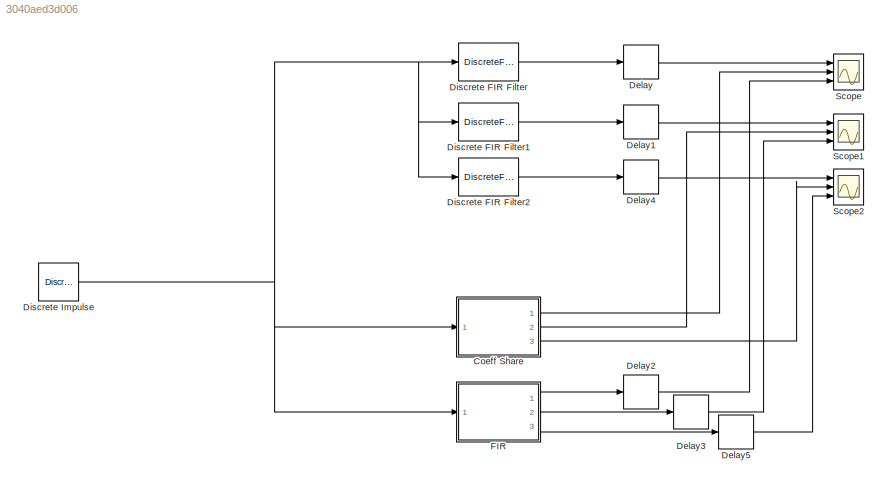
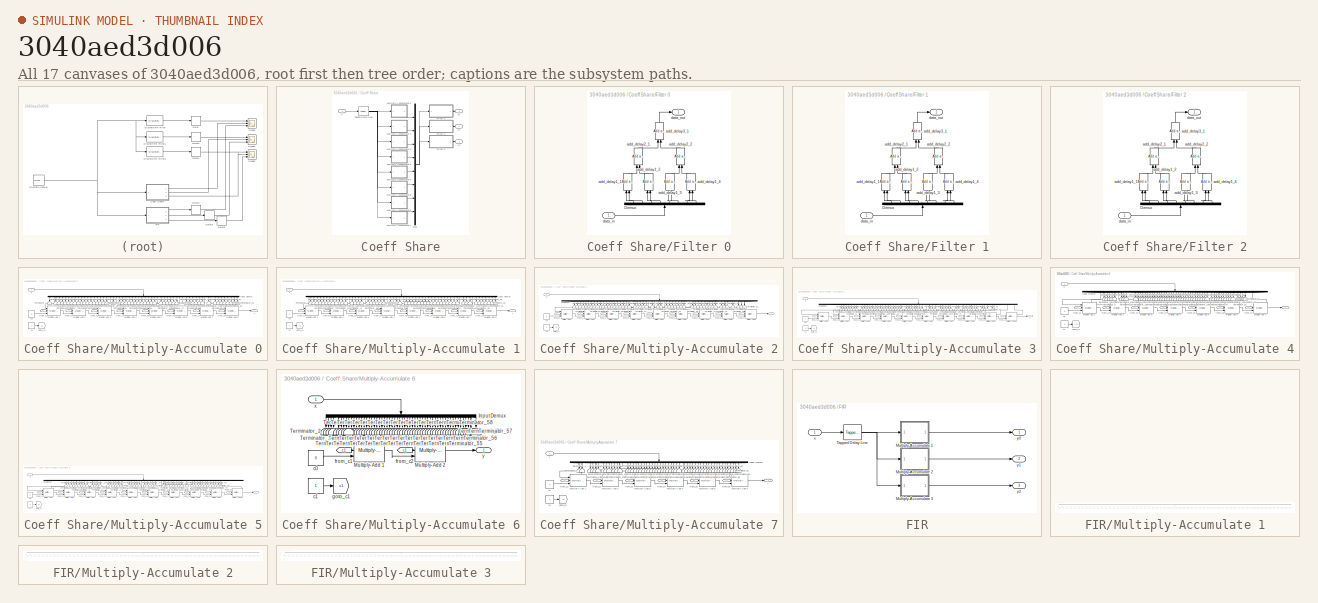
[diagram: thumbnail index - all 17 canvases of the model, root first then tree order]
MODEL slx_3040aed3d006
KIND model
CONFIG AbsTol = auto
CONFIG EnableMultiTasking = off
CONFIG FixedStep = auto
CONFIG MaxStep = auto
CONFIG MinStep = auto
CONFIG RelTol = 1e-3
CONFIG SampleTimeConstraint = Unconstrained
CONFIG Solver = FixedStepDiscrete
CONFIG SolverName = FixedStepDiscrete
CONFIG StartTime = 0.0
CONFIG StopTime = 100
BLOCK [SubSystem] Coeff Share
  Ports = [1, 3]
  RequestExecContextInheritance = off
BLOCK [SubSystem] Coeff Share/Filter 0
  Ports = [1, 1]
  RequestExecContextInheritance = off
BLOCK [Demux] Coeff Share/Filter 0/Demux
  DisplayOption = bar
  Outputs = 8
  Ports = [1, 8]
BLOCK [Reference] Coeff Share/Filter 0/add_delay1_1  REF=filter_library/Add and Delay  (lib defined in slx_7e4a8794f713)
  Ports = [2, 1]
  SourceBlock = filter_library/Add and Delay
  SourceProductName = Filter Library
BLOCK [Reference] Coeff Share/Filter 0/add_delay1_2  REF=filter_library/Add and Delay  (lib defined in slx_7e4a8794f713)
  Ports = [2, 1]
  SourceBlock = filter_library/Add and Delay
  SourceProductName = Filter Library
BLOCK [Reference] Coeff Share/Filter 0/add_delay1_3  REF=filter_library/Add and Delay  (lib defined in slx_7e4a8794f713)
  Ports = [2, 1]
  SourceBlock = filter_library/Add and Delay
  SourceProductName = Filter Library
BLOCK [Reference] Coeff Share/Filter 0/add_delay1_4  REF=filter_library/Add and Delay  (lib defined in slx_7e4a8794f713)
  Ports = [2, 1]
  SourceBlock = filter_library/Add and Delay
  SourceProductName = Filter Library
BLOCK [Reference] Coeff Share/Filter 0/add_delay2_1  REF=filter_library/Add and Delay  (lib defined in slx_7e4a8794f713)
  Ports = [2, 1]
  SourceBlock = filter_library/Add and Delay
  SourceProductName = Filter Library
BLOCK [Reference] Coeff Share/Filter 0/add_delay2_2  REF=filter_library/Add and Delay  (lib defined in slx_7e4a8794f713)
  Ports = [2, 1]
  SourceBlock = filter_library/Add and Delay
  SourceProductName = Filter Library
BLOCK [Reference] Coeff Share/Filter 0/add_delay3_1  REF=filter_library/Add and Delay  (lib defined in slx_7e4a8794f713)
  Ports = [2, 1]
  SourceBlock = filter_library/Add and Delay
  SourceProductName = Filter Library
BLOCK [Inport] Coeff Share/Filter 0/data_in
  IconDisplay = Port number
BLOCK [Outport] Coeff Share/Filter 0/data_out
  IconDisplay = Port number
BLOCK [SubSystem] Coeff Share/Filter 1
  Ports = [1, 1]
  RequestExecContextInheritance = off
BLOCK [Demux] Coeff Share/Filter 1/Demux
  DisplayOption = bar
  Outputs = 8
  Ports = [1, 8]
BLOCK [Reference] Coeff Share/Filter 1/add_delay1_1  REF=filter_library/Add and Delay  (lib defined in slx_7e4a8794f713)
  Ports = [2, 1]
  SourceBlock = filter_library/Add and Delay
  SourceProductName = Filter Library
BLOCK [Reference] Coeff Share/Filter 1/add_delay1_2  REF=filter_library/Add and Delay  (lib defined in slx_7e4a8794f713)
  Ports = [2, 1]
  SourceBlock = filter_library/Add and Delay
  SourceProductName = Filter Library
BLOCK [Reference] Coeff Share/Filter 1/add_delay1_3  REF=filter_library/Add and Delay  (lib defined in slx_7e4a8794f713)
  Ports = [2, 1]
  SourceBlock = filter_library/Add and Delay
  SourceProductName = Filter Library
BLOCK [Reference] Coeff Share/Filter 1/add_delay1_4  REF=filter_library/Add and Delay  (lib defined in slx_7e4a8794f713)
  Ports = [2, 1]
  SourceBlock = filter_library/Add and Delay
  SourceProductName = Filter Library
BLOCK [Reference] Coeff Share/Filter 1/add_delay2_1  REF=filter_library/Add and Delay  (lib defined in slx_7e4a8794f713)
  Ports = [2, 1]
  SourceBlock = filter_library/Add and Delay
  SourceProductName = Filter Library
BLOCK [Reference] Coeff Share/Filter 1/add_delay2_2  REF=filter_library/Add and Delay  (lib defined in slx_7e4a8794f713)
  Ports = [2, 1]
  SourceBlock = filter_library/Add and Delay
  SourceProductName = Filter Library
BLOCK [Reference] Coeff Share/Filter 1/add_delay3_1  REF=filter_library/Add and Delay  (lib defined in slx_7e4a8794f713)
  Ports = [2, 1]
  SourceBlock = filter_library/Add and Delay
  SourceProductName = Filter Library
BLOCK [Inport] Coeff Share/Filter 1/data_in
  IconDisplay = Port number
BLOCK [Outport] Coeff Share/Filter 1/data_out
  IconDisplay = Port number
BLOCK [SubSystem] Coeff Share/Filter 2
  Ports = [1, 1]
  RequestExecContextInheritance = off
BLOCK [Demux] Coeff Share/Filter 2/Demux
  DisplayOption = bar
  Outputs = 8
  Ports = [1, 8]
BLOCK [Reference] Coeff Share/Filter 2/add_delay1_1  REF=filter_library/Add and Delay  (lib defined in slx_7e4a8794f713)
  Ports = [2, 1]
  SourceBlock = filter_library/Add and Delay
  SourceProductName = Filter Library
BLOCK [Reference] Coeff Share/Filter 2/add_delay1_2  REF=filter_library/Add and Delay  (lib defined in slx_7e4a8794f713)
  Ports = [2, 1]
  SourceBlock = filter_library/Add and Delay
  SourceProductName = Filter Library
BLOCK [Reference] Coeff Share/Filter 2/add_delay1_3  REF=filter_library/Add and Delay  (lib defined in slx_7e4a8794f713)
  Ports = [2, 1]
  SourceBlock = filter_library/Add and Delay
  SourceProductName = Filter Library
BLOCK [Reference] Coeff Share/Filter 2/add_delay1_4  REF=filter_library/Add and Delay  (lib defined in slx_7e4a8794f713)
  Ports = [2, 1]
  SourceBlock = filter_library/Add and Delay
  SourceProductName = Filter Library
BLOCK [Reference] Coeff Share/Filter 2/add_delay2_1  REF=filter_library/Add and Delay  (lib defined in slx_7e4a8794f713)
  Ports = [2, 1]
  SourceBlock = filter_library/Add and Delay
  SourceProductName = Filter Library
BLOCK [Reference] Coeff Share/Filter 2/add_delay2_2  REF=filter_library/Add and Delay  (lib defined in slx_7e4a8794f713)
  Ports = [2, 1]
  SourceBlock = filter_library/Add and Delay
  SourceProductName = Filter Library
BLOCK [Reference] Coeff Share/Filter 2/add_delay3_1  REF=filter_library/Add and Delay  (lib defined in slx_7e4a8794f713)
  Ports = [2, 1]
  SourceBlock = filter_library/Add and Delay
  SourceProductName = Filter Library
BLOCK [Inport] Coeff Share/Filter 2/data_in
  IconDisplay = Port number
BLOCK [Outport] Coeff Share/Filter 2/data_out
  IconDisplay = Port number
BLOCK [SubSystem] Coeff Share/Multiply-Accumulate 0
  Ports = [1, 1]
  RequestExecContextInheritance = off
BLOCK [Demux] Coeff Share/Multiply-Accumulate 0/Input Demux
  DisplayOption = bar
  Outputs = 60
  Ports = [1, 60]
BLOCK [Reference] Coeff Share/Multiply-Accumulate 0/Multiply-Add 1  REF=filter_library/Multiply-Add  (lib defined in slx_7e4a8794f713)
  Ports = [3, 1]
  SourceBlock = filter_library/Multiply-Add
  SourceProductName = Filter Library
BLOCK [Reference] Coeff Share/Multiply-Accumulate 0/Multiply-Add 2  REF=filter_library/Multiply-Add  (lib defined in slx_7e4a8794f713)
  Ports = [3, 1]
  SourceBlock = filter_library/Multiply-Add
  SourceProductName = Filter Library
BLOCK [Reference] Coeff Share/Multiply-Accumulate 0/Multiply-Add 3  REF=filter_library/Multiply-Add  (lib defined in slx_7e4a8794f713)
  Ports = [3, 1]
  SourceBlock = filter_library/Multiply-Add
  SourceProductName = Filter Library
BLOCK [Reference] Coeff Share/Multiply-Accumulate 0/Multiply-Add 4  REF=filter_library/Multiply-Add  (lib defined in slx_7e4a8794f713)
  Ports = [3, 1]
  SourceBlock = filter_library/Multiply-Add
  SourceProductName = Filter Library
BLOCK [Reference] Coeff Share/Multiply-Accumulate 0/Multiply-Add 5  REF=filter_library/Multiply-Add  (lib defined in slx_7e4a8794f713)
  Ports = [3, 1]
  SourceBlock = filter_library/Multiply-Add
  SourceProductName = Filter Library
BLOCK [Reference] Coeff Share/Multiply-Accumulate 0/Multiply-Add 6  REF=filter_library/Multiply-Add  (lib defined in slx_7e4a8794f713)
  Ports = [3, 1]
  SourceBlock = filter_library/Multiply-Add
  SourceProductName = Filter Library
BLOCK [Reference] Coeff Share/Multiply-Accumulate 0/Multiply-Add 7  REF=filter_library/Multiply-Add  (lib defined in slx_7e4a8794f713)
  Ports = [3, 1]
  SourceBlock = filter_library/Multiply-Add
  SourceProductName = Filter Library
BLOCK [Reference] Coeff Share/Multiply-Accumulate 0/Multiply-Add 8  REF=filter_library/Multiply-Add  (lib defined in slx_7e4a8794f713)
  Ports = [3, 1]
  SourceBlock = filter_library/Multiply-Add
  SourceProductName = Filter Library
BLOCK [Terminator] Coeff Share/Multiply-Accumulate 0/Terminator_1
BLOCK [Terminator] Coeff Share/Multiply-Accumulate 0/Terminator_10
BLOCK [Terminator] Coeff Share/Multiply-Accumulate 0/Terminator_11
BLOCK [Terminator] Coeff Share/Multiply-Accumulate 0/Terminator_12
BLOCK [Terminator] Coeff Share/Multiply-Accumulate 0/Terminator_13
BLOCK [Terminator] Coeff Share/Multiply-Accumulate 0/Terminator_14
BLOCK [Terminator] Coeff Share/Multiply-Accumulate 0/Terminator_15
BLOCK [Terminator] Coeff Share/Multiply-Accumulate 0/Terminator_16
BLOCK [Terminator] Coeff Share/Multiply-Accumulate 0/Terminator_17
BLOCK [Terminator] Coeff Share/Multiply-Accumulate 0/Terminator_18
BLOCK [Terminator] Coeff Share/Multiply-Accumulate 0/Terminator_19
BLOCK [Terminator] Coeff Share/Multiply-Accumulate 0/Terminator_2
BLOCK [Terminator] Coeff Share/Multiply-Accumulate 0/Terminator_20
BLOCK [Terminator] Coeff Share/Multiply-Accumulate 0/Terminator_21
BLOCK [Terminator] Coeff Share/Multiply-Accumulate 0/Terminator_22
BLOCK [Terminator] Coeff Share/Multiply-Accumulate 0/Terminator_23
BLOCK [Terminator] Coeff Share/Multiply-Accumulate 0/Terminator_24
BLOCK [Terminator] Coeff Share/Multiply-Accumulate 0/Terminator_25
BLOCK [Terminator] Coeff Share/Multiply-Accumulate 0/Terminator_26
BLOCK [Terminator] Coeff Share/Multiply-Accumulate 0/Terminator_27
BLOCK [Terminator] Coeff Share/Multiply-Accumulate 0/Terminator_28
BLOCK [Terminator] Coeff Share/Multiply-Accumulate 0/Terminator_29
BLOCK [Terminator] Coeff Share/Multiply-Accumulate 0/Terminator_3
BLOCK [Terminator] Coeff Share/Multiply-Accumulate 0/Terminator_30
BLOCK [Terminator] Coeff Share/Multiply-Accumulate 0/Terminator_31
BLOCK [Terminator] Coeff Share/Multiply-Accumulate 0/Terminator_32
BLOCK [Terminator] Coeff Share/Multiply-Accumulate 0/Terminator_33
BLOCK [Terminator] Coeff Share/Multiply-Accumulate 0/Terminator_34
BLOCK [Terminator] Coeff Share/Multiply-Accumulate 0/Terminator_35
BLOCK [Terminator] Coeff Share/Multiply-Accumulate 0/Terminator_36
BLOCK [Terminator] Coeff Share/Multiply-Accumulate 0/Terminator_37
BLOCK [Terminator] Coeff Share/Multiply-Accumulate 0/Terminator_38
BLOCK [Terminator] Coeff Share/Multiply-Accumulate 0/Terminator_39
BLOCK [Terminator] Coeff Share/Multiply-Accumulate 0/Terminator_4
BLOCK [Terminator] Coeff Share/Multiply-Accumulate 0/Terminator_40
BLOCK [Terminator] Coeff Share/Multiply-Accumulate 0/Terminator_41
BLOCK [Terminator] Coeff Share/Multiply-Accumulate 0/Terminator_42
BLOCK [Terminator] Coeff Share/Multiply-Accumulate 0/Terminator_43
BLOCK [Terminator] Coeff Share/Multiply-Accumulate 0/Terminator_44
BLOCK [Terminator] Coeff Share/Multiply-Accumulate 0/Terminator_45
BLOCK [Terminator] Coeff Share/Multiply-Accumulate 0/Terminator_46
BLOCK [Terminator] Coeff Share/Multiply-Accumulate 0/Terminator_47
BLOCK [Terminator] Coeff Share/Multiply-Accumulate 0/Terminator_48
BLOCK [Terminator] Coeff Share/Multiply-Accumulate 0/Terminator_49
BLOCK [Terminator] Coeff Share/Multiply-Accumulate 0/Terminator_5
BLOCK [Terminator] Coeff Share/Multiply-Accumulate 0/Terminator_50
BLOCK [Terminator] Coeff Share/Multiply-Accumulate 0/Terminator_51
BLOCK [Terminator] Coeff Share/Multiply-Accumulate 0/Terminator_52
BLOCK [Terminator] Coeff Share/Multiply-Accumulate 0/Terminator_6
BLOCK [Terminator] Coeff Share/Multiply-Accumulate 0/Terminator_7
BLOCK [Terminator] Coeff Share/Multiply-Accumulate 0/Terminator_8
BLOCK [Terminator] Coeff Share/Multiply-Accumulate 0/Terminator_9
BLOCK [Constant] Coeff Share/Multiply-Accumulate 0/c0
  OutDataTypeStr = fixdt(1, 12, 7)
  SampleTime = 1
  Value = 0
BLOCK [Constant] Coeff Share/Multiply-Accumulate 0/c1
  OutDataTypeStr = fixdt(1, 12, 7)
  SampleTime = 1
  Value = -1
BLOCK [From] Coeff Share/Multiply-Accumulate 0/from_c1
  GotoTag = c1
BLOCK [From] Coeff Share/Multiply-Accumulate 0/from_c2
  GotoTag = c1
BLOCK [From] Coeff Share/Multiply-Accumulate 0/from_c3
  GotoTag = c1
BLOCK [From] Coeff Share/Multiply-Accumulate 0/from_c4
  GotoTag = c1
BLOCK [From] Coeff Share/Multiply-Accumulate 0/from_c5
  GotoTag = c1
BLOCK [From] Coeff Share/Multiply-Accumulate 0/from_c6
  GotoTag = c1
BLOCK [From] Coeff Share/Multiply-Accumulate 0/from_c7
  GotoTag = c1
BLOCK [From] Coeff Share/Multiply-Accumulate 0/from_c8
  GotoTag = c1
BLOCK [Goto] Coeff Share/Multiply-Accumulate 0/goto_c1
  GotoTag = c1
BLOCK [Inport] Coeff Share/Multiply-Accumulate 0/x
  IconDisplay = Port number
BLOCK [Outport] Coeff Share/Multiply-Accumulate 0/y
  IconDisplay = Port number
BLOCK [SubSystem] Coeff Share/Multiply-Accumulate 1
  Ports = [1, 1]
  RequestExecContextInheritance = off
BLOCK [Demux] Coeff Share/Multiply-Accumulate 1/Input Demux
  DisplayOption = bar
  Outputs = 60
  Ports = [1, 60]
BLOCK [Reference] Coeff Share/Multiply-Accumulate 1/Multiply-Add 1  REF=filter_library/Multiply-Add  (lib defined in slx_7e4a8794f713)
  Ports = [3, 1]
  SourceBlock = filter_library/Multiply-Add
  SourceProductName = Filter Library
BLOCK [Reference] Coeff Share/Multiply-Accumulate 1/Multiply-Add 2  REF=filter_library/Multiply-Add  (lib defined in slx_7e4a8794f713)
  Ports = [3, 1]
  SourceBlock = filter_library/Multiply-Add
  SourceProductName = Filter Library
BLOCK [Reference] Coeff Share/Multiply-Accumulate 1/Multiply-Add 3  REF=filter_library/Multiply-Add  (lib defined in slx_7e4a8794f713)
  Ports = [3, 1]
  SourceBlock = filter_library/Multiply-Add
  SourceProductName = Filter Library
BLOCK [Reference] Coeff Share/Multiply-Accumulate 1/Multiply-Add 4  REF=filter_library/Multiply-Add  (lib defined in slx_7e4a8794f713)
  Ports = [3, 1]
  SourceBlock = filter_library/Multiply-Add
  SourceProductName = Filter Library
BLOCK [Reference] Coeff Share/Multiply-Accumulate 1/Multiply-Add 5  REF=filter_library/Multiply-Add  (lib defined in slx_7e4a8794f713)
  Ports = [3, 1]
  SourceBlock = filter_library/Multiply-Add
  SourceProductName = Filter Library
BLOCK [Reference] Coeff Share/Multiply-Accumulate 1/Multiply-Add 6  REF=filter_library/Multiply-Add  (lib defined in slx_7e4a8794f713)
  Ports = [3, 1]
  SourceBlock = filter_library/Multiply-Add
  SourceProductName = Filter Library
BLOCK [Reference] Coeff Share/Multiply-Accumulate 1/Multiply-Add 7  REF=filter_library/Multiply-Add  (lib defined in slx_7e4a8794f713)
  Ports = [3, 1]
  SourceBlock = filter_library/Multiply-Add
  SourceProductName = Filter Library
BLOCK [Reference] Coeff Share/Multiply-Accumulate 1/Multiply-Add 8  REF=filter_library/Multiply-Add  (lib defined in slx_7e4a8794f713)
  Ports = [3, 1]
  SourceBlock = filter_library/Multiply-Add
  SourceProductName = Filter Library
BLOCK [Terminator] Coeff Share/Multiply-Accumulate 1/Terminator_1
BLOCK [Terminator] Coeff Share/Multiply-Accumulate 1/Terminator_10
BLOCK [Terminator] Coeff Share/Multiply-Accumulate 1/Terminator_11
BLOCK [Terminator] Coeff Share/Multiply-Accumulate 1/Terminator_12
BLOCK [Terminator] Coeff Share/Multiply-Accumulate 1/Terminator_13
BLOCK [Terminator] Coeff Share/Multiply-Accumulate 1/Terminator_14
BLOCK [Terminator] Coeff Share/Multiply-Accumulate 1/Terminator_15
BLOCK [Terminator] Coeff Share/Multiply-Accumulate 1/Terminator_16
BLOCK [Terminator] Coeff Share/Multiply-Accumulate 1/Terminator_17
BLOCK [Terminator] Coeff Share/Multiply-Accumulate 1/Terminator_18
BLOCK [Terminator] Coeff Share/Multiply-Accumulate 1/Terminator_19
BLOCK [Terminator] Coeff Share/Multiply-Accumulate 1/Terminator_2
BLOCK [Terminator] Coeff Share/Multiply-Accumulate 1/Terminator_20
BLOCK [Terminator] Coeff Share/Multiply-Accumulate 1/Terminator_21
BLOCK [Terminator] Coeff Share/Multiply-Accumulate 1/Terminator_22
BLOCK [Terminator] Coeff Share/Multiply-Accumulate 1/Terminator_23
BLOCK [Terminator] Coeff Share/Multiply-Accumulate 1/Terminator_24
BLOCK [Terminator] Coeff Share/Multiply-Accumulate 1/Terminator_25
BLOCK [Terminator] Coeff Share/Multiply-Accumulate 1/Terminator_26
BLOCK [Terminator] Coeff Share/Multiply-Accumulate 1/Terminator_27
BLOCK [Terminator] Coeff Share/Multiply-Accumulate 1/Terminator_28
BLOCK [Terminator] Coeff Share/Multiply-Accumulate 1/Terminator_29
BLOCK [Terminator] Coeff Share/Multiply-Accumulate 1/Terminator_3
BLOCK [Terminator] Coeff Share/Multiply-Accumulate 1/Terminator_30
BLOCK [Terminator] Coeff Share/Multiply-Accumulate 1/Terminator_31
BLOCK [Terminator] Coeff Share/Multiply-Accumulate 1/Terminator_32
BLOCK [Terminator] Coeff Share/Multiply-Accumulate 1/Terminator_33
BLOCK [Terminator] Coeff Share/Multiply-Accumulate 1/Terminator_34
BLOCK [Terminator] Coeff Share/Multiply-Accumulate 1/Terminator_35
BLOCK [Terminator] Coeff Share/Multiply-Accumulate 1/Terminator_36
BLOCK [Terminator] Coeff Share/Multiply-Accumulate 1/Terminator_37
BLOCK [Terminator] Coeff Share/Multiply-Accumulate 1/Terminator_38
BLOCK [Terminator] Coeff Share/Multiply-Accumulate 1/Terminator_39
BLOCK [Terminator] Coeff Share/Multiply-Accumulate 1/Terminator_4
BLOCK [Terminator] Coeff Share/Multiply-Accumulate 1/Terminator_40
BLOCK [Terminator] Coeff Share/Multiply-Accumulate 1/Terminator_41
BLOCK [Terminator] Coeff Share/Multiply-Accumulate 1/Terminator_42
BLOCK [Terminator] Coeff Share/Multiply-Accumulate 1/Terminator_43
BLOCK [Terminator] Coeff Share/Multiply-Accumulate 1/Terminator_44
BLOCK [Terminator] Coeff Share/Multiply-Accumulate 1/Terminator_45
BLOCK [Terminator] Coeff Share/Multiply-Accumulate 1/Terminator_46
BLOCK [Terminator] Coeff Share/Multiply-Accumulate 1/Terminator_47
BLOCK [Terminator] Coeff Share/Multiply-Accumulate 1/Terminator_48
BLOCK [Terminator] Coeff Share/Multiply-Accumulate 1/Terminator_49
BLOCK [Terminator] Coeff Share/Multiply-Accumulate 1/Terminator_5
BLOCK [Terminator] Coeff Share/Multiply-Accumulate 1/Terminator_50
BLOCK [Terminator] Coeff Share/Multiply-Accumulate 1/Terminator_51
BLOCK [Terminator] Coeff Share/Multiply-Accumulate 1/Terminator_52
BLOCK [Terminator] Coeff Share/Multiply-Accumulate 1/Terminator_6
BLOCK [Terminator] Coeff Share/Multiply-Accumulate 1/Terminator_7
BLOCK [Terminator] Coeff Share/Multiply-Accumulate 1/Terminator_8
BLOCK [Terminator] Coeff Share/Multiply-Accumulate 1/Terminator_9
BLOCK [Constant] Coeff Share/Multiply-Accumulate 1/c0
  OutDataTypeStr = fixdt(1, 12, 7)
  SampleTime = 1
  Value = 0
BLOCK [Constant] Coeff Share/Multiply-Accumulate 1/c1
  OutDataTypeStr = fixdt(1, 12, 7)
  SampleTime = 1
  Value = -1
BLOCK [From] Coeff Share/Multiply-Accumulate 1/from_c1
  GotoTag = c1
BLOCK [From] Coeff Share/Multiply-Accumulate 1/from_c2
  GotoTag = c1
BLOCK [From] Coeff Share/Multiply-Accumulate 1/from_c3
  GotoTag = c1
BLOCK [From] Coeff Share/Multiply-Accumulate 1/from_c4
  GotoTag = c1
BLOCK [From] Coeff Share/Multiply-Accumulate 1/from_c5
  GotoTag = c1
BLOCK [From] Coeff Share/Multiply-Accumulate 1/from_c6
  GotoTag = c1
BLOCK [From] Coeff Share/Multiply-Accumulate 1/from_c7
  GotoTag = c1
BLOCK [From] Coeff Share/Multiply-Accumulate 1/from_c8
  GotoTag = c1
BLOCK [Goto] Coeff Share/Multiply-Accumulate 1/goto_c1
  GotoTag = c1
BLOCK [Inport] Coeff Share/Multiply-Accumulate 1/x
  IconDisplay = Port number
BLOCK [Outport] Coeff Share/Multiply-Accumulate 1/y
  IconDisplay = Port number
BLOCK [SubSystem] Coeff Share/Multiply-Accumulate 2
  Ports = [1, 1]
  RequestExecContextInheritance = off
BLOCK [Demux] Coeff Share/Multiply-Accumulate 2/Input Demux
  DisplayOption = bar
  Outputs = 60
  Ports = [1, 60]
BLOCK [Reference] Coeff Share/Multiply-Accumulate 2/Multiply-Add 1  REF=filter_library/Multiply-Add  (lib defined in slx_7e4a8794f713)
  Ports = [3, 1]
  SourceBlock = filter_library/Multiply-Add
  SourceProductName = Filter Library
BLOCK [Reference] Coeff Share/Multiply-Accumulate 2/Multiply-Add 2  REF=filter_library/Multiply-Add  (lib defined in slx_7e4a8794f713)
  Ports = [3, 1]
  SourceBlock = filter_library/Multiply-Add
  SourceProductName = Filter Library
BLOCK [Reference] Coeff Share/Multiply-Accumulate 2/Multiply-Add 3  REF=filter_library/Multiply-Add  (lib defined in slx_7e4a8794f713)
  Ports = [3, 1]
  SourceBlock = filter_library/Multiply-Add
  SourceProductName = Filter Library
BLOCK [Reference] Coeff Share/Multiply-Accumulate 2/Multiply-Add 4  REF=filter_library/Multiply-Add  (lib defined in slx_7e4a8794f713)
  Ports = [3, 1]
  SourceBlock = filter_library/Multiply-Add
  SourceProductName = Filter Library
BLOCK [Reference] Coeff Share/Multiply-Accumulate 2/Multiply-Add 5  REF=filter_library/Multiply-Add  (lib defined in slx_7e4a8794f713)
  Ports = [3, 1]
  SourceBlock = filter_library/Multiply-Add
  SourceProductName = Filter Library
BLOCK [Reference] Coeff Share/Multiply-Accumulate 2/Multiply-Add 6  REF=filter_library/Multiply-Add  (lib defined in slx_7e4a8794f713)
  Ports = [3, 1]
  SourceBlock = filter_library/Multiply-Add
  SourceProductName = Filter Library
BLOCK [Reference] Coeff Share/Multiply-Accumulate 2/Multiply-Add 7  REF=filter_library/Multiply-Add  (lib defined in slx_7e4a8794f713)
  Ports = [3, 1]
  SourceBlock = filter_library/Multiply-Add
  SourceProductName = Filter Library
BLOCK [Reference] Coeff Share/Multiply-Accumulate 2/Multiply-Add 8  REF=filter_library/Multiply-Add  (lib defined in slx_7e4a8794f713)
  Ports = [3, 1]
  SourceBlock = filter_library/Multiply-Add
  SourceProductName = Filter Library
BLOCK [Reference] Coeff Share/Multiply-Accumulate 2/Multiply-Add 9  REF=filter_library/Multiply-Add  (lib defined in slx_7e4a8794f713)
  Ports = [3, 1]
  SourceBlock = filter_library/Multiply-Add
  SourceProductName = Filter Library
BLOCK [Terminator] Coeff Share/Multiply-Accumulate 2/Terminator_1
BLOCK [Terminator] Coeff Share/Multiply-Accumulate 2/Terminator_10
BLOCK [Terminator] Coeff Share/Multiply-Accumulate 2/Terminator_11
BLOCK [Terminator] Coeff Share/Multiply-Accumulate 2/Terminator_12
BLOCK [Terminator] Coeff Share/Multiply-Accumulate 2/Terminator_13
BLOCK [Terminator] Coeff Share/Multiply-Accumulate 2/Terminator_14
BLOCK [Terminator] Coeff Share/Multiply-Accumulate 2/Terminator_15
BLOCK [Terminator] Coeff Share/Multiply-Accumulate 2/Terminator_16
BLOCK [Terminator] Coeff Share/Multiply-Accumulate 2/Terminator_17
BLOCK [Terminator] Coeff Share/Multiply-Accumulate 2/Terminator_18
BLOCK [Terminator] Coeff Share/Multiply-Accumulate 2/Terminator_19
BLOCK [Terminator] Coeff Share/Multiply-Accumulate 2/Terminator_2
BLOCK [Terminator] Coeff Share/Multiply-Accumulate 2/Terminator_20
BLOCK [Terminator] Coeff Share/Multiply-Accumulate 2/Terminator_21
BLOCK [Terminator] Coeff Share/Multiply-Accumulate 2/Terminator_22
BLOCK [Terminator] Coeff Share/Multiply-Accumulate 2/Terminator_23
BLOCK [Terminator] Coeff Share/Multiply-Accumulate 2/Terminator_24
BLOCK [Terminator] Coeff Share/Multiply-Accumulate 2/Terminator_25
BLOCK [Terminator] Coeff Share/Multiply-Accumulate 2/Terminator_26
BLOCK [Terminator] Coeff Share/Multiply-Accumulate 2/Terminator_27
BLOCK [Terminator] Coeff Share/Multiply-Accumulate 2/Terminator_28
BLOCK [Terminator] Coeff Share/Multiply-Accumulate 2/Terminator_29
BLOCK [Terminator] Coeff Share/Multiply-Accumulate 2/Terminator_3
BLOCK [Terminator] Coeff Share/Multiply-Accumulate 2/Terminator_30
BLOCK [Terminator] Coeff Share/Multiply-Accumulate 2/Terminator_31
BLOCK [Terminator] Coeff Share/Multiply-Accumulate 2/Terminator_32
BLOCK [Terminator] Coeff Share/Multiply-Accumulate 2/Terminator_33
BLOCK [Terminator] Coeff Share/Multiply-Accumulate 2/Terminator_34
BLOCK [Terminator] Coeff Share/Multiply-Accumulate 2/Terminator_35
BLOCK [Terminator] Coeff Share/Multiply-Accumulate 2/Terminator_36
BLOCK [Terminator] Coeff Share/Multiply-Accumulate 2/Terminator_37
BLOCK [Terminator] Coeff Share/Multiply-Accumulate 2/Terminator_38
BLOCK [Terminator] Coeff Share/Multiply-Accumulate 2/Terminator_39
BLOCK [Terminator] Coeff Share/Multiply-Accumulate 2/Terminator_4
BLOCK [Terminator] Coeff Share/Multiply-Accumulate 2/Terminator_40
BLOCK [Terminator] Coeff Share/Multiply-Accumulate 2/Terminator_41
BLOCK [Terminator] Coeff Share/Multiply-Accumulate 2/Terminator_42
BLOCK [Terminator] Coeff Share/Multiply-Accumulate 2/Terminator_43
BLOCK [Terminator] Coeff Share/Multiply-Accumulate 2/Terminator_44
BLOCK [Terminator] Coeff Share/Multiply-Accumulate 2/Terminator_45
BLOCK [Terminator] Coeff Share/Multiply-Accumulate 2/Terminator_46
BLOCK [Terminator] Coeff Share/Multiply-Accumulate 2/Terminator_47
BLOCK [Terminator] Coeff Share/Multiply-Accumulate 2/Terminator_48
BLOCK [Terminator] Coeff Share/Multiply-Accumulate 2/Terminator_49
BLOCK [Terminator] Coeff Share/Multiply-Accumulate 2/Terminator_5
BLOCK [Terminator] Coeff Share/Multiply-Accumulate 2/Terminator_50
BLOCK [Terminator] Coeff Share/Multiply-Accumulate 2/Terminator_51
BLOCK [Terminator] Coeff Share/Multiply-Accumulate 2/Terminator_6
BLOCK [Terminator] Coeff Share/Multiply-Accumulate 2/Terminator_7
BLOCK [Terminator] Coeff Share/Multiply-Accumulate 2/Terminator_8
BLOCK [Terminator] Coeff Share/Multiply-Accumulate 2/Terminator_9
BLOCK [Constant] Coeff Share/Multiply-Accumulate 2/c0
  OutDataTypeStr = fixdt(1, 12, 7)
  SampleTime = 1
  Value = 0
BLOCK [Constant] Coeff Share/Multiply-Accumulate 2/c1
  OutDataTypeStr = fixdt(1, 12, 7)
  SampleTime = 1
  Value = -1
BLOCK [From] Coeff Share/Multiply-Accumulate 2/from_c1
  GotoTag = c1
BLOCK [From] Coeff Share/Multiply-Accumulate 2/from_c2
  GotoTag = c1
BLOCK [From] Coeff Share/Multiply-Accumulate 2/from_c3
  GotoTag = c1
BLOCK [From] Coeff Share/Multiply-Accumulate 2/from_c4
  GotoTag = c1
BLOCK [From] Coeff Share/Multiply-Accumulate 2/from_c5
  GotoTag = c1
BLOCK [From] Coeff Share/Multiply-Accumulate 2/from_c6
  GotoTag = c1
BLOCK [From] Coeff Share/Multiply-Accumulate 2/from_c7
  GotoTag = c1
BLOCK [From] Coeff Share/Multiply-Accumulate 2/from_c8
  GotoTag = c1
BLOCK [From] Coeff Share/Multiply-Accumulate 2/from_c9
  GotoTag = c1
BLOCK [Goto] Coeff Share/Multiply-Accumulate 2/goto_c1
  GotoTag = c1
BLOCK [Inport] Coeff Share/Multiply-Accumulate 2/x
  IconDisplay = Port number
BLOCK [Outport] Coeff Share/Multiply-Accumulate 2/y
  IconDisplay = Port number
BLOCK [SubSystem] Coeff Share/Multiply-Accumulate 3
  Ports = [1, 1]
  RequestExecContextInheritance = off
BLOCK [Demux] Coeff Share/Multiply-Accumulate 3/Input Demux
  DisplayOption = bar
  Outputs = 60
  Ports = [1, 60]
BLOCK [Reference] Coeff Share/Multiply-Accumulate 3/Multiply-Add 1  REF=filter_library/Multiply-Add  (lib defined in slx_7e4a8794f713)
  Ports = [3, 1]
  SourceBlock = filter_library/Multiply-Add
  SourceProductName = Filter Library
BLOCK [Reference] Coeff Share/Multiply-Accumulate 3/Multiply-Add 10  REF=filter_library/Multiply-Add  (lib defined in slx_7e4a8794f713)
  Ports = [3, 1]
  SourceBlock = filter_library/Multiply-Add
  SourceProductName = Filter Library
BLOCK [Reference] Coeff Share/Multiply-Accumulate 3/Multiply-Add 2  REF=filter_library/Multiply-Add  (lib defined in slx_7e4a8794f713)
  Ports = [3, 1]
  SourceBlock = filter_library/Multiply-Add
  SourceProductName = Filter Library
BLOCK [Reference] Coeff Share/Multiply-Accumulate 3/Multiply-Add 3  REF=filter_library/Multiply-Add  (lib defined in slx_7e4a8794f713)
  Ports = [3, 1]
  SourceBlock = filter_library/Multiply-Add
  SourceProductName = Filter Library
BLOCK [Reference] Coeff Share/Multiply-Accumulate 3/Multiply-Add 4  REF=filter_library/Multiply-Add  (lib defined in slx_7e4a8794f713)
  Ports = [3, 1]
  SourceBlock = filter_library/Multiply-Add
  SourceProductName = Filter Library
BLOCK [Reference] Coeff Share/Multiply-Accumulate 3/Multiply-Add 5  REF=filter_library/Multiply-Add  (lib defined in slx_7e4a8794f713)
  Ports = [3, 1]
  SourceBlock = filter_library/Multiply-Add
  SourceProductName = Filter Library
BLOCK [Reference] Coeff Share/Multiply-Accumulate 3/Multiply-Add 6  REF=filter_library/Multiply-Add  (lib defined in slx_7e4a8794f713)
  Ports = [3, 1]
  SourceBlock = filter_library/Multiply-Add
  SourceProductName = Filter Library
BLOCK [Reference] Coeff Share/Multiply-Accumulate 3/Multiply-Add 7  REF=filter_library/Multiply-Add  (lib defined in slx_7e4a8794f713)
  Ports = [3, 1]
  SourceBlock = filter_library/Multiply-Add
  SourceProductName = Filter Library
BLOCK [Reference] Coeff Share/Multiply-Accumulate 3/Multiply-Add 8  REF=filter_library/Multiply-Add  (lib defined in slx_7e4a8794f713)
  Ports = [3, 1]
  SourceBlock = filter_library/Multiply-Add
  SourceProductName = Filter Library
BLOCK [Reference] Coeff Share/Multiply-Accumulate 3/Multiply-Add 9  REF=filter_library/Multiply-Add  (lib defined in slx_7e4a8794f713)
  Ports = [3, 1]
  SourceBlock = filter_library/Multiply-Add
  SourceProductName = Filter Library
BLOCK [Terminator] Coeff Share/Multiply-Accumulate 3/Terminator_1
BLOCK [Terminator] Coeff Share/Multiply-Accumulate 3/Terminator_10
BLOCK [Terminator] Coeff Share/Multiply-Accumulate 3/Terminator_11
BLOCK [Terminator] Coeff Share/Multiply-Accumulate 3/Terminator_12
BLOCK [Terminator] Coeff Share/Multiply-Accumulate 3/Terminator_13
BLOCK [Terminator] Coeff Share/Multiply-Accumulate 3/Terminator_14
BLOCK [Terminator] Coeff Share/Multiply-Accumulate 3/Terminator_15
BLOCK [Terminator] Coeff Share/Multiply-Accumulate 3/Terminator_16
BLOCK [Terminator] Coeff Share/Multiply-Accumulate 3/Terminator_17
BLOCK [Terminator] Coeff Share/Multiply-Accumulate 3/Terminator_18
BLOCK [Terminator] Coeff Share/Multiply-Accumulate 3/Terminator_19
BLOCK [Terminator] Coeff Share/Multiply-Accumulate 3/Terminator_2
BLOCK [Terminator] Coeff Share/Multiply-Accumulate 3/Terminator_20
BLOCK [Terminator] Coeff Share/Multiply-Accumulate 3/Terminator_21
BLOCK [Terminator] Coeff Share/Multiply-Accumulate 3/Terminator_22
BLOCK [Terminator] Coeff Share/Multiply-Accumulate 3/Terminator_23
BLOCK [Terminator] Coeff Share/Multiply-Accumulate 3/Terminator_24
BLOCK [Terminator] Coeff Share/Multiply-Accumulate 3/Terminator_25
BLOCK [Terminator] Coeff Share/Multiply-Accumulate 3/Terminator_26
BLOCK [Terminator] Coeff Share/Multiply-Accumulate 3/Terminator_27
BLOCK [Terminator] Coeff Share/Multiply-Accumulate 3/Terminator_28
BLOCK [Terminator] Coeff Share/Multiply-Accumulate 3/Terminator_29
BLOCK [Terminator] Coeff Share/Multiply-Accumulate 3/Terminator_3
BLOCK [Terminator] Coeff Share/Multiply-Accumulate 3/Terminator_30
BLOCK [Terminator] Coeff Share/Multiply-Accumulate 3/Terminator_31
BLOCK [Terminator] Coeff Share/Multiply-Accumulate 3/Terminator_32
BLOCK [Terminator] Coeff Share/Multiply-Accumulate 3/Terminator_33
BLOCK [Terminator] Coeff Share/Multiply-Accumulate 3/Terminator_34
BLOCK [Terminator] Coeff Share/Multiply-Accumulate 3/Terminator_35
BLOCK [Terminator] Coeff Share/Multiply-Accumulate 3/Terminator_36
BLOCK [Terminator] Coeff Share/Multiply-Accumulate 3/Terminator_37
BLOCK [Terminator] Coeff Share/Multiply-Accumulate 3/Terminator_38
BLOCK [Terminator] Coeff Share/Multiply-Accumulate 3/Terminator_39
BLOCK [Terminator] Coeff Share/Multiply-Accumulate 3/Terminator_4
BLOCK [Terminator] Coeff Share/Multiply-Accumulate 3/Terminator_40
BLOCK [Terminator] Coeff Share/Multiply-Accumulate 3/Terminator_41
BLOCK [Terminator] Coeff Share/Multiply-Accumulate 3/Terminator_42
BLOCK [Terminator] Coeff Share/Multiply-Accumulate 3/Terminator_43
BLOCK [Terminator] Coeff Share/Multiply-Accumulate 3/Terminator_44
BLOCK [Terminator] Coeff Share/Multiply-Accumulate 3/Terminator_45
BLOCK [Terminator] Coeff Share/Multiply-Accumulate 3/Terminator_46
BLOCK [Terminator] Coeff Share/Multiply-Accumulate 3/Terminator_47
BLOCK [Terminator] Coeff Share/Multiply-Accumulate 3/Terminator_48
BLOCK [Terminator] Coeff Share/Multiply-Accumulate 3/Terminator_49
BLOCK [Terminator] Coeff Share/Multiply-Accumulate 3/Terminator_5
BLOCK [Terminator] Coeff Share/Multiply-Accumulate 3/Terminator_50
BLOCK [Terminator] Coeff Share/Multiply-Accumulate 3/Terminator_6
BLOCK [Terminator] Coeff Share/Multiply-Accumulate 3/Terminator_7
BLOCK [Terminator] Coeff Share/Multiply-Accumulate 3/Terminator_8
BLOCK [Terminator] Coeff Share/Multiply-Accumulate 3/Terminator_9
BLOCK [Constant] Coeff Share/Multiply-Accumulate 3/c0
  OutDataTypeStr = fixdt(1, 12, 7)
  SampleTime = 1
  Value = 0
BLOCK [Constant] Coeff Share/Multiply-Accumulate 3/c1
  OutDataTypeStr = fixdt(1, 12, 7)
  SampleTime = 1
  Value = -1
BLOCK [From] Coeff Share/Multiply-Accumulate 3/from_c1
  GotoTag = c1
BLOCK [From] Coeff Share/Multiply-Accumulate 3/from_c10
  GotoTag = c1
BLOCK [From] Coeff Share/Multiply-Accumulate 3/from_c2
  GotoTag = c1
BLOCK [From] Coeff Share/Multiply-Accumulate 3/from_c3
  GotoTag = c1
BLOCK [From] Coeff Share/Multiply-Accumulate 3/from_c4
  GotoTag = c1
BLOCK [From] Coeff Share/Multiply-Accumulate 3/from_c5
  GotoTag = c1
BLOCK [From] Coeff Share/Multiply-Accumulate 3/from_c6
  GotoTag = c1
BLOCK [From] Coeff Share/Multiply-Accumulate 3/from_c7
  GotoTag = c1
BLOCK [From] Coeff Share/Multiply-Accumulate 3/from_c8
  GotoTag = c1
BLOCK [From] Coeff Share/Multiply-Accumulate 3/from_c9
  GotoTag = c1
BLOCK [Goto] Coeff Share/Multiply-Accumulate 3/goto_c1
  GotoTag = c1
BLOCK [Inport] Coeff Share/Multiply-Accumulate 3/x
  IconDisplay = Port number
BLOCK [Outport] Coeff Share/Multiply-Accumulate 3/y
  IconDisplay = Port number
BLOCK [SubSystem] Coeff Share/Multiply-Accumulate 4
  Ports = [1, 1]
  RequestExecContextInheritance = off
BLOCK [Demux] Coeff Share/Multiply-Accumulate 4/Input Demux
  DisplayOption = bar
  Outputs = 60
  Ports = [1, 60]
BLOCK [Reference] Coeff Share/Multiply-Accumulate 4/Multiply-Add 1  REF=filter_library/Multiply-Add  (lib defined in slx_7e4a8794f713)
  Ports = [3, 1]
  SourceBlock = filter_library/Multiply-Add
  SourceProductName = Filter Library
BLOCK [Reference] Coeff Share/Multiply-Accumulate 4/Multiply-Add 2  REF=filter_library/Multiply-Add  (lib defined in slx_7e4a8794f713)
  Ports = [3, 1]
  SourceBlock = filter_library/Multiply-Add
  SourceProductName = Filter Library
BLOCK [Reference] Coeff Share/Multiply-Accumulate 4/Multiply-Add 3  REF=filter_library/Multiply-Add  (lib defined in slx_7e4a8794f713)
  Ports = [3, 1]
  SourceBlock = filter_library/Multiply-Add
  SourceProductName = Filter Library
BLOCK [Reference] Coeff Share/Multiply-Accumulate 4/Multiply-Add 4  REF=filter_library/Multiply-Add  (lib defined in slx_7e4a8794f713)
  Ports = [3, 1]
  SourceBlock = filter_library/Multiply-Add
  SourceProductName = Filter Library
BLOCK [Reference] Coeff Share/Multiply-Accumulate 4/Multiply-Add 5  REF=filter_library/Multiply-Add  (lib defined in slx_7e4a8794f713)
  Ports = [3, 1]
  SourceBlock = filter_library/Multiply-Add
  SourceProductName = Filter Library
BLOCK [Reference] Coeff Share/Multiply-Accumulate 4/Multiply-Add 6  REF=filter_library/Multiply-Add  (lib defined in slx_7e4a8794f713)
  Ports = [3, 1]
  SourceBlock = filter_library/Multiply-Add
  SourceProductName = Filter Library
BLOCK [Reference] Coeff Share/Multiply-Accumulate 4/Multiply-Add 7  REF=filter_library/Multiply-Add  (lib defined in slx_7e4a8794f713)
  Ports = [3, 1]
  SourceBlock = filter_library/Multiply-Add
  SourceProductName = Filter Library
BLOCK [Terminator] Coeff Share/Multiply-Accumulate 4/Terminator_1
BLOCK [Terminator] Coeff Share/Multiply-Accumulate 4/Terminator_10
BLOCK [Terminator] Coeff Share/Multiply-Accumulate 4/Terminator_11
BLOCK [Terminator] Coeff Share/Multiply-Accumulate 4/Terminator_12
BLOCK [Terminator] Coeff Share/Multiply-Accumulate 4/Terminator_13
BLOCK [Terminator] Coeff Share/Multiply-Accumulate 4/Terminator_14
BLOCK [Terminator] Coeff Share/Multiply-Accumulate 4/Terminator_15
BLOCK [Terminator] Coeff Share/Multiply-Accumulate 4/Terminator_16
BLOCK [Terminator] Coeff Share/Multiply-Accumulate 4/Terminator_17
BLOCK [Terminator] Coeff Share/Multiply-Accumulate 4/Terminator_18
BLOCK [Terminator] Coeff Share/Multiply-Accumulate 4/Terminator_19
BLOCK [Terminator] Coeff Share/Multiply-Accumulate 4/Terminator_2
BLOCK [Terminator] Coeff Share/Multiply-Accumulate 4/Terminator_20
BLOCK [Terminator] Coeff Share/Multiply-Accumulate 4/Terminator_21
BLOCK [Terminator] Coeff Share/Multiply-Accumulate 4/Terminator_22
BLOCK [Terminator] Coeff Share/Multiply-Accumulate 4/Terminator_23
BLOCK [Terminator] Coeff Share/Multiply-Accumulate 4/Terminator_24
BLOCK [Terminator] Coeff Share/Multiply-Accumulate 4/Terminator_25
BLOCK [Terminator] Coeff Share/Multiply-Accumulate 4/Terminator_26
BLOCK [Terminator] Coeff Share/Multiply-Accumulate 4/Terminator_27
BLOCK [Terminator] Coeff Share/Multiply-Accumulate 4/Terminator_28
BLOCK [Terminator] Coeff Share/Multiply-Accumulate 4/Terminator_29
BLOCK [Terminator] Coeff Share/Multiply-Accumulate 4/Terminator_3
BLOCK [Terminator] Coeff Share/Multiply-Accumulate 4/Terminator_30
BLOCK [Terminator] Coeff Share/Multiply-Accumulate 4/Terminator_31
BLOCK [Terminator] Coeff Share/Multiply-Accumulate 4/Terminator_32
BLOCK [Terminator] Coeff Share/Multiply-Accumulate 4/Terminator_33
BLOCK [Terminator] Coeff Share/Multiply-Accumulate 4/Terminator_34
BLOCK [Terminator] Coeff Share/Multiply-Accumulate 4/Terminator_35
BLOCK [Terminator] Coeff Share/Multiply-Accumulate 4/Terminator_36
BLOCK [Terminator] Coeff Share/Multiply-Accumulate 4/Terminator_37
BLOCK [Terminator] Coeff Share/Multiply-Accumulate 4/Terminator_38
BLOCK [Terminator] Coeff Share/Multiply-Accumulate 4/Terminator_39
BLOCK [Terminator] Coeff Share/Multiply-Accumulate 4/Terminator_4
BLOCK [Terminator] Coeff Share/Multiply-Accumulate 4/Terminator_40
BLOCK [Terminator] Coeff Share/Multiply-Accumulate 4/Terminator_41
BLOCK [Terminator] Coeff Share/Multiply-Accumulate 4/Terminator_42
BLOCK [Terminator] Coeff Share/Multiply-Accumulate 4/Terminator_43
BLOCK [Terminator] Coeff Share/Multiply-Accumulate 4/Terminator_44
BLOCK [Terminator] Coeff Share/Multiply-Accumulate 4/Terminator_45
BLOCK [Terminator] Coeff Share/Multiply-Accumulate 4/Terminator_46
BLOCK [Terminator] Coeff Share/Multiply-Accumulate 4/Terminator_47
BLOCK [Terminator] Coeff Share/Multiply-Accumulate 4/Terminator_48
BLOCK [Terminator] Coeff Share/Multiply-Accumulate 4/Terminator_49
BLOCK [Terminator] Coeff Share/Multiply-Accumulate 4/Terminator_5
BLOCK [Terminator] Coeff Share/Multiply-Accumulate 4/Terminator_50
BLOCK [Terminator] Coeff Share/Multiply-Accumulate 4/Terminator_51
BLOCK [Terminator] Coeff Share/Multiply-Accumulate 4/Terminator_52
BLOCK [Terminator] Coeff Share/Multiply-Accumulate 4/Terminator_53
BLOCK [Terminator] Coeff Share/Multiply-Accumulate 4/Terminator_6
BLOCK [Terminator] Coeff Share/Multiply-Accumulate 4/Terminator_7
BLOCK [Terminator] Coeff Share/Multiply-Accumulate 4/Terminator_8
BLOCK [Terminator] Coeff Share/Multiply-Accumulate 4/Terminator_9
BLOCK [Constant] Coeff Share/Multiply-Accumulate 4/c0
  OutDataTypeStr = fixdt(1, 12, 7)
  SampleTime = 1
  Value = 0
BLOCK [Constant] Coeff Share/Multiply-Accumulate 4/c1
  OutDataTypeStr = fixdt(1, 12, 7)
  SampleTime = 1
BLOCK [From] Coeff Share/Multiply-Accumulate 4/from_c1
  GotoTag = c1
BLOCK [From] Coeff Share/Multiply-Accumulate 4/from_c2
  GotoTag = c1
BLOCK [From] Coeff Share/Multiply-Accumulate 4/from_c3
  GotoTag = c1
BLOCK [From] Coeff Share/Multiply-Accumulate 4/from_c4
  GotoTag = c1
BLOCK [From] Coeff Share/Multiply-Accumulate 4/from_c5
  GotoTag = c1
BLOCK [From] Coeff Share/Multiply-Accumulate 4/from_c6
  GotoTag = c1
BLOCK [From] Coeff Share/Multiply-Accumulate 4/from_c7
  GotoTag = c1
BLOCK [Goto] Coeff Share/Multiply-Accumulate 4/goto_c1
  GotoTag = c1
BLOCK [Inport] Coeff Share/Multiply-Accumulate 4/x
  IconDisplay = Port number
BLOCK [Outport] Coeff Share/Multiply-Accumulate 4/y
  IconDisplay = Port number
BLOCK [SubSystem] Coeff Share/Multiply-Accumulate 5
  Ports = [1, 1]
  RequestExecContextInheritance = off
BLOCK [Demux] Coeff Share/Multiply-Accumulate 5/Input Demux
  DisplayOption = bar
  Outputs = 60
  Ports = [1, 60]
BLOCK [Reference] Coeff Share/Multiply-Accumulate 5/Multiply-Add 1  REF=filter_library/Multiply-Add  (lib defined in slx_7e4a8794f713)
  Ports = [3, 1]
  SourceBlock = filter_library/Multiply-Add
  SourceProductName = Filter Library
BLOCK [Reference] Coeff Share/Multiply-Accumulate 5/Multiply-Add 10  REF=filter_library/Multiply-Add  (lib defined in slx_7e4a8794f713)
  Ports = [3, 1]
  SourceBlock = filter_library/Multiply-Add
  SourceProductName = Filter Library
BLOCK [Reference] Coeff Share/Multiply-Accumulate 5/Multiply-Add 2  REF=filter_library/Multiply-Add  (lib defined in slx_7e4a8794f713)
  Ports = [3, 1]
  SourceBlock = filter_library/Multiply-Add
  SourceProductName = Filter Library
BLOCK [Reference] Coeff Share/Multiply-Accumulate 5/Multiply-Add 3  REF=filter_library/Multiply-Add  (lib defined in slx_7e4a8794f713)
  Ports = [3, 1]
  SourceBlock = filter_library/Multiply-Add
  SourceProductName = Filter Library
BLOCK [Reference] Coeff Share/Multiply-Accumulate 5/Multiply-Add 4  REF=filter_library/Multiply-Add  (lib defined in slx_7e4a8794f713)
  Ports = [3, 1]
  SourceBlock = filter_library/Multiply-Add
  SourceProductName = Filter Library
BLOCK [Reference] Coeff Share/Multiply-Accumulate 5/Multiply-Add 5  REF=filter_library/Multiply-Add  (lib defined in slx_7e4a8794f713)
  Ports = [3, 1]
  SourceBlock = filter_library/Multiply-Add
  SourceProductName = Filter Library
BLOCK [Reference] Coeff Share/Multiply-Accumulate 5/Multiply-Add 6  REF=filter_library/Multiply-Add  (lib defined in slx_7e4a8794f713)
  Ports = [3, 1]
  SourceBlock = filter_library/Multiply-Add
  SourceProductName = Filter Library
BLOCK [Reference] Coeff Share/Multiply-Accumulate 5/Multiply-Add 7  REF=filter_library/Multiply-Add  (lib defined in slx_7e4a8794f713)
  Ports = [3, 1]
  SourceBlock = filter_library/Multiply-Add
  SourceProductName = Filter Library
BLOCK [Reference] Coeff Share/Multiply-Accumulate 5/Multiply-Add 8  REF=filter_library/Multiply-Add  (lib defined in slx_7e4a8794f713)
  Ports = [3, 1]
  SourceBlock = filter_library/Multiply-Add
  SourceProductName = Filter Library
BLOCK [Reference] Coeff Share/Multiply-Accumulate 5/Multiply-Add 9  REF=filter_library/Multiply-Add  (lib defined in slx_7e4a8794f713)
  Ports = [3, 1]
  SourceBlock = filter_library/Multiply-Add
  SourceProductName = Filter Library
BLOCK [Terminator] Coeff Share/Multiply-Accumulate 5/Terminator_1
BLOCK [Terminator] Coeff Share/Multiply-Accumulate 5/Terminator_10
BLOCK [Terminator] Coeff Share/Multiply-Accumulate 5/Terminator_11
BLOCK [Terminator] Coeff Share/Multiply-Accumulate 5/Terminator_12
BLOCK [Terminator] Coeff Share/Multiply-Accumulate 5/Terminator_13
BLOCK [Terminator] Coeff Share/Multiply-Accumulate 5/Terminator_14
BLOCK [Terminator] Coeff Share/Multiply-Accumulate 5/Terminator_15
BLOCK [Terminator] Coeff Share/Multiply-Accumulate 5/Terminator_16
BLOCK [Terminator] Coeff Share/Multiply-Accumulate 5/Terminator_17
BLOCK [Terminator] Coeff Share/Multiply-Accumulate 5/Terminator_18
BLOCK [Terminator] Coeff Share/Multiply-Accumulate 5/Terminator_19
BLOCK [Terminator] Coeff Share/Multiply-Accumulate 5/Terminator_2
BLOCK [Terminator] Coeff Share/Multiply-Accumulate 5/Terminator_20
BLOCK [Terminator] Coeff Share/Multiply-Accumulate 5/Terminator_21
BLOCK [Terminator] Coeff Share/Multiply-Accumulate 5/Terminator_22
BLOCK [Terminator] Coeff Share/Multiply-Accumulate 5/Terminator_23
BLOCK [Terminator] Coeff Share/Multiply-Accumulate 5/Terminator_24
BLOCK [Terminator] Coeff Share/Multiply-Accumulate 5/Terminator_25
BLOCK [Terminator] Coeff Share/Multiply-Accumulate 5/Terminator_26
BLOCK [Terminator] Coeff Share/Multiply-Accumulate 5/Terminator_27
BLOCK [Terminator] Coeff Share/Multiply-Accumulate 5/Terminator_28
BLOCK [Terminator] Coeff Share/Multiply-Accumulate 5/Terminator_29
BLOCK [Terminator] Coeff Share/Multiply-Accumulate 5/Terminator_3
BLOCK [Terminator] Coeff Share/Multiply-Accumulate 5/Terminator_30
BLOCK [Terminator] Coeff Share/Multiply-Accumulate 5/Terminator_31
BLOCK [Terminator] Coeff Share/Multiply-Accumulate 5/Terminator_32
BLOCK [Terminator] Coeff Share/Multiply-Accumulate 5/Terminator_33
BLOCK [Terminator] Coeff Share/Multiply-Accumulate 5/Terminator_34
BLOCK [Terminator] Coeff Share/Multiply-Accumulate 5/Terminator_35
BLOCK [Terminator] Coeff Share/Multiply-Accumulate 5/Terminator_36
BLOCK [Terminator] Coeff Share/Multiply-Accumulate 5/Terminator_37
BLOCK [Terminator] Coeff Share/Multiply-Accumulate 5/Terminator_38
BLOCK [Terminator] Coeff Share/Multiply-Accumulate 5/Terminator_39
BLOCK [Terminator] Coeff Share/Multiply-Accumulate 5/Terminator_4
BLOCK [Terminator] Coeff Share/Multiply-Accumulate 5/Terminator_40
BLOCK [Terminator] Coeff Share/Multiply-Accumulate 5/Terminator_41
BLOCK [Terminator] Coeff Share/Multiply-Accumulate 5/Terminator_42
BLOCK [Terminator] Coeff Share/Multiply-Accumulate 5/Terminator_43
BLOCK [Terminator] Coeff Share/Multiply-Accumulate 5/Terminator_44
BLOCK [Terminator] Coeff Share/Multiply-Accumulate 5/Terminator_45
BLOCK [Terminator] Coeff Share/Multiply-Accumulate 5/Terminator_46
BLOCK [Terminator] Coeff Share/Multiply-Accumulate 5/Terminator_47
BLOCK [Terminator] Coeff Share/Multiply-Accumulate 5/Terminator_48
BLOCK [Terminator] Coeff Share/Multiply-Accumulate 5/Terminator_49
BLOCK [Terminator] Coeff Share/Multiply-Accumulate 5/Terminator_5
BLOCK [Terminator] Coeff Share/Multiply-Accumulate 5/Terminator_50
BLOCK [Terminator] Coeff Share/Multiply-Accumulate 5/Terminator_6
BLOCK [Terminator] Coeff Share/Multiply-Accumulate 5/Terminator_7
BLOCK [Terminator] Coeff Share/Multiply-Accumulate 5/Terminator_8
BLOCK [Terminator] Coeff Share/Multiply-Accumulate 5/Terminator_9
BLOCK [Constant] Coeff Share/Multiply-Accumulate 5/c0
  OutDataTypeStr = fixdt(1, 12, 7)
  SampleTime = 1
  Value = 0
BLOCK [Constant] Coeff Share/Multiply-Accumulate 5/c1
  OutDataTypeStr = fixdt(1, 12, 7)
  SampleTime = 1
BLOCK [From] Coeff Share/Multiply-Accumulate 5/from_c1
  GotoTag = c1
BLOCK [From] Coeff Share/Multiply-Accumulate 5/from_c10
  GotoTag = c1
BLOCK [From] Coeff Share/Multiply-Accumulate 5/from_c2
  GotoTag = c1
BLOCK [From] Coeff Share/Multiply-Accumulate 5/from_c3
  GotoTag = c1
BLOCK [From] Coeff Share/Multiply-Accumulate 5/from_c4
  GotoTag = c1
BLOCK [From] Coeff Share/Multiply-Accumulate 5/from_c5
  GotoTag = c1
BLOCK [From] Coeff Share/Multiply-Accumulate 5/from_c6
  GotoTag = c1
BLOCK [From] Coeff Share/Multiply-Accumulate 5/from_c7
  GotoTag = c1
BLOCK [From] Coeff Share/Multiply-Accumulate 5/from_c8
  GotoTag = c1
BLOCK [From] Coeff Share/Multiply-Accumulate 5/from_c9
  GotoTag = c1
BLOCK [Goto] Coeff Share/Multiply-Accumulate 5/goto_c1
  GotoTag = c1
BLOCK [Inport] Coeff Share/Multiply-Accumulate 5/x
  IconDisplay = Port number
BLOCK [Outport] Coeff Share/Multiply-Accumulate 5/y
  IconDisplay = Port number
BLOCK [SubSystem] Coeff Share/Multiply-Accumulate 6
  Ports = [1, 1]
  RequestExecContextInheritance = off
BLOCK [Demux] Coeff Share/Multiply-Accumulate 6/Input Demux
  DisplayOption = bar
  Outputs = 60
  Ports = [1, 60]
BLOCK [Reference] Coeff Share/Multiply-Accumulate 6/Multiply-Add 1  REF=filter_library/Multiply-Add  (lib defined in slx_7e4a8794f713)
  Ports = [3, 1]
  SourceBlock = filter_library/Multiply-Add
  SourceProductName = Filter Library
BLOCK [Reference] Coeff Share/Multiply-Accumulate 6/Multiply-Add 2  REF=filter_library/Multiply-Add  (lib defined in slx_7e4a8794f713)
  Ports = [3, 1]
  SourceBlock = filter_library/Multiply-Add
  SourceProductName = Filter Library
BLOCK [Terminator] Coeff Share/Multiply-Accumulate 6/Terminator_1
BLOCK [Terminator] Coeff Share/Multiply-Accumulate 6/Terminator_10
BLOCK [Terminator] Coeff Share/Multiply-Accumulate 6/Terminator_11
BLOCK [Terminator] Coeff Share/Multiply-Accumulate 6/Terminator_12
BLOCK [Terminator] Coeff Share/Multiply-Accumulate 6/Terminator_13
BLOCK [Terminator] Coeff Share/Multiply-Accumulate 6/Terminator_14
BLOCK [Terminator] Coeff Share/Multiply-Accumulate 6/Terminator_15
BLOCK [Terminator] Coeff Share/Multiply-Accumulate 6/Terminator_16
BLOCK [Terminator] Coeff Share/Multiply-Accumulate 6/Terminator_17
BLOCK [Terminator] Coeff Share/Multiply-Accumulate 6/Terminator_18
BLOCK [Terminator] Coeff Share/Multiply-Accumulate 6/Terminator_19
BLOCK [Terminator] Coeff Share/Multiply-Accumulate 6/Terminator_2
BLOCK [Terminator] Coeff Share/Multiply-Accumulate 6/Terminator_20
BLOCK [Terminator] Coeff Share/Multiply-Accumulate 6/Terminator_21
BLOCK [Terminator] Coeff Share/Multiply-Accumulate 6/Terminator_22
BLOCK [Terminator] Coeff Share/Multiply-Accumulate 6/Terminator_23
BLOCK [Terminator] Coeff Share/Multiply-Accumulate 6/Terminator_24
BLOCK [Terminator] Coeff Share/Multiply-Accumulate 6/Terminator_25
BLOCK [Terminator] Coeff Share/Multiply-Accumulate 6/Terminator_26
BLOCK [Terminator] Coeff Share/Multiply-Accumulate 6/Terminator_27
BLOCK [Terminator] Coeff Share/Multiply-Accumulate 6/Terminator_28
BLOCK [Terminator] Coeff Share/Multiply-Accumulate 6/Terminator_29
BLOCK [Terminator] Coeff Share/Multiply-Accumulate 6/Terminator_3
BLOCK [Terminator] Coeff Share/Multiply-Accumulate 6/Terminator_30
BLOCK [Terminator] Coeff Share/Multiply-Accumulate 6/Terminator_31
BLOCK [Terminator] Coeff Share/Multiply-Accumulate 6/Terminator_32
BLOCK [Terminator] Coeff Share/Multiply-Accumulate 6/Terminator_33
BLOCK [Terminator] Coeff Share/Multiply-Accumulate 6/Terminator_34
BLOCK [Terminator] Coeff Share/Multiply-Accumulate 6/Terminator_35
BLOCK [Terminator] Coeff Share/Multiply-Accumulate 6/Terminator_36
BLOCK [Terminator] Coeff Share/Multiply-Accumulate 6/Terminator_37
BLOCK [Terminator] Coeff Share/Multiply-Accumulate 6/Terminator_38
BLOCK [Terminator] Coeff Share/Multiply-Accumulate 6/Terminator_39
BLOCK [Terminator] Coeff Share/Multiply-Accumulate 6/Terminator_4
BLOCK [Terminator] Coeff Share/Multiply-Accumulate 6/Terminator_40
BLOCK [Terminator] Coeff Share/Multiply-Accumulate 6/Terminator_41
BLOCK [Terminator] Coeff Share/Multiply-Accumulate 6/Terminator_42
BLOCK [Terminator] Coeff Share/Multiply-Accumulate 6/Terminator_43
BLOCK [Terminator] Coeff Share/Multiply-Accumulate 6/Terminator_44
BLOCK [Terminator] Coeff Share/Multiply-Accumulate 6/Terminator_45
BLOCK [Terminator] Coeff Share/Multiply-Accumulate 6/Terminator_46
BLOCK [Terminator] Coeff Share/Multiply-Accumulate 6/Terminator_47
BLOCK [Terminator] Coeff Share/Multiply-Accumulate 6/Terminator_48
BLOCK [Terminator] Coeff Share/Multiply-Accumulate 6/Terminator_49
BLOCK [Terminator] Coeff Share/Multiply-Accumulate 6/Terminator_5
BLOCK [Terminator] Coeff Share/Multiply-Accumulate 6/Terminator_50
BLOCK [Terminator] Coeff Share/Multiply-Accumulate 6/Terminator_51
BLOCK [Terminator] Coeff Share/Multiply-Accumulate 6/Terminator_52
BLOCK [Terminator] Coeff Share/Multiply-Accumulate 6/Terminator_53
BLOCK [Terminator] Coeff Share/Multiply-Accumulate 6/Terminator_54
BLOCK [Terminator] Coeff Share/Multiply-Accumulate 6/Terminator_55
BLOCK [Terminator] Coeff Share/Multiply-Accumulate 6/Terminator_56
BLOCK [Terminator] Coeff Share/Multiply-Accumulate 6/Terminator_57
BLOCK [Terminator] Coeff Share/Multiply-Accumulate 6/Terminator_58
BLOCK [Terminator] Coeff Share/Multiply-Accumulate 6/Terminator_6
BLOCK [Terminator] Coeff Share/Multiply-Accumulate 6/Terminator_7
BLOCK [Terminator] Coeff Share/Multiply-Accumulate 6/Terminator_8
BLOCK [Terminator] Coeff Share/Multiply-Accumulate 6/Terminator_9
BLOCK [Constant] Coeff Share/Multiply-Accumulate 6/c0
  OutDataTypeStr = fixdt(1, 12, 7)
  SampleTime = 1
  Value = 0
BLOCK [Constant] Coeff Share/Multiply-Accumulate 6/c1
  OutDataTypeStr = fixdt(1, 12, 7)
  SampleTime = 1
BLOCK [From] Coeff Share/Multiply-Accumulate 6/from_c1
  GotoTag = c1
BLOCK [From] Coeff Share/Multiply-Accumulate 6/from_c2
  GotoTag = c1
BLOCK [Goto] Coeff Share/Multiply-Accumulate 6/goto_c1
  GotoTag = c1
BLOCK [Inport] Coeff Share/Multiply-Accumulate 6/x
  IconDisplay = Port number
BLOCK [Outport] Coeff Share/Multiply-Accumulate 6/y
  IconDisplay = Port number
BLOCK [SubSystem] Coeff Share/Multiply-Accumulate 7
  Ports = [1, 1]
  RequestExecContextInheritance = off
BLOCK [Demux] Coeff Share/Multiply-Accumulate 7/Input Demux
  DisplayOption = bar
  Outputs = 60
  Ports = [1, 60]
BLOCK [Reference] Coeff Share/Multiply-Accumulate 7/Multiply-Add 1  REF=filter_library/Multiply-Add  (lib defined in slx_7e4a8794f713)
  Ports = [3, 1]
  SourceBlock = filter_library/Multiply-Add
  SourceProductName = Filter Library
BLOCK [Reference] Coeff Share/Multiply-Accumulate 7/Multiply-Add 2  REF=filter_library/Multiply-Add  (lib defined in slx_7e4a8794f713)
  Ports = [3, 1]
  SourceBlock = filter_library/Multiply-Add
  SourceProductName = Filter Library
BLOCK [Reference] Coeff Share/Multiply-Accumulate 7/Multiply-Add 3  REF=filter_library/Multiply-Add  (lib defined in slx_7e4a8794f713)
  Ports = [3, 1]
  SourceBlock = filter_library/Multiply-Add
  SourceProductName = Filter Library
BLOCK [Reference] Coeff Share/Multiply-Accumulate 7/Multiply-Add 4  REF=filter_library/Multiply-Add  (lib defined in slx_7e4a8794f713)
  Ports = [3, 1]
  SourceBlock = filter_library/Multiply-Add
  SourceProductName = Filter Library
BLOCK [Reference] Coeff Share/Multiply-Accumulate 7/Multiply-Add 5  REF=filter_library/Multiply-Add  (lib defined in slx_7e4a8794f713)
  Ports = [3, 1]
  SourceBlock = filter_library/Multiply-Add
  SourceProductName = Filter Library
BLOCK [Reference] Coeff Share/Multiply-Accumulate 7/Multiply-Add 6  REF=filter_library/Multiply-Add  (lib defined in slx_7e4a8794f713)
  Ports = [3, 1]
  SourceBlock = filter_library/Multiply-Add
  SourceProductName = Filter Library
BLOCK [Terminator] Coeff Share/Multiply-Accumulate 7/Terminator_1
BLOCK [Terminator] Coeff Share/Multiply-Accumulate 7/Terminator_10
BLOCK [Terminator] Coeff Share/Multiply-Accumulate 7/Terminator_11
BLOCK [Terminator] Coeff Share/Multiply-Accumulate 7/Terminator_12
BLOCK [Terminator] Coeff Share/Multiply-Accumulate 7/Terminator_13
BLOCK [Terminator] Coeff Share/Multiply-Accumulate 7/Terminator_14
BLOCK [Terminator] Coeff Share/Multiply-Accumulate 7/Terminator_15
BLOCK [Terminator] Coeff Share/Multiply-Accumulate 7/Terminator_16
BLOCK [Terminator] Coeff Share/Multiply-Accumulate 7/Terminator_17
BLOCK [Terminator] Coeff Share/Multiply-Accumulate 7/Terminator_18
BLOCK [Terminator] Coeff Share/Multiply-Accumulate 7/Terminator_19
BLOCK [Terminator] Coeff Share/Multiply-Accumulate 7/Terminator_2
BLOCK [Terminator] Coeff Share/Multiply-Accumulate 7/Terminator_20
BLOCK [Terminator] Coeff Share/Multiply-Accumulate 7/Terminator_21
BLOCK [Terminator] Coeff Share/Multiply-Accumulate 7/Terminator_22
BLOCK [Terminator] Coeff Share/Multiply-Accumulate 7/Terminator_23
BLOCK [Terminator] Coeff Share/Multiply-Accumulate 7/Terminator_24
BLOCK [Terminator] Coeff Share/Multiply-Accumulate 7/Terminator_25
BLOCK [Terminator] Coeff Share/Multiply-Accumulate 7/Terminator_26
BLOCK [Terminator] Coeff Share/Multiply-Accumulate 7/Terminator_27
BLOCK [Terminator] Coeff Share/Multiply-Accumulate 7/Terminator_28
BLOCK [Terminator] Coeff Share/Multiply-Accumulate 7/Terminator_29
BLOCK [Terminator] Coeff Share/Multiply-Accumulate 7/Terminator_3
BLOCK [Terminator] Coeff Share/Multiply-Accumulate 7/Terminator_30
BLOCK [Terminator] Coeff Share/Multiply-Accumulate 7/Terminator_31
BLOCK [Terminator] Coeff Share/Multiply-Accumulate 7/Terminator_32
BLOCK [Terminator] Coeff Share/Multiply-Accumulate 7/Terminator_33
BLOCK [Terminator] Coeff Share/Multiply-Accumulate 7/Terminator_34
BLOCK [Terminator] Coeff Share/Multiply-Accumulate 7/Terminator_35
BLOCK [Terminator] Coeff Share/Multiply-Accumulate 7/Terminator_36
BLOCK [Terminator] Coeff Share/Multiply-Accumulate 7/Terminator_37
BLOCK [Terminator] Coeff Share/Multiply-Accumulate 7/Terminator_38
BLOCK [Terminator] Coeff Share/Multiply-Accumulate 7/Terminator_39
BLOCK [Terminator] Coeff Share/Multiply-Accumulate 7/Terminator_4
BLOCK [Terminator] Coeff Share/Multiply-Accumulate 7/Terminator_40
BLOCK [Terminator] Coeff Share/Multiply-Accumulate 7/Terminator_41
BLOCK [Terminator] Coeff Share/Multiply-Accumulate 7/Terminator_42
BLOCK [Terminator] Coeff Share/Multiply-Accumulate 7/Terminator_43
BLOCK [Terminator] Coeff Share/Multiply-Accumulate 7/Terminator_44
BLOCK [Terminator] Coeff Share/Multiply-Accumulate 7/Terminator_45
BLOCK [Terminator] Coeff Share/Multiply-Accumulate 7/Terminator_46
BLOCK [Terminator] Coeff Share/Multiply-Accumulate 7/Terminator_47
BLOCK [Terminator] Coeff Share/Multiply-Accumulate 7/Terminator_48
BLOCK [Terminator] Coeff Share/Multiply-Accumulate 7/Terminator_49
BLOCK [Terminator] Coeff Share/Multiply-Accumulate 7/Terminator_5
BLOCK [Terminator] Coeff Share/Multiply-Accumulate 7/Terminator_50
BLOCK [Terminator] Coeff Share/Multiply-Accumulate 7/Terminator_51
BLOCK [Terminator] Coeff Share/Multiply-Accumulate 7/Terminator_52
BLOCK [Terminator] Coeff Share/Multiply-Accumulate 7/Terminator_53
BLOCK [Terminator] Coeff Share/Multiply-Accumulate 7/Terminator_54
BLOCK [Terminator] Coeff Share/Multiply-Accumulate 7/Terminator_6
BLOCK [Terminator] Coeff Share/Multiply-Accumulate 7/Terminator_7
BLOCK [Terminator] Coeff Share/Multiply-Accumulate 7/Terminator_8
BLOCK [Terminator] Coeff Share/Multiply-Accumulate 7/Terminator_9
BLOCK [Constant] Coeff Share/Multiply-Accumulate 7/c0
  OutDataTypeStr = fixdt(1, 12, 7)
  SampleTime = 1
  Value = 0
BLOCK [Constant] Coeff Share/Multiply-Accumulate 7/c1
  OutDataTypeStr = fixdt(1, 12, 7)
  SampleTime = 1
BLOCK [From] Coeff Share/Multiply-Accumulate 7/from_c1
  GotoTag = c1
BLOCK [From] Coeff Share/Multiply-Accumulate 7/from_c2
  GotoTag = c1
BLOCK [From] Coeff Share/Multiply-Accumulate 7/from_c3
  GotoTag = c1
BLOCK [From] Coeff Share/Multiply-Accumulate 7/from_c4
  GotoTag = c1
BLOCK [From] Coeff Share/Multiply-Accumulate 7/from_c5
  GotoTag = c1
BLOCK [From] Coeff Share/Multiply-Accumulate 7/from_c6
  GotoTag = c1
BLOCK [Goto] Coeff Share/Multiply-Accumulate 7/goto_c1
  GotoTag = c1
BLOCK [Inport] Coeff Share/Multiply-Accumulate 7/x
  IconDisplay = Port number
BLOCK [Outport] Coeff Share/Multiply-Accumulate 7/y
  IconDisplay = Port number
BLOCK [Mux] Coeff Share/Mux
  DisplayOption = bar
  Inputs = 8
  Ports = [8, 1]
BLOCK [Reference] Coeff Share/Tapped Delay Line  REF=simulink/Discrete/Tapped Delay
  Ports = [1, 1]
  SourceBlock = simulink/Discrete/Tapped Delay
  SourceProductBaseCode = SL
  SourceProductName = Simulink
  SourceType = Tapped Delay Line
BLOCK [Inport] Coeff Share/x
  IconDisplay = Port number
BLOCK [Outport] Coeff Share/y0
  IconDisplay = Port number
BLOCK [Outport] Coeff Share/y1
  IconDisplay = Port number
  Port = 2
BLOCK [Outport] Coeff Share/y2
  IconDisplay = Port number
  Port = 3
BLOCK [Delay] Delay
  DelayLength = 4
  InitialCondition = 0
  InputPortMap = u0
  Ports = [1, 1]
BLOCK [Delay] Delay1
  DelayLength = 4
  InitialCondition = 0
  InputPortMap = u0
  Ports = [1, 1]
BLOCK [Delay] Delay2
  DelayLength = 3
  InitialCondition = 0
  InputPortMap = u0
  Ports = [1, 1]
BLOCK [Delay] Delay3
  DelayLength = 3
  InitialCondition = 0
  InputPortMap = u0
  Ports = [1, 1]
BLOCK [Delay] Delay4
  DelayLength = 4
  InitialCondition = 0
  InputPortMap = u0
  Ports = [1, 1]
BLOCK [Delay] Delay5
  DelayLength = 3
  InitialCondition = 0
  InputPortMap = u0
  Ports = [1, 1]
BLOCK [DiscreteFir] Discrete FIR Filter
  Coefficients = coeff(1, :)
  InputPortMap = u0
  OutputPortMap = o0
  Ports = [1, 1]
BLOCK [DiscreteFir] Discrete FIR Filter1
  Coefficients = coeff(2, :)
  InputPortMap = u0
  OutputPortMap = o0
  Ports = [1, 1]
BLOCK [DiscreteFir] Discrete FIR Filter2
  Coefficients = coeff(3, :)
  InputPortMap = u0
  OutputPortMap = o0
  Ports = [1, 1]
BLOCK [Reference] Discrete Impulse  REF=dspsrcs4/Discrete 
Impulse
  Ports = [0, 1]
  SourceBlock = dspsrcs4/Discrete \nImpulse
  SourceProductBaseCode = DS
  SourceProductName = DSP System Toolbox
  SourceType = Discrete Impulse
BLOCK [SubSystem] FIR
  Ports = [1, 3]
  RequestExecContextInheritance = off
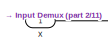
[diagram: FIR/Multiply-Accumulate 1 - part 1/11, top left region]
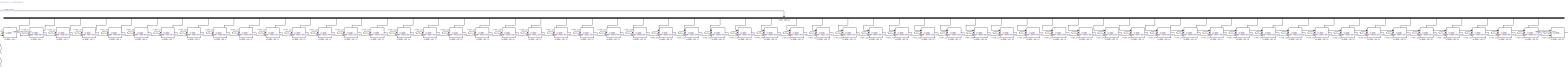
[diagram: FIR/Multiply-Accumulate 1 - part 2/11, most of the canvas]
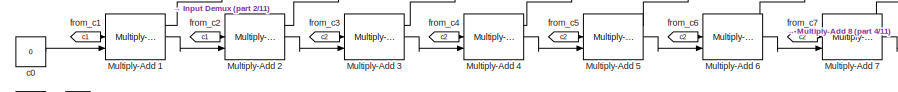
[diagram: FIR/Multiply-Accumulate 1 - part 3/11, middle left region]
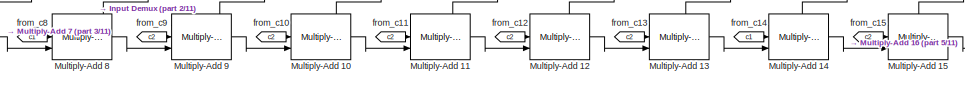
[diagram: FIR/Multiply-Accumulate 1 - part 4/11, middle left region]
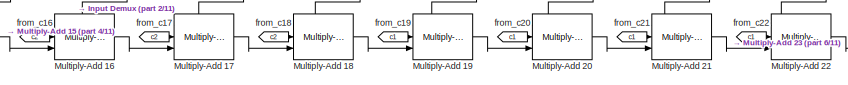
[diagram: FIR/Multiply-Accumulate 1 - part 5/11, middle left region]
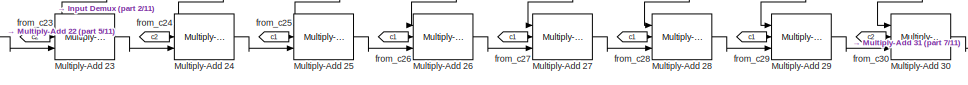
[diagram: FIR/Multiply-Accumulate 1 - part 6/11, central region]
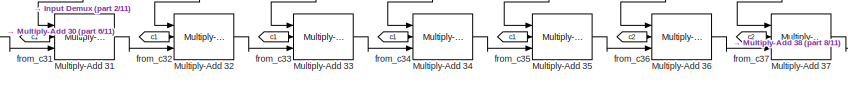
[diagram: FIR/Multiply-Accumulate 1 - part 7/11, central region]
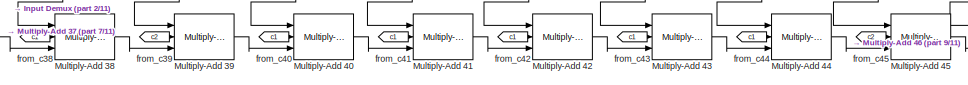
[diagram: FIR/Multiply-Accumulate 1 - part 8/11, middle right region]
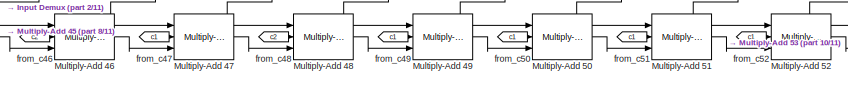
[diagram: FIR/Multiply-Accumulate 1 - part 9/11, middle right region]
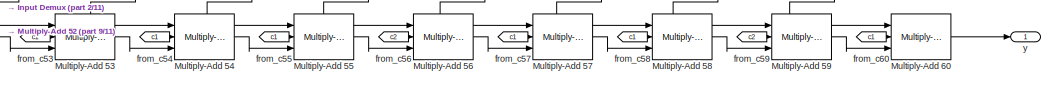
[diagram: FIR/Multiply-Accumulate 1 - part 10/11, middle right region]
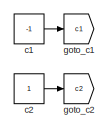
[diagram: FIR/Multiply-Accumulate 1 - part 11/11, bottom left region]
BLOCK [SubSystem] FIR/Multiply-Accumulate 1
  Ports = [1, 1]
  RequestExecContextInheritance = off
BLOCK [Demux] FIR/Multiply-Accumulate 1/Input Demux
  DisplayOption = bar
  Outputs = 60
  Ports = [1, 60]
BLOCK [Reference] FIR/Multiply-Accumulate 1/Multiply-Add 1  REF=filter_library/Multiply-Add  (lib defined in slx_7e4a8794f713)
  Ports = [3, 1]
  SourceBlock = filter_library/Multiply-Add
  SourceProductName = Filter Library
BLOCK [Reference] FIR/Multiply-Accumulate 1/Multiply-Add 10  REF=filter_library/Multiply-Add  (lib defined in slx_7e4a8794f713)
  Ports = [3, 1]
  SourceBlock = filter_library/Multiply-Add
  SourceProductName = Filter Library
BLOCK [Reference] FIR/Multiply-Accumulate 1/Multiply-Add 11  REF=filter_library/Multiply-Add  (lib defined in slx_7e4a8794f713)
  Ports = [3, 1]
  SourceBlock = filter_library/Multiply-Add
  SourceProductName = Filter Library
BLOCK [Reference] FIR/Multiply-Accumulate 1/Multiply-Add 12  REF=filter_library/Multiply-Add  (lib defined in slx_7e4a8794f713)
  Ports = [3, 1]
  SourceBlock = filter_library/Multiply-Add
  SourceProductName = Filter Library
BLOCK [Reference] FIR/Multiply-Accumulate 1/Multiply-Add 13  REF=filter_library/Multiply-Add  (lib defined in slx_7e4a8794f713)
  Ports = [3, 1]
  SourceBlock = filter_library/Multiply-Add
  SourceProductName = Filter Library
BLOCK [Reference] FIR/Multiply-Accumulate 1/Multiply-Add 14  REF=filter_library/Multiply-Add  (lib defined in slx_7e4a8794f713)
  Ports = [3, 1]
  SourceBlock = filter_library/Multiply-Add
  SourceProductName = Filter Library
BLOCK [Reference] FIR/Multiply-Accumulate 1/Multiply-Add 15  REF=filter_library/Multiply-Add  (lib defined in slx_7e4a8794f713)
  Ports = [3, 1]
  SourceBlock = filter_library/Multiply-Add
  SourceProductName = Filter Library
BLOCK [Reference] FIR/Multiply-Accumulate 1/Multiply-Add 16  REF=filter_library/Multiply-Add  (lib defined in slx_7e4a8794f713)
  Ports = [3, 1]
  SourceBlock = filter_library/Multiply-Add
  SourceProductName = Filter Library
BLOCK [Reference] FIR/Multiply-Accumulate 1/Multiply-Add 17  REF=filter_library/Multiply-Add  (lib defined in slx_7e4a8794f713)
  Ports = [3, 1]
  SourceBlock = filter_library/Multiply-Add
  SourceProductName = Filter Library
BLOCK [Reference] FIR/Multiply-Accumulate 1/Multiply-Add 18  REF=filter_library/Multiply-Add  (lib defined in slx_7e4a8794f713)
  Ports = [3, 1]
  SourceBlock = filter_library/Multiply-Add
  SourceProductName = Filter Library
BLOCK [Reference] FIR/Multiply-Accumulate 1/Multiply-Add 19  REF=filter_library/Multiply-Add  (lib defined in slx_7e4a8794f713)
  Ports = [3, 1]
  SourceBlock = filter_library/Multiply-Add
  SourceProductName = Filter Library
BLOCK [Reference] FIR/Multiply-Accumulate 1/Multiply-Add 2  REF=filter_library/Multiply-Add  (lib defined in slx_7e4a8794f713)
  Ports = [3, 1]
  SourceBlock = filter_library/Multiply-Add
  SourceProductName = Filter Library
BLOCK [Reference] FIR/Multiply-Accumulate 1/Multiply-Add 20  REF=filter_library/Multiply-Add  (lib defined in slx_7e4a8794f713)
  Ports = [3, 1]
  SourceBlock = filter_library/Multiply-Add
  SourceProductName = Filter Library
BLOCK [Reference] FIR/Multiply-Accumulate 1/Multiply-Add 21  REF=filter_library/Multiply-Add  (lib defined in slx_7e4a8794f713)
  Ports = [3, 1]
  SourceBlock = filter_library/Multiply-Add
  SourceProductName = Filter Library
BLOCK [Reference] FIR/Multiply-Accumulate 1/Multiply-Add 22  REF=filter_library/Multiply-Add  (lib defined in slx_7e4a8794f713)
  Ports = [3, 1]
  SourceBlock = filter_library/Multiply-Add
  SourceProductName = Filter Library
BLOCK [Reference] FIR/Multiply-Accumulate 1/Multiply-Add 23  REF=filter_library/Multiply-Add  (lib defined in slx_7e4a8794f713)
  Ports = [3, 1]
  SourceBlock = filter_library/Multiply-Add
  SourceProductName = Filter Library
BLOCK [Reference] FIR/Multiply-Accumulate 1/Multiply-Add 24  REF=filter_library/Multiply-Add  (lib defined in slx_7e4a8794f713)
  Ports = [3, 1]
  SourceBlock = filter_library/Multiply-Add
  SourceProductName = Filter Library
BLOCK [Reference] FIR/Multiply-Accumulate 1/Multiply-Add 25  REF=filter_library/Multiply-Add  (lib defined in slx_7e4a8794f713)
  Ports = [3, 1]
  SourceBlock = filter_library/Multiply-Add
  SourceProductName = Filter Library
BLOCK [Reference] FIR/Multiply-Accumulate 1/Multiply-Add 26  REF=filter_library/Multiply-Add  (lib defined in slx_7e4a8794f713)
  Ports = [3, 1]
  SourceBlock = filter_library/Multiply-Add
  SourceProductName = Filter Library
BLOCK [Reference] FIR/Multiply-Accumulate 1/Multiply-Add 27  REF=filter_library/Multiply-Add  (lib defined in slx_7e4a8794f713)
  Ports = [3, 1]
  SourceBlock = filter_library/Multiply-Add
  SourceProductName = Filter Library
BLOCK [Reference] FIR/Multiply-Accumulate 1/Multiply-Add 28  REF=filter_library/Multiply-Add  (lib defined in slx_7e4a8794f713)
  Ports = [3, 1]
  SourceBlock = filter_library/Multiply-Add
  SourceProductName = Filter Library
BLOCK [Reference] FIR/Multiply-Accumulate 1/Multiply-Add 29  REF=filter_library/Multiply-Add  (lib defined in slx_7e4a8794f713)
  Ports = [3, 1]
  SourceBlock = filter_library/Multiply-Add
  SourceProductName = Filter Library
BLOCK [Reference] FIR/Multiply-Accumulate 1/Multiply-Add 3  REF=filter_library/Multiply-Add  (lib defined in slx_7e4a8794f713)
  Ports = [3, 1]
  SourceBlock = filter_library/Multiply-Add
  SourceProductName = Filter Library
BLOCK [Reference] FIR/Multiply-Accumulate 1/Multiply-Add 30  REF=filter_library/Multiply-Add  (lib defined in slx_7e4a8794f713)
  Ports = [3, 1]
  SourceBlock = filter_library/Multiply-Add
  SourceProductName = Filter Library
BLOCK [Reference] FIR/Multiply-Accumulate 1/Multiply-Add 31  REF=filter_library/Multiply-Add  (lib defined in slx_7e4a8794f713)
  Ports = [3, 1]
  SourceBlock = filter_library/Multiply-Add
  SourceProductName = Filter Library
BLOCK [Reference] FIR/Multiply-Accumulate 1/Multiply-Add 32  REF=filter_library/Multiply-Add  (lib defined in slx_7e4a8794f713)
  Ports = [3, 1]
  SourceBlock = filter_library/Multiply-Add
  SourceProductName = Filter Library
BLOCK [Reference] FIR/Multiply-Accumulate 1/Multiply-Add 33  REF=filter_library/Multiply-Add  (lib defined in slx_7e4a8794f713)
  Ports = [3, 1]
  SourceBlock = filter_library/Multiply-Add
  SourceProductName = Filter Library
BLOCK [Reference] FIR/Multiply-Accumulate 1/Multiply-Add 34  REF=filter_library/Multiply-Add  (lib defined in slx_7e4a8794f713)
  Ports = [3, 1]
  SourceBlock = filter_library/Multiply-Add
  SourceProductName = Filter Library
BLOCK [Reference] FIR/Multiply-Accumulate 1/Multiply-Add 35  REF=filter_library/Multiply-Add  (lib defined in slx_7e4a8794f713)
  Ports = [3, 1]
  SourceBlock = filter_library/Multiply-Add
  SourceProductName = Filter Library
BLOCK [Reference] FIR/Multiply-Accumulate 1/Multiply-Add 36  REF=filter_library/Multiply-Add  (lib defined in slx_7e4a8794f713)
  Ports = [3, 1]
  SourceBlock = filter_library/Multiply-Add
  SourceProductName = Filter Library
BLOCK [Reference] FIR/Multiply-Accumulate 1/Multiply-Add 37  REF=filter_library/Multiply-Add  (lib defined in slx_7e4a8794f713)
  Ports = [3, 1]
  SourceBlock = filter_library/Multiply-Add
  SourceProductName = Filter Library
BLOCK [Reference] FIR/Multiply-Accumulate 1/Multiply-Add 38  REF=filter_library/Multiply-Add  (lib defined in slx_7e4a8794f713)
  Ports = [3, 1]
  SourceBlock = filter_library/Multiply-Add
  SourceProductName = Filter Library
BLOCK [Reference] FIR/Multiply-Accumulate 1/Multiply-Add 39  REF=filter_library/Multiply-Add  (lib defined in slx_7e4a8794f713)
  Ports = [3, 1]
  SourceBlock = filter_library/Multiply-Add
  SourceProductName = Filter Library
BLOCK [Reference] FIR/Multiply-Accumulate 1/Multiply-Add 4  REF=filter_library/Multiply-Add  (lib defined in slx_7e4a8794f713)
  Ports = [3, 1]
  SourceBlock = filter_library/Multiply-Add
  SourceProductName = Filter Library
BLOCK [Reference] FIR/Multiply-Accumulate 1/Multiply-Add 40  REF=filter_library/Multiply-Add  (lib defined in slx_7e4a8794f713)
  Ports = [3, 1]
  SourceBlock = filter_library/Multiply-Add
  SourceProductName = Filter Library
BLOCK [Reference] FIR/Multiply-Accumulate 1/Multiply-Add 41  REF=filter_library/Multiply-Add  (lib defined in slx_7e4a8794f713)
  Ports = [3, 1]
  SourceBlock = filter_library/Multiply-Add
  SourceProductName = Filter Library
BLOCK [Reference] FIR/Multiply-Accumulate 1/Multiply-Add 42  REF=filter_library/Multiply-Add  (lib defined in slx_7e4a8794f713)
  Ports = [3, 1]
  SourceBlock = filter_library/Multiply-Add
  SourceProductName = Filter Library
BLOCK [Reference] FIR/Multiply-Accumulate 1/Multiply-Add 43  REF=filter_library/Multiply-Add  (lib defined in slx_7e4a8794f713)
  Ports = [3, 1]
  SourceBlock = filter_library/Multiply-Add
  SourceProductName = Filter Library
BLOCK [Reference] FIR/Multiply-Accumulate 1/Multiply-Add 44  REF=filter_library/Multiply-Add  (lib defined in slx_7e4a8794f713)
  Ports = [3, 1]
  SourceBlock = filter_library/Multiply-Add
  SourceProductName = Filter Library
BLOCK [Reference] FIR/Multiply-Accumulate 1/Multiply-Add 45  REF=filter_library/Multiply-Add  (lib defined in slx_7e4a8794f713)
  Ports = [3, 1]
  SourceBlock = filter_library/Multiply-Add
  SourceProductName = Filter Library
BLOCK [Reference] FIR/Multiply-Accumulate 1/Multiply-Add 46  REF=filter_library/Multiply-Add  (lib defined in slx_7e4a8794f713)
  Ports = [3, 1]
  SourceBlock = filter_library/Multiply-Add
  SourceProductName = Filter Library
BLOCK [Reference] FIR/Multiply-Accumulate 1/Multiply-Add 47  REF=filter_library/Multiply-Add  (lib defined in slx_7e4a8794f713)
  Ports = [3, 1]
  SourceBlock = filter_library/Multiply-Add
  SourceProductName = Filter Library
BLOCK [Reference] FIR/Multiply-Accumulate 1/Multiply-Add 48  REF=filter_library/Multiply-Add  (lib defined in slx_7e4a8794f713)
  Ports = [3, 1]
  SourceBlock = filter_library/Multiply-Add
  SourceProductName = Filter Library
BLOCK [Reference] FIR/Multiply-Accumulate 1/Multiply-Add 49  REF=filter_library/Multiply-Add  (lib defined in slx_7e4a8794f713)
  Ports = [3, 1]
  SourceBlock = filter_library/Multiply-Add
  SourceProductName = Filter Library
BLOCK [Reference] FIR/Multiply-Accumulate 1/Multiply-Add 5  REF=filter_library/Multiply-Add  (lib defined in slx_7e4a8794f713)
  Ports = [3, 1]
  SourceBlock = filter_library/Multiply-Add
  SourceProductName = Filter Library
BLOCK [Reference] FIR/Multiply-Accumulate 1/Multiply-Add 50  REF=filter_library/Multiply-Add  (lib defined in slx_7e4a8794f713)
  Ports = [3, 1]
  SourceBlock = filter_library/Multiply-Add
  SourceProductName = Filter Library
BLOCK [Reference] FIR/Multiply-Accumulate 1/Multiply-Add 51  REF=filter_library/Multiply-Add  (lib defined in slx_7e4a8794f713)
  Ports = [3, 1]
  SourceBlock = filter_library/Multiply-Add
  SourceProductName = Filter Library
BLOCK [Reference] FIR/Multiply-Accumulate 1/Multiply-Add 52  REF=filter_library/Multiply-Add  (lib defined in slx_7e4a8794f713)
  Ports = [3, 1]
  SourceBlock = filter_library/Multiply-Add
  SourceProductName = Filter Library
BLOCK [Reference] FIR/Multiply-Accumulate 1/Multiply-Add 53  REF=filter_library/Multiply-Add  (lib defined in slx_7e4a8794f713)
  Ports = [3, 1]
  SourceBlock = filter_library/Multiply-Add
  SourceProductName = Filter Library
BLOCK [Reference] FIR/Multiply-Accumulate 1/Multiply-Add 54  REF=filter_library/Multiply-Add  (lib defined in slx_7e4a8794f713)
  Ports = [3, 1]
  SourceBlock = filter_library/Multiply-Add
  SourceProductName = Filter Library
BLOCK [Reference] FIR/Multiply-Accumulate 1/Multiply-Add 55  REF=filter_library/Multiply-Add  (lib defined in slx_7e4a8794f713)
  Ports = [3, 1]
  SourceBlock = filter_library/Multiply-Add
  SourceProductName = Filter Library
BLOCK [Reference] FIR/Multiply-Accumulate 1/Multiply-Add 56  REF=filter_library/Multiply-Add  (lib defined in slx_7e4a8794f713)
  Ports = [3, 1]
  SourceBlock = filter_library/Multiply-Add
  SourceProductName = Filter Library
BLOCK [Reference] FIR/Multiply-Accumulate 1/Multiply-Add 57  REF=filter_library/Multiply-Add  (lib defined in slx_7e4a8794f713)
  Ports = [3, 1]
  SourceBlock = filter_library/Multiply-Add
  SourceProductName = Filter Library
BLOCK [Reference] FIR/Multiply-Accumulate 1/Multiply-Add 58  REF=filter_library/Multiply-Add  (lib defined in slx_7e4a8794f713)
  Ports = [3, 1]
  SourceBlock = filter_library/Multiply-Add
  SourceProductName = Filter Library
BLOCK [Reference] FIR/Multiply-Accumulate 1/Multiply-Add 59  REF=filter_library/Multiply-Add  (lib defined in slx_7e4a8794f713)
  Ports = [3, 1]
  SourceBlock = filter_library/Multiply-Add
  SourceProductName = Filter Library
BLOCK [Reference] FIR/Multiply-Accumulate 1/Multiply-Add 6  REF=filter_library/Multiply-Add  (lib defined in slx_7e4a8794f713)
  Ports = [3, 1]
  SourceBlock = filter_library/Multiply-Add
  SourceProductName = Filter Library
BLOCK [Reference] FIR/Multiply-Accumulate 1/Multiply-Add 60  REF=filter_library/Multiply-Add  (lib defined in slx_7e4a8794f713)
  Ports = [3, 1]
  SourceBlock = filter_library/Multiply-Add
  SourceProductName = Filter Library
BLOCK [Reference] FIR/Multiply-Accumulate 1/Multiply-Add 7  REF=filter_library/Multiply-Add  (lib defined in slx_7e4a8794f713)
  Ports = [3, 1]
  SourceBlock = filter_library/Multiply-Add
  SourceProductName = Filter Library
BLOCK [Reference] FIR/Multiply-Accumulate 1/Multiply-Add 8  REF=filter_library/Multiply-Add  (lib defined in slx_7e4a8794f713)
  Ports = [3, 1]
  SourceBlock = filter_library/Multiply-Add
  SourceProductName = Filter Library
BLOCK [Reference] FIR/Multiply-Accumulate 1/Multiply-Add 9  REF=filter_library/Multiply-Add  (lib defined in slx_7e4a8794f713)
  Ports = [3, 1]
  SourceBlock = filter_library/Multiply-Add
  SourceProductName = Filter Library
BLOCK [Constant] FIR/Multiply-Accumulate 1/c0
  OutDataTypeStr = fixdt(1, 12, 7)
  SampleTime = 1
  Value = 0
BLOCK [Constant] FIR/Multiply-Accumulate 1/c1
  OutDataTypeStr = fixdt(1, 12, 7)
  SampleTime = 1
  Value = -1
BLOCK [Constant] FIR/Multiply-Accumulate 1/c2
  OutDataTypeStr = fixdt(1, 12, 7)
  SampleTime = 1
BLOCK [From] FIR/Multiply-Accumulate 1/from_c1
  GotoTag = c1
BLOCK [From] FIR/Multiply-Accumulate 1/from_c10
  GotoTag = c2
BLOCK [From] FIR/Multiply-Accumulate 1/from_c11
  GotoTag = c2
BLOCK [From] FIR/Multiply-Accumulate 1/from_c12
  GotoTag = c2
BLOCK [From] FIR/Multiply-Accumulate 1/from_c13
  GotoTag = c2
BLOCK [From] FIR/Multiply-Accumulate 1/from_c14
  GotoTag = c1
BLOCK [From] FIR/Multiply-Accumulate 1/from_c15
  GotoTag = c2
BLOCK [From] FIR/Multiply-Accumulate 1/from_c16
  GotoTag = c2
BLOCK [From] FIR/Multiply-Accumulate 1/from_c17
  GotoTag = c2
BLOCK [From] FIR/Multiply-Accumulate 1/from_c18
  GotoTag = c2
BLOCK [From] FIR/Multiply-Accumulate 1/from_c19
  GotoTag = c1
BLOCK [From] FIR/Multiply-Accumulate 1/from_c2
  GotoTag = c1
BLOCK [From] FIR/Multiply-Accumulate 1/from_c20
  GotoTag = c1
BLOCK [From] FIR/Multiply-Accumulate 1/from_c21
  GotoTag = c1
BLOCK [From] FIR/Multiply-Accumulate 1/from_c22
  GotoTag = c1
BLOCK [From] FIR/Multiply-Accumulate 1/from_c23
  GotoTag = c2
BLOCK [From] FIR/Multiply-Accumulate 1/from_c24
  GotoTag = c2
BLOCK [From] FIR/Multiply-Accumulate 1/from_c25
  GotoTag = c1
BLOCK [From] FIR/Multiply-Accumulate 1/from_c26
  GotoTag = c1
BLOCK [From] FIR/Multiply-Accumulate 1/from_c27
  GotoTag = c1
BLOCK [From] FIR/Multiply-Accumulate 1/from_c28
  GotoTag = c1
BLOCK [From] FIR/Multiply-Accumulate 1/from_c29
  GotoTag = c1
BLOCK [From] FIR/Multiply-Accumulate 1/from_c3
  GotoTag = c2
BLOCK [From] FIR/Multiply-Accumulate 1/from_c30
  GotoTag = c2
BLOCK [From] FIR/Multiply-Accumulate 1/from_c31
  GotoTag = c1
BLOCK [From] FIR/Multiply-Accumulate 1/from_c32
  GotoTag = c1
BLOCK [From] FIR/Multiply-Accumulate 1/from_c33
  GotoTag = c1
BLOCK [From] FIR/Multiply-Accumulate 1/from_c34
  GotoTag = c1
BLOCK [From] FIR/Multiply-Accumulate 1/from_c35
  GotoTag = c1
BLOCK [From] FIR/Multiply-Accumulate 1/from_c36
  GotoTag = c2
BLOCK [From] FIR/Multiply-Accumulate 1/from_c37
  GotoTag = c2
BLOCK [From] FIR/Multiply-Accumulate 1/from_c38
  GotoTag = c1
BLOCK [From] FIR/Multiply-Accumulate 1/from_c39
  GotoTag = c2
BLOCK [From] FIR/Multiply-Accumulate 1/from_c4
  GotoTag = c2
BLOCK [From] FIR/Multiply-Accumulate 1/from_c40
  GotoTag = c1
BLOCK [From] FIR/Multiply-Accumulate 1/from_c41
  GotoTag = c1
BLOCK [From] FIR/Multiply-Accumulate 1/from_c42
  GotoTag = c1
BLOCK [From] FIR/Multiply-Accumulate 1/from_c43
  GotoTag = c1
BLOCK [From] FIR/Multiply-Accumulate 1/from_c44
  GotoTag = c1
BLOCK [From] FIR/Multiply-Accumulate 1/from_c45
  GotoTag = c2
BLOCK [From] FIR/Multiply-Accumulate 1/from_c46
  GotoTag = c2
BLOCK [From] FIR/Multiply-Accumulate 1/from_c47
  GotoTag = c1
BLOCK [From] FIR/Multiply-Accumulate 1/from_c48
  GotoTag = c2
BLOCK [From] FIR/Multiply-Accumulate 1/from_c49
  GotoTag = c1
BLOCK [From] FIR/Multiply-Accumulate 1/from_c5
  GotoTag = c2
BLOCK [From] FIR/Multiply-Accumulate 1/from_c50
  GotoTag = c1
BLOCK [From] FIR/Multiply-Accumulate 1/from_c51
  GotoTag = c1
BLOCK [From] FIR/Multiply-Accumulate 1/from_c52
  GotoTag = c1
BLOCK [From] FIR/Multiply-Accumulate 1/from_c53
  GotoTag = c1
BLOCK [From] FIR/Multiply-Accumulate 1/from_c54
  GotoTag = c1
BLOCK [From] FIR/Multiply-Accumulate 1/from_c55
  GotoTag = c1
BLOCK [From] FIR/Multiply-Accumulate 1/from_c56
  GotoTag = c2
BLOCK [From] FIR/Multiply-Accumulate 1/from_c57
  GotoTag = c1
BLOCK [From] FIR/Multiply-Accumulate 1/from_c58
  GotoTag = c1
BLOCK [From] FIR/Multiply-Accumulate 1/from_c59
  GotoTag = c2
BLOCK [From] FIR/Multiply-Accumulate 1/from_c6
  GotoTag = c2
BLOCK [From] FIR/Multiply-Accumulate 1/from_c60
  GotoTag = c1
BLOCK [From] FIR/Multiply-Accumulate 1/from_c7
  GotoTag = c2
BLOCK [From] FIR/Multiply-Accumulate 1/from_c8
  GotoTag = c1
BLOCK [From] FIR/Multiply-Accumulate 1/from_c9
  GotoTag = c2
BLOCK [Goto] FIR/Multiply-Accumulate 1/goto_c1
  GotoTag = c1
BLOCK [Goto] FIR/Multiply-Accumulate 1/goto_c2
  GotoTag = c2
BLOCK [Inport] FIR/Multiply-Accumulate 1/x
  IconDisplay = Port number
BLOCK [Outport] FIR/Multiply-Accumulate 1/y
  IconDisplay = Port number
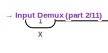
[diagram: FIR/Multiply-Accumulate 2 - part 1/11, top left region]
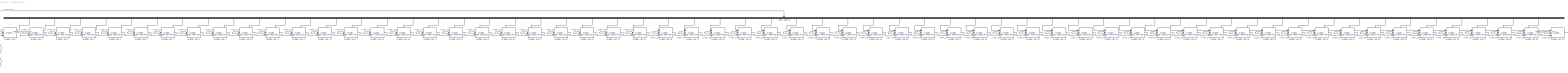
[diagram: FIR/Multiply-Accumulate 2 - part 2/11, most of the canvas]
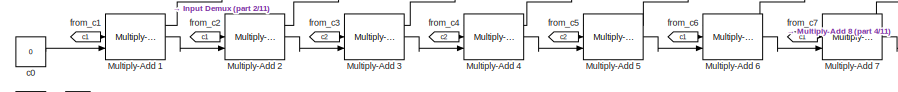
[diagram: FIR/Multiply-Accumulate 2 - part 3/11, middle left region]
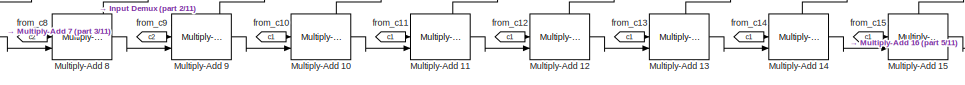
[diagram: FIR/Multiply-Accumulate 2 - part 4/11, middle left region]
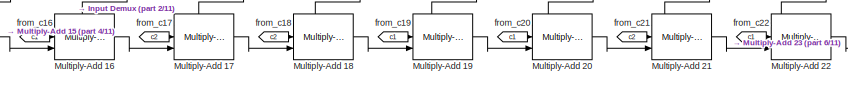
[diagram: FIR/Multiply-Accumulate 2 - part 5/11, middle left region]
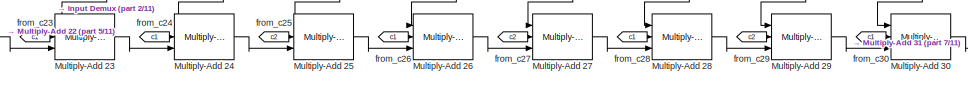
[diagram: FIR/Multiply-Accumulate 2 - part 6/11, central region]
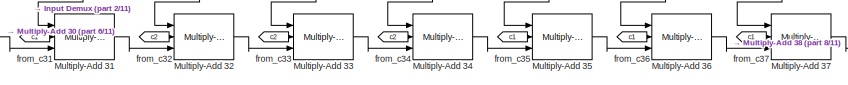
[diagram: FIR/Multiply-Accumulate 2 - part 7/11, central region]
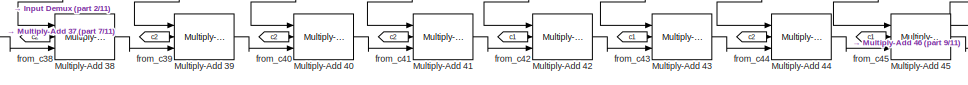
[diagram: FIR/Multiply-Accumulate 2 - part 8/11, middle right region]
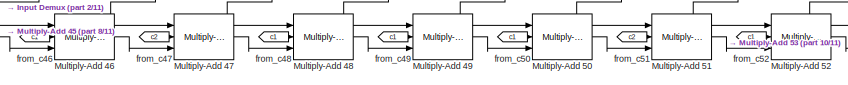
[diagram: FIR/Multiply-Accumulate 2 - part 9/11, middle right region]
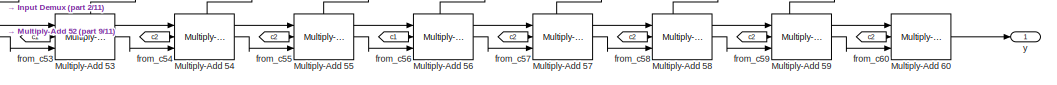
[diagram: FIR/Multiply-Accumulate 2 - part 10/11, middle right region]
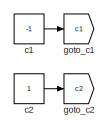
[diagram: FIR/Multiply-Accumulate 2 - part 11/11, bottom left region]
BLOCK [SubSystem] FIR/Multiply-Accumulate 2
  Ports = [1, 1]
  RequestExecContextInheritance = off
BLOCK [Demux] FIR/Multiply-Accumulate 2/Input Demux
  DisplayOption = bar
  Outputs = 60
  Ports = [1, 60]
BLOCK [Reference] FIR/Multiply-Accumulate 2/Multiply-Add 1  REF=filter_library/Multiply-Add  (lib defined in slx_7e4a8794f713)
  Ports = [3, 1]
  SourceBlock = filter_library/Multiply-Add
  SourceProductName = Filter Library
BLOCK [Reference] FIR/Multiply-Accumulate 2/Multiply-Add 10  REF=filter_library/Multiply-Add  (lib defined in slx_7e4a8794f713)
  Ports = [3, 1]
  SourceBlock = filter_library/Multiply-Add
  SourceProductName = Filter Library
BLOCK [Reference] FIR/Multiply-Accumulate 2/Multiply-Add 11  REF=filter_library/Multiply-Add  (lib defined in slx_7e4a8794f713)
  Ports = [3, 1]
  SourceBlock = filter_library/Multiply-Add
  SourceProductName = Filter Library
BLOCK [Reference] FIR/Multiply-Accumulate 2/Multiply-Add 12  REF=filter_library/Multiply-Add  (lib defined in slx_7e4a8794f713)
  Ports = [3, 1]
  SourceBlock = filter_library/Multiply-Add
  SourceProductName = Filter Library
BLOCK [Reference] FIR/Multiply-Accumulate 2/Multiply-Add 13  REF=filter_library/Multiply-Add  (lib defined in slx_7e4a8794f713)
  Ports = [3, 1]
  SourceBlock = filter_library/Multiply-Add
  SourceProductName = Filter Library
BLOCK [Reference] FIR/Multiply-Accumulate 2/Multiply-Add 14  REF=filter_library/Multiply-Add  (lib defined in slx_7e4a8794f713)
  Ports = [3, 1]
  SourceBlock = filter_library/Multiply-Add
  SourceProductName = Filter Library
BLOCK [Reference] FIR/Multiply-Accumulate 2/Multiply-Add 15  REF=filter_library/Multiply-Add  (lib defined in slx_7e4a8794f713)
  Ports = [3, 1]
  SourceBlock = filter_library/Multiply-Add
  SourceProductName = Filter Library
BLOCK [Reference] FIR/Multiply-Accumulate 2/Multiply-Add 16  REF=filter_library/Multiply-Add  (lib defined in slx_7e4a8794f713)
  Ports = [3, 1]
  SourceBlock = filter_library/Multiply-Add
  SourceProductName = Filter Library
BLOCK [Reference] FIR/Multiply-Accumulate 2/Multiply-Add 17  REF=filter_library/Multiply-Add  (lib defined in slx_7e4a8794f713)
  Ports = [3, 1]
  SourceBlock = filter_library/Multiply-Add
  SourceProductName = Filter Library
BLOCK [Reference] FIR/Multiply-Accumulate 2/Multiply-Add 18  REF=filter_library/Multiply-Add  (lib defined in slx_7e4a8794f713)
  Ports = [3, 1]
  SourceBlock = filter_library/Multiply-Add
  SourceProductName = Filter Library
BLOCK [Reference] FIR/Multiply-Accumulate 2/Multiply-Add 19  REF=filter_library/Multiply-Add  (lib defined in slx_7e4a8794f713)
  Ports = [3, 1]
  SourceBlock = filter_library/Multiply-Add
  SourceProductName = Filter Library
BLOCK [Reference] FIR/Multiply-Accumulate 2/Multiply-Add 2  REF=filter_library/Multiply-Add  (lib defined in slx_7e4a8794f713)
  Ports = [3, 1]
  SourceBlock = filter_library/Multiply-Add
  SourceProductName = Filter Library
BLOCK [Reference] FIR/Multiply-Accumulate 2/Multiply-Add 20  REF=filter_library/Multiply-Add  (lib defined in slx_7e4a8794f713)
  Ports = [3, 1]
  SourceBlock = filter_library/Multiply-Add
  SourceProductName = Filter Library
BLOCK [Reference] FIR/Multiply-Accumulate 2/Multiply-Add 21  REF=filter_library/Multiply-Add  (lib defined in slx_7e4a8794f713)
  Ports = [3, 1]
  SourceBlock = filter_library/Multiply-Add
  SourceProductName = Filter Library
BLOCK [Reference] FIR/Multiply-Accumulate 2/Multiply-Add 22  REF=filter_library/Multiply-Add  (lib defined in slx_7e4a8794f713)
  Ports = [3, 1]
  SourceBlock = filter_library/Multiply-Add
  SourceProductName = Filter Library
BLOCK [Reference] FIR/Multiply-Accumulate 2/Multiply-Add 23  REF=filter_library/Multiply-Add  (lib defined in slx_7e4a8794f713)
  Ports = [3, 1]
  SourceBlock = filter_library/Multiply-Add
  SourceProductName = Filter Library
BLOCK [Reference] FIR/Multiply-Accumulate 2/Multiply-Add 24  REF=filter_library/Multiply-Add  (lib defined in slx_7e4a8794f713)
  Ports = [3, 1]
  SourceBlock = filter_library/Multiply-Add
  SourceProductName = Filter Library
BLOCK [Reference] FIR/Multiply-Accumulate 2/Multiply-Add 25  REF=filter_library/Multiply-Add  (lib defined in slx_7e4a8794f713)
  Ports = [3, 1]
  SourceBlock = filter_library/Multiply-Add
  SourceProductName = Filter Library
BLOCK [Reference] FIR/Multiply-Accumulate 2/Multiply-Add 26  REF=filter_library/Multiply-Add  (lib defined in slx_7e4a8794f713)
  Ports = [3, 1]
  SourceBlock = filter_library/Multiply-Add
  SourceProductName = Filter Library
BLOCK [Reference] FIR/Multiply-Accumulate 2/Multiply-Add 27  REF=filter_library/Multiply-Add  (lib defined in slx_7e4a8794f713)
  Ports = [3, 1]
  SourceBlock = filter_library/Multiply-Add
  SourceProductName = Filter Library
BLOCK [Reference] FIR/Multiply-Accumulate 2/Multiply-Add 28  REF=filter_library/Multiply-Add  (lib defined in slx_7e4a8794f713)
  Ports = [3, 1]
  SourceBlock = filter_library/Multiply-Add
  SourceProductName = Filter Library
BLOCK [Reference] FIR/Multiply-Accumulate 2/Multiply-Add 29  REF=filter_library/Multiply-Add  (lib defined in slx_7e4a8794f713)
  Ports = [3, 1]
  SourceBlock = filter_library/Multiply-Add
  SourceProductName = Filter Library
BLOCK [Reference] FIR/Multiply-Accumulate 2/Multiply-Add 3  REF=filter_library/Multiply-Add  (lib defined in slx_7e4a8794f713)
  Ports = [3, 1]
  SourceBlock = filter_library/Multiply-Add
  SourceProductName = Filter Library
BLOCK [Reference] FIR/Multiply-Accumulate 2/Multiply-Add 30  REF=filter_library/Multiply-Add  (lib defined in slx_7e4a8794f713)
  Ports = [3, 1]
  SourceBlock = filter_library/Multiply-Add
  SourceProductName = Filter Library
BLOCK [Reference] FIR/Multiply-Accumulate 2/Multiply-Add 31  REF=filter_library/Multiply-Add  (lib defined in slx_7e4a8794f713)
  Ports = [3, 1]
  SourceBlock = filter_library/Multiply-Add
  SourceProductName = Filter Library
BLOCK [Reference] FIR/Multiply-Accumulate 2/Multiply-Add 32  REF=filter_library/Multiply-Add  (lib defined in slx_7e4a8794f713)
  Ports = [3, 1]
  SourceBlock = filter_library/Multiply-Add
  SourceProductName = Filter Library
BLOCK [Reference] FIR/Multiply-Accumulate 2/Multiply-Add 33  REF=filter_library/Multiply-Add  (lib defined in slx_7e4a8794f713)
  Ports = [3, 1]
  SourceBlock = filter_library/Multiply-Add
  SourceProductName = Filter Library
BLOCK [Reference] FIR/Multiply-Accumulate 2/Multiply-Add 34  REF=filter_library/Multiply-Add  (lib defined in slx_7e4a8794f713)
  Ports = [3, 1]
  SourceBlock = filter_library/Multiply-Add
  SourceProductName = Filter Library
BLOCK [Reference] FIR/Multiply-Accumulate 2/Multiply-Add 35  REF=filter_library/Multiply-Add  (lib defined in slx_7e4a8794f713)
  Ports = [3, 1]
  SourceBlock = filter_library/Multiply-Add
  SourceProductName = Filter Library
BLOCK [Reference] FIR/Multiply-Accumulate 2/Multiply-Add 36  REF=filter_library/Multiply-Add  (lib defined in slx_7e4a8794f713)
  Ports = [3, 1]
  SourceBlock = filter_library/Multiply-Add
  SourceProductName = Filter Library
BLOCK [Reference] FIR/Multiply-Accumulate 2/Multiply-Add 37  REF=filter_library/Multiply-Add  (lib defined in slx_7e4a8794f713)
  Ports = [3, 1]
  SourceBlock = filter_library/Multiply-Add
  SourceProductName = Filter Library
BLOCK [Reference] FIR/Multiply-Accumulate 2/Multiply-Add 38  REF=filter_library/Multiply-Add  (lib defined in slx_7e4a8794f713)
  Ports = [3, 1]
  SourceBlock = filter_library/Multiply-Add
  SourceProductName = Filter Library
BLOCK [Reference] FIR/Multiply-Accumulate 2/Multiply-Add 39  REF=filter_library/Multiply-Add  (lib defined in slx_7e4a8794f713)
  Ports = [3, 1]
  SourceBlock = filter_library/Multiply-Add
  SourceProductName = Filter Library
BLOCK [Reference] FIR/Multiply-Accumulate 2/Multiply-Add 4  REF=filter_library/Multiply-Add  (lib defined in slx_7e4a8794f713)
  Ports = [3, 1]
  SourceBlock = filter_library/Multiply-Add
  SourceProductName = Filter Library
BLOCK [Reference] FIR/Multiply-Accumulate 2/Multiply-Add 40  REF=filter_library/Multiply-Add  (lib defined in slx_7e4a8794f713)
  Ports = [3, 1]
  SourceBlock = filter_library/Multiply-Add
  SourceProductName = Filter Library
BLOCK [Reference] FIR/Multiply-Accumulate 2/Multiply-Add 41  REF=filter_library/Multiply-Add  (lib defined in slx_7e4a8794f713)
  Ports = [3, 1]
  SourceBlock = filter_library/Multiply-Add
  SourceProductName = Filter Library
BLOCK [Reference] FIR/Multiply-Accumulate 2/Multiply-Add 42  REF=filter_library/Multiply-Add  (lib defined in slx_7e4a8794f713)
  Ports = [3, 1]
  SourceBlock = filter_library/Multiply-Add
  SourceProductName = Filter Library
BLOCK [Reference] FIR/Multiply-Accumulate 2/Multiply-Add 43  REF=filter_library/Multiply-Add  (lib defined in slx_7e4a8794f713)
  Ports = [3, 1]
  SourceBlock = filter_library/Multiply-Add
  SourceProductName = Filter Library
BLOCK [Reference] FIR/Multiply-Accumulate 2/Multiply-Add 44  REF=filter_library/Multiply-Add  (lib defined in slx_7e4a8794f713)
  Ports = [3, 1]
  SourceBlock = filter_library/Multiply-Add
  SourceProductName = Filter Library
BLOCK [Reference] FIR/Multiply-Accumulate 2/Multiply-Add 45  REF=filter_library/Multiply-Add  (lib defined in slx_7e4a8794f713)
  Ports = [3, 1]
  SourceBlock = filter_library/Multiply-Add
  SourceProductName = Filter Library
BLOCK [Reference] FIR/Multiply-Accumulate 2/Multiply-Add 46  REF=filter_library/Multiply-Add  (lib defined in slx_7e4a8794f713)
  Ports = [3, 1]
  SourceBlock = filter_library/Multiply-Add
  SourceProductName = Filter Library
BLOCK [Reference] FIR/Multiply-Accumulate 2/Multiply-Add 47  REF=filter_library/Multiply-Add  (lib defined in slx_7e4a8794f713)
  Ports = [3, 1]
  SourceBlock = filter_library/Multiply-Add
  SourceProductName = Filter Library
BLOCK [Reference] FIR/Multiply-Accumulate 2/Multiply-Add 48  REF=filter_library/Multiply-Add  (lib defined in slx_7e4a8794f713)
  Ports = [3, 1]
  SourceBlock = filter_library/Multiply-Add
  SourceProductName = Filter Library
BLOCK [Reference] FIR/Multiply-Accumulate 2/Multiply-Add 49  REF=filter_library/Multiply-Add  (lib defined in slx_7e4a8794f713)
  Ports = [3, 1]
  SourceBlock = filter_library/Multiply-Add
  SourceProductName = Filter Library
BLOCK [Reference] FIR/Multiply-Accumulate 2/Multiply-Add 5  REF=filter_library/Multiply-Add  (lib defined in slx_7e4a8794f713)
  Ports = [3, 1]
  SourceBlock = filter_library/Multiply-Add
  SourceProductName = Filter Library
BLOCK [Reference] FIR/Multiply-Accumulate 2/Multiply-Add 50  REF=filter_library/Multiply-Add  (lib defined in slx_7e4a8794f713)
  Ports = [3, 1]
  SourceBlock = filter_library/Multiply-Add
  SourceProductName = Filter Library
BLOCK [Reference] FIR/Multiply-Accumulate 2/Multiply-Add 51  REF=filter_library/Multiply-Add  (lib defined in slx_7e4a8794f713)
  Ports = [3, 1]
  SourceBlock = filter_library/Multiply-Add
  SourceProductName = Filter Library
BLOCK [Reference] FIR/Multiply-Accumulate 2/Multiply-Add 52  REF=filter_library/Multiply-Add  (lib defined in slx_7e4a8794f713)
  Ports = [3, 1]
  SourceBlock = filter_library/Multiply-Add
  SourceProductName = Filter Library
BLOCK [Reference] FIR/Multiply-Accumulate 2/Multiply-Add 53  REF=filter_library/Multiply-Add  (lib defined in slx_7e4a8794f713)
  Ports = [3, 1]
  SourceBlock = filter_library/Multiply-Add
  SourceProductName = Filter Library
BLOCK [Reference] FIR/Multiply-Accumulate 2/Multiply-Add 54  REF=filter_library/Multiply-Add  (lib defined in slx_7e4a8794f713)
  Ports = [3, 1]
  SourceBlock = filter_library/Multiply-Add
  SourceProductName = Filter Library
BLOCK [Reference] FIR/Multiply-Accumulate 2/Multiply-Add 55  REF=filter_library/Multiply-Add  (lib defined in slx_7e4a8794f713)
  Ports = [3, 1]
  SourceBlock = filter_library/Multiply-Add
  SourceProductName = Filter Library
BLOCK [Reference] FIR/Multiply-Accumulate 2/Multiply-Add 56  REF=filter_library/Multiply-Add  (lib defined in slx_7e4a8794f713)
  Ports = [3, 1]
  SourceBlock = filter_library/Multiply-Add
  SourceProductName = Filter Library
BLOCK [Reference] FIR/Multiply-Accumulate 2/Multiply-Add 57  REF=filter_library/Multiply-Add  (lib defined in slx_7e4a8794f713)
  Ports = [3, 1]
  SourceBlock = filter_library/Multiply-Add
  SourceProductName = Filter Library
BLOCK [Reference] FIR/Multiply-Accumulate 2/Multiply-Add 58  REF=filter_library/Multiply-Add  (lib defined in slx_7e4a8794f713)
  Ports = [3, 1]
  SourceBlock = filter_library/Multiply-Add
  SourceProductName = Filter Library
BLOCK [Reference] FIR/Multiply-Accumulate 2/Multiply-Add 59  REF=filter_library/Multiply-Add  (lib defined in slx_7e4a8794f713)
  Ports = [3, 1]
  SourceBlock = filter_library/Multiply-Add
  SourceProductName = Filter Library
BLOCK [Reference] FIR/Multiply-Accumulate 2/Multiply-Add 6  REF=filter_library/Multiply-Add  (lib defined in slx_7e4a8794f713)
  Ports = [3, 1]
  SourceBlock = filter_library/Multiply-Add
  SourceProductName = Filter Library
BLOCK [Reference] FIR/Multiply-Accumulate 2/Multiply-Add 60  REF=filter_library/Multiply-Add  (lib defined in slx_7e4a8794f713)
  Ports = [3, 1]
  SourceBlock = filter_library/Multiply-Add
  SourceProductName = Filter Library
BLOCK [Reference] FIR/Multiply-Accumulate 2/Multiply-Add 7  REF=filter_library/Multiply-Add  (lib defined in slx_7e4a8794f713)
  Ports = [3, 1]
  SourceBlock = filter_library/Multiply-Add
  SourceProductName = Filter Library
BLOCK [Reference] FIR/Multiply-Accumulate 2/Multiply-Add 8  REF=filter_library/Multiply-Add  (lib defined in slx_7e4a8794f713)
  Ports = [3, 1]
  SourceBlock = filter_library/Multiply-Add
  SourceProductName = Filter Library
BLOCK [Reference] FIR/Multiply-Accumulate 2/Multiply-Add 9  REF=filter_library/Multiply-Add  (lib defined in slx_7e4a8794f713)
  Ports = [3, 1]
  SourceBlock = filter_library/Multiply-Add
  SourceProductName = Filter Library
BLOCK [Constant] FIR/Multiply-Accumulate 2/c0
  OutDataTypeStr = fixdt(1, 12, 7)
  SampleTime = 1
  Value = 0
BLOCK [Constant] FIR/Multiply-Accumulate 2/c1
  OutDataTypeStr = fixdt(1, 12, 7)
  SampleTime = 1
  Value = -1
BLOCK [Constant] FIR/Multiply-Accumulate 2/c2
  OutDataTypeStr = fixdt(1, 12, 7)
  SampleTime = 1
BLOCK [From] FIR/Multiply-Accumulate 2/from_c1
  GotoTag = c1
BLOCK [From] FIR/Multiply-Accumulate 2/from_c10
  GotoTag = c1
BLOCK [From] FIR/Multiply-Accumulate 2/from_c11
  GotoTag = c1
BLOCK [From] FIR/Multiply-Accumulate 2/from_c12
  GotoTag = c1
BLOCK [From] FIR/Multiply-Accumulate 2/from_c13
  GotoTag = c1
BLOCK [From] FIR/Multiply-Accumulate 2/from_c14
  GotoTag = c1
BLOCK [From] FIR/Multiply-Accumulate 2/from_c15
  GotoTag = c1
BLOCK [From] FIR/Multiply-Accumulate 2/from_c16
  GotoTag = c1
BLOCK [From] FIR/Multiply-Accumulate 2/from_c17
  GotoTag = c2
BLOCK [From] FIR/Multiply-Accumulate 2/from_c18
  GotoTag = c2
BLOCK [From] FIR/Multiply-Accumulate 2/from_c19
  GotoTag = c1
BLOCK [From] FIR/Multiply-Accumulate 2/from_c2
  GotoTag = c1
BLOCK [From] FIR/Multiply-Accumulate 2/from_c20
  GotoTag = c1
BLOCK [From] FIR/Multiply-Accumulate 2/from_c21
  GotoTag = c2
BLOCK [From] FIR/Multiply-Accumulate 2/from_c22
  GotoTag = c1
BLOCK [From] FIR/Multiply-Accumulate 2/from_c23
  GotoTag = c1
BLOCK [From] FIR/Multiply-Accumulate 2/from_c24
  GotoTag = c1
BLOCK [From] FIR/Multiply-Accumulate 2/from_c25
  GotoTag = c2
BLOCK [From] FIR/Multiply-Accumulate 2/from_c26
  GotoTag = c1
BLOCK [From] FIR/Multiply-Accumulate 2/from_c27
  GotoTag = c2
BLOCK [From] FIR/Multiply-Accumulate 2/from_c28
  GotoTag = c1
BLOCK [From] FIR/Multiply-Accumulate 2/from_c29
  GotoTag = c2
BLOCK [From] FIR/Multiply-Accumulate 2/from_c3
  GotoTag = c2
BLOCK [From] FIR/Multiply-Accumulate 2/from_c30
  GotoTag = c1
BLOCK [From] FIR/Multiply-Accumulate 2/from_c31
  GotoTag = c1
BLOCK [From] FIR/Multiply-Accumulate 2/from_c32
  GotoTag = c2
BLOCK [From] FIR/Multiply-Accumulate 2/from_c33
  GotoTag = c2
BLOCK [From] FIR/Multiply-Accumulate 2/from_c34
  GotoTag = c2
BLOCK [From] FIR/Multiply-Accumulate 2/from_c35
  GotoTag = c1
BLOCK [From] FIR/Multiply-Accumulate 2/from_c36
  GotoTag = c1
BLOCK [From] FIR/Multiply-Accumulate 2/from_c37
  GotoTag = c1
BLOCK [From] FIR/Multiply-Accumulate 2/from_c38
  GotoTag = c2
BLOCK [From] FIR/Multiply-Accumulate 2/from_c39
  GotoTag = c2
BLOCK [From] FIR/Multiply-Accumulate 2/from_c4
  GotoTag = c2
BLOCK [From] FIR/Multiply-Accumulate 2/from_c40
  GotoTag = c2
BLOCK [From] FIR/Multiply-Accumulate 2/from_c41
  GotoTag = c2
BLOCK [From] FIR/Multiply-Accumulate 2/from_c42
  GotoTag = c1
BLOCK [From] FIR/Multiply-Accumulate 2/from_c43
  GotoTag = c1
BLOCK [From] FIR/Multiply-Accumulate 2/from_c44
  GotoTag = c2
BLOCK [From] FIR/Multiply-Accumulate 2/from_c45
  GotoTag = c1
BLOCK [From] FIR/Multiply-Accumulate 2/from_c46
  GotoTag = c1
BLOCK [From] FIR/Multiply-Accumulate 2/from_c47
  GotoTag = c2
BLOCK [From] FIR/Multiply-Accumulate 2/from_c48
  GotoTag = c1
BLOCK [From] FIR/Multiply-Accumulate 2/from_c49
  GotoTag = c1
BLOCK [From] FIR/Multiply-Accumulate 2/from_c5
  GotoTag = c2
BLOCK [From] FIR/Multiply-Accumulate 2/from_c50
  GotoTag = c1
BLOCK [From] FIR/Multiply-Accumulate 2/from_c51
  GotoTag = c2
BLOCK [From] FIR/Multiply-Accumulate 2/from_c52
  GotoTag = c1
BLOCK [From] FIR/Multiply-Accumulate 2/from_c53
  GotoTag = c1
BLOCK [From] FIR/Multiply-Accumulate 2/from_c54
  GotoTag = c2
BLOCK [From] FIR/Multiply-Accumulate 2/from_c55
  GotoTag = c2
BLOCK [From] FIR/Multiply-Accumulate 2/from_c56
  GotoTag = c1
BLOCK [From] FIR/Multiply-Accumulate 2/from_c57
  GotoTag = c2
BLOCK [From] FIR/Multiply-Accumulate 2/from_c58
  GotoTag = c2
BLOCK [From] FIR/Multiply-Accumulate 2/from_c59
  GotoTag = c2
BLOCK [From] FIR/Multiply-Accumulate 2/from_c6
  GotoTag = c1
BLOCK [From] FIR/Multiply-Accumulate 2/from_c60
  GotoTag = c2
BLOCK [From] FIR/Multiply-Accumulate 2/from_c7
  GotoTag = c1
BLOCK [From] FIR/Multiply-Accumulate 2/from_c8
  GotoTag = c2
BLOCK [From] FIR/Multiply-Accumulate 2/from_c9
  GotoTag = c2
BLOCK [Goto] FIR/Multiply-Accumulate 2/goto_c1
  GotoTag = c1
BLOCK [Goto] FIR/Multiply-Accumulate 2/goto_c2
  GotoTag = c2
BLOCK [Inport] FIR/Multiply-Accumulate 2/x
  IconDisplay = Port number
BLOCK [Outport] FIR/Multiply-Accumulate 2/y
  IconDisplay = Port number
BLOCK [SubSystem] FIR/Multiply-Accumulate 3
  Ports = [1, 1]
  RequestExecContextInheritance = off
BLOCK [Demux] FIR/Multiply-Accumulate 3/Input Demux
  DisplayOption = bar
  Outputs = 60
  Ports = [1, 60]
BLOCK [Reference] FIR/Multiply-Accumulate 3/Multiply-Add 1  REF=filter_library/Multiply-Add  (lib defined in slx_7e4a8794f713)
  Ports = [3, 1]
  SourceBlock = filter_library/Multiply-Add
  SourceProductName = Filter Library
BLOCK [Reference] FIR/Multiply-Accumulate 3/Multiply-Add 10  REF=filter_library/Multiply-Add  (lib defined in slx_7e4a8794f713)
  Ports = [3, 1]
  SourceBlock = filter_library/Multiply-Add
  SourceProductName = Filter Library
BLOCK [Reference] FIR/Multiply-Accumulate 3/Multiply-Add 11  REF=filter_library/Multiply-Add  (lib defined in slx_7e4a8794f713)
  Ports = [3, 1]
  SourceBlock = filter_library/Multiply-Add
  SourceProductName = Filter Library
BLOCK [Reference] FIR/Multiply-Accumulate 3/Multiply-Add 12  REF=filter_library/Multiply-Add  (lib defined in slx_7e4a8794f713)
  Ports = [3, 1]
  SourceBlock = filter_library/Multiply-Add
  SourceProductName = Filter Library
BLOCK [Reference] FIR/Multiply-Accumulate 3/Multiply-Add 13  REF=filter_library/Multiply-Add  (lib defined in slx_7e4a8794f713)
  Ports = [3, 1]
  SourceBlock = filter_library/Multiply-Add
  SourceProductName = Filter Library
BLOCK [Reference] FIR/Multiply-Accumulate 3/Multiply-Add 14  REF=filter_library/Multiply-Add  (lib defined in slx_7e4a8794f713)
  Ports = [3, 1]
  SourceBlock = filter_library/Multiply-Add
  SourceProductName = Filter Library
BLOCK [Reference] FIR/Multiply-Accumulate 3/Multiply-Add 15  REF=filter_library/Multiply-Add  (lib defined in slx_7e4a8794f713)
  Ports = [3, 1]
  SourceBlock = filter_library/Multiply-Add
  SourceProductName = Filter Library
BLOCK [Reference] FIR/Multiply-Accumulate 3/Multiply-Add 16  REF=filter_library/Multiply-Add  (lib defined in slx_7e4a8794f713)
  Ports = [3, 1]
  SourceBlock = filter_library/Multiply-Add
  SourceProductName = Filter Library
BLOCK [Reference] FIR/Multiply-Accumulate 3/Multiply-Add 17  REF=filter_library/Multiply-Add  (lib defined in slx_7e4a8794f713)
  Ports = [3, 1]
  SourceBlock = filter_library/Multiply-Add
  SourceProductName = Filter Library
BLOCK [Reference] FIR/Multiply-Accumulate 3/Multiply-Add 18  REF=filter_library/Multiply-Add  (lib defined in slx_7e4a8794f713)
  Ports = [3, 1]
  SourceBlock = filter_library/Multiply-Add
  SourceProductName = Filter Library
BLOCK [Reference] FIR/Multiply-Accumulate 3/Multiply-Add 19  REF=filter_library/Multiply-Add  (lib defined in slx_7e4a8794f713)
  Ports = [3, 1]
  SourceBlock = filter_library/Multiply-Add
  SourceProductName = Filter Library
BLOCK [Reference] FIR/Multiply-Accumulate 3/Multiply-Add 2  REF=filter_library/Multiply-Add  (lib defined in slx_7e4a8794f713)
  Ports = [3, 1]
  SourceBlock = filter_library/Multiply-Add
  SourceProductName = Filter Library
BLOCK [Reference] FIR/Multiply-Accumulate 3/Multiply-Add 20  REF=filter_library/Multiply-Add  (lib defined in slx_7e4a8794f713)
  Ports = [3, 1]
  SourceBlock = filter_library/Multiply-Add
  SourceProductName = Filter Library
BLOCK [Reference] FIR/Multiply-Accumulate 3/Multiply-Add 21  REF=filter_library/Multiply-Add  (lib defined in slx_7e4a8794f713)
  Ports = [3, 1]
  SourceBlock = filter_library/Multiply-Add
  SourceProductName = Filter Library
BLOCK [Reference] FIR/Multiply-Accumulate 3/Multiply-Add 22  REF=filter_library/Multiply-Add  (lib defined in slx_7e4a8794f713)
  Ports = [3, 1]
  SourceBlock = filter_library/Multiply-Add
  SourceProductName = Filter Library
BLOCK [Reference] FIR/Multiply-Accumulate 3/Multiply-Add 23  REF=filter_library/Multiply-Add  (lib defined in slx_7e4a8794f713)
  Ports = [3, 1]
  SourceBlock = filter_library/Multiply-Add
  SourceProductName = Filter Library
BLOCK [Reference] FIR/Multiply-Accumulate 3/Multiply-Add 24  REF=filter_library/Multiply-Add  (lib defined in slx_7e4a8794f713)
  Ports = [3, 1]
  SourceBlock = filter_library/Multiply-Add
  SourceProductName = Filter Library
BLOCK [Reference] FIR/Multiply-Accumulate 3/Multiply-Add 25  REF=filter_library/Multiply-Add  (lib defined in slx_7e4a8794f713)
  Ports = [3, 1]
  SourceBlock = filter_library/Multiply-Add
  SourceProductName = Filter Library
BLOCK [Reference] FIR/Multiply-Accumulate 3/Multiply-Add 26  REF=filter_library/Multiply-Add  (lib defined in slx_7e4a8794f713)
  Ports = [3, 1]
  SourceBlock = filter_library/Multiply-Add
  SourceProductName = Filter Library
BLOCK [Reference] FIR/Multiply-Accumulate 3/Multiply-Add 27  REF=filter_library/Multiply-Add  (lib defined in slx_7e4a8794f713)
  Ports = [3, 1]
  SourceBlock = filter_library/Multiply-Add
  SourceProductName = Filter Library
BLOCK [Reference] FIR/Multiply-Accumulate 3/Multiply-Add 28  REF=filter_library/Multiply-Add  (lib defined in slx_7e4a8794f713)
  Ports = [3, 1]
  SourceBlock = filter_library/Multiply-Add
  SourceProductName = Filter Library
BLOCK [Reference] FIR/Multiply-Accumulate 3/Multiply-Add 29  REF=filter_library/Multiply-Add  (lib defined in slx_7e4a8794f713)
  Ports = [3, 1]
  SourceBlock = filter_library/Multiply-Add
  SourceProductName = Filter Library
BLOCK [Reference] FIR/Multiply-Accumulate 3/Multiply-Add 3  REF=filter_library/Multiply-Add  (lib defined in slx_7e4a8794f713)
  Ports = [3, 1]
  SourceBlock = filter_library/Multiply-Add
  SourceProductName = Filter Library
BLOCK [Reference] FIR/Multiply-Accumulate 3/Multiply-Add 30  REF=filter_library/Multiply-Add  (lib defined in slx_7e4a8794f713)
  Ports = [3, 1]
  SourceBlock = filter_library/Multiply-Add
  SourceProductName = Filter Library
BLOCK [Reference] FIR/Multiply-Accumulate 3/Multiply-Add 31  REF=filter_library/Multiply-Add  (lib defined in slx_7e4a8794f713)
  Ports = [3, 1]
  SourceBlock = filter_library/Multiply-Add
  SourceProductName = Filter Library
BLOCK [Reference] FIR/Multiply-Accumulate 3/Multiply-Add 32  REF=filter_library/Multiply-Add  (lib defined in slx_7e4a8794f713)
  Ports = [3, 1]
  SourceBlock = filter_library/Multiply-Add
  SourceProductName = Filter Library
BLOCK [Reference] FIR/Multiply-Accumulate 3/Multiply-Add 33  REF=filter_library/Multiply-Add  (lib defined in slx_7e4a8794f713)
  Ports = [3, 1]
  SourceBlock = filter_library/Multiply-Add
  SourceProductName = Filter Library
BLOCK [Reference] FIR/Multiply-Accumulate 3/Multiply-Add 34  REF=filter_library/Multiply-Add  (lib defined in slx_7e4a8794f713)
  Ports = [3, 1]
  SourceBlock = filter_library/Multiply-Add
  SourceProductName = Filter Library
BLOCK [Reference] FIR/Multiply-Accumulate 3/Multiply-Add 35  REF=filter_library/Multiply-Add  (lib defined in slx_7e4a8794f713)
  Ports = [3, 1]
  SourceBlock = filter_library/Multiply-Add
  SourceProductName = Filter Library
BLOCK [Reference] FIR/Multiply-Accumulate 3/Multiply-Add 36  REF=filter_library/Multiply-Add  (lib defined in slx_7e4a8794f713)
  Ports = [3, 1]
  SourceBlock = filter_library/Multiply-Add
  SourceProductName = Filter Library
BLOCK [Reference] FIR/Multiply-Accumulate 3/Multiply-Add 37  REF=filter_library/Multiply-Add  (lib defined in slx_7e4a8794f713)
  Ports = [3, 1]
  SourceBlock = filter_library/Multiply-Add
  SourceProductName = Filter Library
BLOCK [Reference] FIR/Multiply-Accumulate 3/Multiply-Add 38  REF=filter_library/Multiply-Add  (lib defined in slx_7e4a8794f713)
  Ports = [3, 1]
  SourceBlock = filter_library/Multiply-Add
  SourceProductName = Filter Library
BLOCK [Reference] FIR/Multiply-Accumulate 3/Multiply-Add 39  REF=filter_library/Multiply-Add  (lib defined in slx_7e4a8794f713)
  Ports = [3, 1]
  SourceBlock = filter_library/Multiply-Add
  SourceProductName = Filter Library
BLOCK [Reference] FIR/Multiply-Accumulate 3/Multiply-Add 4  REF=filter_library/Multiply-Add  (lib defined in slx_7e4a8794f713)
  Ports = [3, 1]
  SourceBlock = filter_library/Multiply-Add
  SourceProductName = Filter Library
BLOCK [Reference] FIR/Multiply-Accumulate 3/Multiply-Add 40  REF=filter_library/Multiply-Add  (lib defined in slx_7e4a8794f713)
  Ports = [3, 1]
  SourceBlock = filter_library/Multiply-Add
  SourceProductName = Filter Library
BLOCK [Reference] FIR/Multiply-Accumulate 3/Multiply-Add 41  REF=filter_library/Multiply-Add  (lib defined in slx_7e4a8794f713)
  Ports = [3, 1]
  SourceBlock = filter_library/Multiply-Add
  SourceProductName = Filter Library
BLOCK [Reference] FIR/Multiply-Accumulate 3/Multiply-Add 42  REF=filter_library/Multiply-Add  (lib defined in slx_7e4a8794f713)
  Ports = [3, 1]
  SourceBlock = filter_library/Multiply-Add
  SourceProductName = Filter Library
BLOCK [Reference] FIR/Multiply-Accumulate 3/Multiply-Add 43  REF=filter_library/Multiply-Add  (lib defined in slx_7e4a8794f713)
  Ports = [3, 1]
  SourceBlock = filter_library/Multiply-Add
  SourceProductName = Filter Library
BLOCK [Reference] FIR/Multiply-Accumulate 3/Multiply-Add 44  REF=filter_library/Multiply-Add  (lib defined in slx_7e4a8794f713)
  Ports = [3, 1]
  SourceBlock = filter_library/Multiply-Add
  SourceProductName = Filter Library
BLOCK [Reference] FIR/Multiply-Accumulate 3/Multiply-Add 45  REF=filter_library/Multiply-Add  (lib defined in slx_7e4a8794f713)
  Ports = [3, 1]
  SourceBlock = filter_library/Multiply-Add
  SourceProductName = Filter Library
BLOCK [Reference] FIR/Multiply-Accumulate 3/Multiply-Add 46  REF=filter_library/Multiply-Add  (lib defined in slx_7e4a8794f713)
  Ports = [3, 1]
  SourceBlock = filter_library/Multiply-Add
  SourceProductName = Filter Library
BLOCK [Reference] FIR/Multiply-Accumulate 3/Multiply-Add 47  REF=filter_library/Multiply-Add  (lib defined in slx_7e4a8794f713)
  Ports = [3, 1]
  SourceBlock = filter_library/Multiply-Add
  SourceProductName = Filter Library
BLOCK [Reference] FIR/Multiply-Accumulate 3/Multiply-Add 48  REF=filter_library/Multiply-Add  (lib defined in slx_7e4a8794f713)
  Ports = [3, 1]
  SourceBlock = filter_library/Multiply-Add
  SourceProductName = Filter Library
BLOCK [Reference] FIR/Multiply-Accumulate 3/Multiply-Add 49  REF=filter_library/Multiply-Add  (lib defined in slx_7e4a8794f713)
  Ports = [3, 1]
  SourceBlock = filter_library/Multiply-Add
  SourceProductName = Filter Library
BLOCK [Reference] FIR/Multiply-Accumulate 3/Multiply-Add 5  REF=filter_library/Multiply-Add  (lib defined in slx_7e4a8794f713)
  Ports = [3, 1]
  SourceBlock = filter_library/Multiply-Add
  SourceProductName = Filter Library
BLOCK [Reference] FIR/Multiply-Accumulate 3/Multiply-Add 50  REF=filter_library/Multiply-Add  (lib defined in slx_7e4a8794f713)
  Ports = [3, 1]
  SourceBlock = filter_library/Multiply-Add
  SourceProductName = Filter Library
BLOCK [Reference] FIR/Multiply-Accumulate 3/Multiply-Add 51  REF=filter_library/Multiply-Add  (lib defined in slx_7e4a8794f713)
  Ports = [3, 1]
  SourceBlock = filter_library/Multiply-Add
  SourceProductName = Filter Library
BLOCK [Reference] FIR/Multiply-Accumulate 3/Multiply-Add 52  REF=filter_library/Multiply-Add  (lib defined in slx_7e4a8794f713)
  Ports = [3, 1]
  SourceBlock = filter_library/Multiply-Add
  SourceProductName = Filter Library
BLOCK [Reference] FIR/Multiply-Accumulate 3/Multiply-Add 53  REF=filter_library/Multiply-Add  (lib defined in slx_7e4a8794f713)
  Ports = [3, 1]
  SourceBlock = filter_library/Multiply-Add
  SourceProductName = Filter Library
BLOCK [Reference] FIR/Multiply-Accumulate 3/Multiply-Add 54  REF=filter_library/Multiply-Add  (lib defined in slx_7e4a8794f713)
  Ports = [3, 1]
  SourceBlock = filter_library/Multiply-Add
  SourceProductName = Filter Library
BLOCK [Reference] FIR/Multiply-Accumulate 3/Multiply-Add 55  REF=filter_library/Multiply-Add  (lib defined in slx_7e4a8794f713)
  Ports = [3, 1]
  SourceBlock = filter_library/Multiply-Add
  SourceProductName = Filter Library
BLOCK [Reference] FIR/Multiply-Accumulate 3/Multiply-Add 56  REF=filter_library/Multiply-Add  (lib defined in slx_7e4a8794f713)
  Ports = [3, 1]
  SourceBlock = filter_library/Multiply-Add
  SourceProductName = Filter Library
BLOCK [Reference] FIR/Multiply-Accumulate 3/Multiply-Add 57  REF=filter_library/Multiply-Add  (lib defined in slx_7e4a8794f713)
  Ports = [3, 1]
  SourceBlock = filter_library/Multiply-Add
  SourceProductName = Filter Library
BLOCK [Reference] FIR/Multiply-Accumulate 3/Multiply-Add 58  REF=filter_library/Multiply-Add  (lib defined in slx_7e4a8794f713)
  Ports = [3, 1]
  SourceBlock = filter_library/Multiply-Add
  SourceProductName = Filter Library
BLOCK [Reference] FIR/Multiply-Accumulate 3/Multiply-Add 59  REF=filter_library/Multiply-Add  (lib defined in slx_7e4a8794f713)
  Ports = [3, 1]
  SourceBlock = filter_library/Multiply-Add
  SourceProductName = Filter Library
BLOCK [Reference] FIR/Multiply-Accumulate 3/Multiply-Add 6  REF=filter_library/Multiply-Add  (lib defined in slx_7e4a8794f713)
  Ports = [3, 1]
  SourceBlock = filter_library/Multiply-Add
  SourceProductName = Filter Library
BLOCK [Reference] FIR/Multiply-Accumulate 3/Multiply-Add 60  REF=filter_library/Multiply-Add  (lib defined in slx_7e4a8794f713)
  Ports = [3, 1]
  SourceBlock = filter_library/Multiply-Add
  SourceProductName = Filter Library
BLOCK [Reference] FIR/Multiply-Accumulate 3/Multiply-Add 7  REF=filter_library/Multiply-Add  (lib defined in slx_7e4a8794f713)
  Ports = [3, 1]
  SourceBlock = filter_library/Multiply-Add
  SourceProductName = Filter Library
BLOCK [Reference] FIR/Multiply-Accumulate 3/Multiply-Add 8  REF=filter_library/Multiply-Add  (lib defined in slx_7e4a8794f713)
  Ports = [3, 1]
  SourceBlock = filter_library/Multiply-Add
  SourceProductName = Filter Library
BLOCK [Reference] FIR/Multiply-Accumulate 3/Multiply-Add 9  REF=filter_library/Multiply-Add  (lib defined in slx_7e4a8794f713)
  Ports = [3, 1]
  SourceBlock = filter_library/Multiply-Add
  SourceProductName = Filter Library
BLOCK [Constant] FIR/Multiply-Accumulate 3/c0
  OutDataTypeStr = fixdt(1, 12, 7)
  SampleTime = 1
  Value = 0
BLOCK [Constant] FIR/Multiply-Accumulate 3/c1
  OutDataTypeStr = fixdt(1, 12, 7)
  SampleTime = 1
  Value = -1
BLOCK [Constant] FIR/Multiply-Accumulate 3/c2
  OutDataTypeStr = fixdt(1, 12, 7)
  SampleTime = 1
BLOCK [From] FIR/Multiply-Accumulate 3/from_c1
  GotoTag = c2
BLOCK [From] FIR/Multiply-Accumulate 3/from_c10
  GotoTag = c2
BLOCK [From] FIR/Multiply-Accumulate 3/from_c11
  GotoTag = c1
BLOCK [From] FIR/Multiply-Accumulate 3/from_c12
  GotoTag = c1
BLOCK [From] FIR/Multiply-Accumulate 3/from_c13
  GotoTag = c1
BLOCK [From] FIR/Multiply-Accumulate 3/from_c14
  GotoTag = c2
BLOCK [From] FIR/Multiply-Accumulate 3/from_c15
  GotoTag = c2
BLOCK [From] FIR/Multiply-Accumulate 3/from_c16
  GotoTag = c2
BLOCK [From] FIR/Multiply-Accumulate 3/from_c17
  GotoTag = c2
BLOCK [From] FIR/Multiply-Accumulate 3/from_c18
  GotoTag = c2
BLOCK [From] FIR/Multiply-Accumulate 3/from_c19
  GotoTag = c2
BLOCK [From] FIR/Multiply-Accumulate 3/from_c2
  GotoTag = c1
BLOCK [From] FIR/Multiply-Accumulate 3/from_c20
  GotoTag = c1
BLOCK [From] FIR/Multiply-Accumulate 3/from_c21
  GotoTag = c1
BLOCK [From] FIR/Multiply-Accumulate 3/from_c22
  GotoTag = c1
BLOCK [From] FIR/Multiply-Accumulate 3/from_c23
  GotoTag = c2
BLOCK [From] FIR/Multiply-Accumulate 3/from_c24
  GotoTag = c2
BLOCK [From] FIR/Multiply-Accumulate 3/from_c25
  GotoTag = c2
BLOCK [From] FIR/Multiply-Accumulate 3/from_c26
  GotoTag = c2
BLOCK [From] FIR/Multiply-Accumulate 3/from_c27
  GotoTag = c1
BLOCK [From] FIR/Multiply-Accumulate 3/from_c28
  GotoTag = c2
BLOCK [From] FIR/Multiply-Accumulate 3/from_c29
  GotoTag = c1
BLOCK [From] FIR/Multiply-Accumulate 3/from_c3
  GotoTag = c2
BLOCK [From] FIR/Multiply-Accumulate 3/from_c30
  GotoTag = c2
BLOCK [From] FIR/Multiply-Accumulate 3/from_c31
  GotoTag = c2
BLOCK [From] FIR/Multiply-Accumulate 3/from_c32
  GotoTag = c1
BLOCK [From] FIR/Multiply-Accumulate 3/from_c33
  GotoTag = c2
BLOCK [From] FIR/Multiply-Accumulate 3/from_c34
  GotoTag = c2
BLOCK [From] FIR/Multiply-Accumulate 3/from_c35
  GotoTag = c1
BLOCK [From] FIR/Multiply-Accumulate 3/from_c36
  GotoTag = c2
BLOCK [From] FIR/Multiply-Accumulate 3/from_c37
  GotoTag = c2
BLOCK [From] FIR/Multiply-Accumulate 3/from_c38
  GotoTag = c2
BLOCK [From] FIR/Multiply-Accumulate 3/from_c39
  GotoTag = c2
BLOCK [From] FIR/Multiply-Accumulate 3/from_c4
  GotoTag = c2
BLOCK [From] FIR/Multiply-Accumulate 3/from_c40
  GotoTag = c1
BLOCK [From] FIR/Multiply-Accumulate 3/from_c41
  GotoTag = c1
BLOCK [From] FIR/Multiply-Accumulate 3/from_c42
  GotoTag = c1
BLOCK [From] FIR/Multiply-Accumulate 3/from_c43
  GotoTag = c1
BLOCK [From] FIR/Multiply-Accumulate 3/from_c44
  GotoTag = c2
BLOCK [From] FIR/Multiply-Accumulate 3/from_c45
  GotoTag = c1
BLOCK [From] FIR/Multiply-Accumulate 3/from_c46
  GotoTag = c2
BLOCK [From] FIR/Multiply-Accumulate 3/from_c47
  GotoTag = c2
BLOCK [From] FIR/Multiply-Accumulate 3/from_c48
  GotoTag = c2
BLOCK [From] FIR/Multiply-Accumulate 3/from_c49
  GotoTag = c2
BLOCK [From] FIR/Multiply-Accumulate 3/from_c5
  GotoTag = c1
BLOCK [From] FIR/Multiply-Accumulate 3/from_c50
  GotoTag = c1
BLOCK [From] FIR/Multiply-Accumulate 3/from_c51
  GotoTag = c1
BLOCK [From] FIR/Multiply-Accumulate 3/from_c52
  GotoTag = c1
BLOCK [From] FIR/Multiply-Accumulate 3/from_c53
  GotoTag = c2
BLOCK [From] FIR/Multiply-Accumulate 3/from_c54
  GotoTag = c2
BLOCK [From] FIR/Multiply-Accumulate 3/from_c55
  GotoTag = c1
BLOCK [From] FIR/Multiply-Accumulate 3/from_c56
  GotoTag = c1
BLOCK [From] FIR/Multiply-Accumulate 3/from_c57
  GotoTag = c1
BLOCK [From] FIR/Multiply-Accumulate 3/from_c58
  GotoTag = c2
BLOCK [From] FIR/Multiply-Accumulate 3/from_c59
  GotoTag = c1
BLOCK [From] FIR/Multiply-Accumulate 3/from_c6
  GotoTag = c1
BLOCK [From] FIR/Multiply-Accumulate 3/from_c60
  GotoTag = c2
BLOCK [From] FIR/Multiply-Accumulate 3/from_c7
  GotoTag = c1
BLOCK [From] FIR/Multiply-Accumulate 3/from_c8
  GotoTag = c2
BLOCK [From] FIR/Multiply-Accumulate 3/from_c9
  GotoTag = c2
BLOCK [Goto] FIR/Multiply-Accumulate 3/goto_c1
  GotoTag = c1
BLOCK [Goto] FIR/Multiply-Accumulate 3/goto_c2
  GotoTag = c2
BLOCK [Inport] FIR/Multiply-Accumulate 3/x
  IconDisplay = Port number
BLOCK [Outport] FIR/Multiply-Accumulate 3/y
  IconDisplay = Port number
BLOCK [Reference] FIR/Tapped Delay Line  REF=simulink/Discrete/Tapped Delay
  Ports = [1, 1]
  SourceBlock = simulink/Discrete/Tapped Delay
  SourceProductBaseCode = SL
  SourceProductName = Simulink
  SourceType = Tapped Delay Line
BLOCK [Inport] FIR/x
  IconDisplay = Port number
BLOCK [Outport] FIR/y0
  IconDisplay = Port number
BLOCK [Outport] FIR/y1
  IconDisplay = Port number
  Port = 2
BLOCK [Outport] FIR/y2
  IconDisplay = Port number
  Port = 3
BLOCK [Scope] Scope
  Floating = off
  NumInputPorts = 3
  Ports = [3]
  ScopeSpecificationString = Simulink.scopes.TimeScopeBlockCfg('CurrentConfiguration', extmgr.ConfigurationSet(extmgr.Configuration('Core','General UI',true),extmgr.Configuration('Core','Source UI',true),extmgr.Configuration('Sources','WiredSimulink',true),extmgr.Configuration('Visuals','Time Domain',true,'SerializedDisplays',{struct('MinYLimReal','-1.24939','MaxYLimReal','1.24939','YLabelReal','','MinYLimMag','0.00000','MaxY...<+1461ch>
BLOCK [Scope] Scope1
  Floating = off
  NumInputPorts = 3
  Ports = [3]
  ScopeSpecificationString = Simulink.scopes.TimeScopeBlockCfg('CurrentConfiguration', extmgr.ConfigurationSet(extmgr.Configuration('Core','General UI',true),extmgr.Configuration('Core','Source UI',true),extmgr.Configuration('Sources','WiredSimulink',true,'DataLoggingVariableName','ScopeData1'),extmgr.Configuration('Visuals','Time Domain',true,'SerializedDisplays',{struct('MinYLimReal','-1.24939','MaxYLimReal','1.24939','YLab...<+1513ch>
BLOCK [Scope] Scope2
  Floating = off
  NumInputPorts = 3
  Ports = [3]
  ScopeSpecificationString = Simulink.scopes.TimeScopeBlockCfg('CurrentConfiguration', extmgr.ConfigurationSet(extmgr.Configuration('Core','General UI',true),extmgr.Configuration('Core','Source UI',true),extmgr.Configuration('Sources','WiredSimulink',true,'DataLoggingVariableName','ScopeData1'),extmgr.Configuration('Visuals','Time Domain',true,'SerializedDisplays',{struct('MinYLimReal','-1.24939','MaxYLimReal','1.24939','YLab...<+1513ch>
LINE Coeff Share/Filter 0/Demux:1 -> Coeff Share/Filter 0/add_delay1_1:1
LINE Coeff Share/Filter 0/Demux:2 -> Coeff Share/Filter 0/add_delay1_1:2
LINE Coeff Share/Filter 0/Demux:3 -> Coeff Share/Filter 0/add_delay1_2:1
LINE Coeff Share/Filter 0/Demux:4 -> Coeff Share/Filter 0/add_delay1_2:2
LINE Coeff Share/Filter 0/Demux:5 -> Coeff Share/Filter 0/add_delay1_3:1
LINE Coeff Share/Filter 0/Demux:6 -> Coeff Share/Filter 0/add_delay1_3:2
LINE Coeff Share/Filter 0/Demux:7 -> Coeff Share/Filter 0/add_delay1_4:1
LINE Coeff Share/Filter 0/Demux:8 -> Coeff Share/Filter 0/add_delay1_4:2
LINE Coeff Share/Filter 0/add_delay1_1:1 -> Coeff Share/Filter 0/add_delay2_1:1
LINE Coeff Share/Filter 0/add_delay1_2:1 -> Coeff Share/Filter 0/add_delay2_1:2
LINE Coeff Share/Filter 0/add_delay1_3:1 -> Coeff Share/Filter 0/add_delay2_2:1
LINE Coeff Share/Filter 0/add_delay1_4:1 -> Coeff Share/Filter 0/add_delay2_2:2
LINE Coeff Share/Filter 0/add_delay2_1:1 -> Coeff Share/Filter 0/add_delay3_1:1
LINE Coeff Share/Filter 0/add_delay2_2:1 -> Coeff Share/Filter 0/add_delay3_1:2
LINE Coeff Share/Filter 0/add_delay3_1:1 -> Coeff Share/Filter 0/data_out:1
LINE Coeff Share/Filter 0/data_in:1 -> Coeff Share/Filter 0/Demux:1
LINE Coeff Share/Filter 0:1 -> Coeff Share/y0:1
LINE Coeff Share/Filter 1/Demux:1 -> Coeff Share/Filter 1/add_delay1_1:1
LINE Coeff Share/Filter 1/Demux:2 -> Coeff Share/Filter 1/add_delay1_1:2
LINE Coeff Share/Filter 1/Demux:3 -> Coeff Share/Filter 1/add_delay1_2:1
LINE Coeff Share/Filter 1/Demux:4 -> Coeff Share/Filter 1/add_delay1_2:2
LINE Coeff Share/Filter 1/Demux:5 -> Coeff Share/Filter 1/add_delay1_3:1
LINE Coeff Share/Filter 1/Demux:6 -> Coeff Share/Filter 1/add_delay1_3:2
LINE Coeff Share/Filter 1/Demux:7 -> Coeff Share/Filter 1/add_delay1_4:1
LINE Coeff Share/Filter 1/Demux:8 -> Coeff Share/Filter 1/add_delay1_4:2
LINE Coeff Share/Filter 1/add_delay1_1:1 -> Coeff Share/Filter 1/add_delay2_1:1
LINE Coeff Share/Filter 1/add_delay1_2:1 -> Coeff Share/Filter 1/add_delay2_1:2
LINE Coeff Share/Filter 1/add_delay1_3:1 -> Coeff Share/Filter 1/add_delay2_2:1
LINE Coeff Share/Filter 1/add_delay1_4:1 -> Coeff Share/Filter 1/add_delay2_2:2
LINE Coeff Share/Filter 1/add_delay2_1:1 -> Coeff Share/Filter 1/add_delay3_1:1
LINE Coeff Share/Filter 1/add_delay2_2:1 -> Coeff Share/Filter 1/add_delay3_1:2
LINE Coeff Share/Filter 1/add_delay3_1:1 -> Coeff Share/Filter 1/data_out:1
LINE Coeff Share/Filter 1/data_in:1 -> Coeff Share/Filter 1/Demux:1
LINE Coeff Share/Filter 1:1 -> Coeff Share/y1:1
LINE Coeff Share/Filter 2/Demux:1 -> Coeff Share/Filter 2/add_delay1_1:1
LINE Coeff Share/Filter 2/Demux:2 -> Coeff Share/Filter 2/add_delay1_1:2
LINE Coeff Share/Filter 2/Demux:3 -> Coeff Share/Filter 2/add_delay1_2:1
LINE Coeff Share/Filter 2/Demux:4 -> Coeff Share/Filter 2/add_delay1_2:2
LINE Coeff Share/Filter 2/Demux:5 -> Coeff Share/Filter 2/add_delay1_3:1
LINE Coeff Share/Filter 2/Demux:6 -> Coeff Share/Filter 2/add_delay1_3:2
LINE Coeff Share/Filter 2/Demux:7 -> Coeff Share/Filter 2/add_delay1_4:1
LINE Coeff Share/Filter 2/Demux:8 -> Coeff Share/Filter 2/add_delay1_4:2
LINE Coeff Share/Filter 2/add_delay1_1:1 -> Coeff Share/Filter 2/add_delay2_1:1
LINE Coeff Share/Filter 2/add_delay1_2:1 -> Coeff Share/Filter 2/add_delay2_1:2
LINE Coeff Share/Filter 2/add_delay1_3:1 -> Coeff Share/Filter 2/add_delay2_2:1
LINE Coeff Share/Filter 2/add_delay1_4:1 -> Coeff Share/Filter 2/add_delay2_2:2
LINE Coeff Share/Filter 2/add_delay2_1:1 -> Coeff Share/Filter 2/add_delay3_1:1
LINE Coeff Share/Filter 2/add_delay2_2:1 -> Coeff Share/Filter 2/add_delay3_1:2
LINE Coeff Share/Filter 2/add_delay3_1:1 -> Coeff Share/Filter 2/data_out:1
LINE Coeff Share/Filter 2/data_in:1 -> Coeff Share/Filter 2/Demux:1
LINE Coeff Share/Filter 2:1 -> Coeff Share/y2:1
LINE Coeff Share/Multiply-Accumulate 0/Input Demux:1 -> Coeff Share/Multiply-Accumulate 0/Terminator_1:1
LINE Coeff Share/Multiply-Accumulate 0/Input Demux:10 -> Coeff Share/Multiply-Accumulate 0/Terminator_9:1
LINE Coeff Share/Multiply-Accumulate 0/Input Demux:11 -> Coeff Share/Multiply-Accumulate 0/Terminator_10:1
LINE Coeff Share/Multiply-Accumulate 0/Input Demux:12 -> Coeff Share/Multiply-Accumulate 0/Terminator_11:1
LINE Coeff Share/Multiply-Accumulate 0/Input Demux:13 -> Coeff Share/Multiply-Accumulate 0/Terminator_12:1
LINE Coeff Share/Multiply-Accumulate 0/Input Demux:14 -> Coeff Share/Multiply-Accumulate 0/Terminator_13:1
LINE Coeff Share/Multiply-Accumulate 0/Input Demux:15 -> Coeff Share/Multiply-Accumulate 0/Terminator_14:1
LINE Coeff Share/Multiply-Accumulate 0/Input Demux:16 -> Coeff Share/Multiply-Accumulate 0/Terminator_15:1
LINE Coeff Share/Multiply-Accumulate 0/Input Demux:17 -> Coeff Share/Multiply-Accumulate 0/Terminator_16:1
LINE Coeff Share/Multiply-Accumulate 0/Input Demux:18 -> Coeff Share/Multiply-Accumulate 0/Terminator_17:1
LINE Coeff Share/Multiply-Accumulate 0/Input Demux:19 -> Coeff Share/Multiply-Accumulate 0/Terminator_18:1
LINE Coeff Share/Multiply-Accumulate 0/Input Demux:2 -> Coeff Share/Multiply-Accumulate 0/Multiply-Add 1:1
LINE Coeff Share/Multiply-Accumulate 0/Input Demux:20 -> Coeff Share/Multiply-Accumulate 0/Multiply-Add 2:1
LINE Coeff Share/Multiply-Accumulate 0/Input Demux:21 -> Coeff Share/Multiply-Accumulate 0/Terminator_19:1
LINE Coeff Share/Multiply-Accumulate 0/Input Demux:22 -> Coeff Share/Multiply-Accumulate 0/Multiply-Add 3:1
LINE Coeff Share/Multiply-Accumulate 0/Input Demux:23 -> Coeff Share/Multiply-Accumulate 0/Terminator_20:1
LINE Coeff Share/Multiply-Accumulate 0/Input Demux:24 -> Coeff Share/Multiply-Accumulate 0/Terminator_21:1
LINE Coeff Share/Multiply-Accumulate 0/Input Demux:25 -> Coeff Share/Multiply-Accumulate 0/Terminator_22:1
LINE Coeff Share/Multiply-Accumulate 0/Input Demux:26 -> Coeff Share/Multiply-Accumulate 0/Terminator_23:1
LINE Coeff Share/Multiply-Accumulate 0/Input Demux:27 -> Coeff Share/Multiply-Accumulate 0/Terminator_24:1
LINE Coeff Share/Multiply-Accumulate 0/Input Demux:28 -> Coeff Share/Multiply-Accumulate 0/Terminator_25:1
LINE Coeff Share/Multiply-Accumulate 0/Input Demux:29 -> Coeff Share/Multiply-Accumulate 0/Terminator_26:1
LINE Coeff Share/Multiply-Accumulate 0/Input Demux:3 -> Coeff Share/Multiply-Accumulate 0/Terminator_2:1
LINE Coeff Share/Multiply-Accumulate 0/Input Demux:30 -> Coeff Share/Multiply-Accumulate 0/Terminator_27:1
LINE Coeff Share/Multiply-Accumulate 0/Input Demux:31 -> Coeff Share/Multiply-Accumulate 0/Terminator_28:1
LINE Coeff Share/Multiply-Accumulate 0/Input Demux:32 -> Coeff Share/Multiply-Accumulate 0/Terminator_29:1
LINE Coeff Share/Multiply-Accumulate 0/Input Demux:33 -> Coeff Share/Multiply-Accumulate 0/Terminator_30:1
LINE Coeff Share/Multiply-Accumulate 0/Input Demux:34 -> Coeff Share/Multiply-Accumulate 0/Terminator_31:1
LINE Coeff Share/Multiply-Accumulate 0/Input Demux:35 -> Coeff Share/Multiply-Accumulate 0/Multiply-Add 4:1
LINE Coeff Share/Multiply-Accumulate 0/Input Demux:36 -> Coeff Share/Multiply-Accumulate 0/Terminator_32:1
LINE Coeff Share/Multiply-Accumulate 0/Input Demux:37 -> Coeff Share/Multiply-Accumulate 0/Terminator_33:1
LINE Coeff Share/Multiply-Accumulate 0/Input Demux:38 -> Coeff Share/Multiply-Accumulate 0/Terminator_34:1
LINE Coeff Share/Multiply-Accumulate 0/Input Demux:39 -> Coeff Share/Multiply-Accumulate 0/Terminator_35:1
LINE Coeff Share/Multiply-Accumulate 0/Input Demux:4 -> Coeff Share/Multiply-Accumulate 0/Terminator_3:1
LINE Coeff Share/Multiply-Accumulate 0/Input Demux:40 -> Coeff Share/Multiply-Accumulate 0/Terminator_36:1
LINE Coeff Share/Multiply-Accumulate 0/Input Demux:41 -> Coeff Share/Multiply-Accumulate 0/Terminator_37:1
LINE Coeff Share/Multiply-Accumulate 0/Input Demux:42 -> Coeff Share/Multiply-Accumulate 0/Multiply-Add 5:1
LINE Coeff Share/Multiply-Accumulate 0/Input Demux:43 -> Coeff Share/Multiply-Accumulate 0/Multiply-Add 6:1
LINE Coeff Share/Multiply-Accumulate 0/Input Demux:44 -> Coeff Share/Multiply-Accumulate 0/Terminator_38:1
LINE Coeff Share/Multiply-Accumulate 0/Input Demux:45 -> Coeff Share/Multiply-Accumulate 0/Terminator_39:1
LINE Coeff Share/Multiply-Accumulate 0/Input Demux:46 -> Coeff Share/Multiply-Accumulate 0/Terminator_40:1
LINE Coeff Share/Multiply-Accumulate 0/Input Demux:47 -> Coeff Share/Multiply-Accumulate 0/Terminator_41:1
LINE Coeff Share/Multiply-Accumulate 0/Input Demux:48 -> Coeff Share/Multiply-Accumulate 0/Terminator_42:1
LINE Coeff Share/Multiply-Accumulate 0/Input Demux:49 -> Coeff Share/Multiply-Accumulate 0/Terminator_43:1
LINE Coeff Share/Multiply-Accumulate 0/Input Demux:5 -> Coeff Share/Multiply-Accumulate 0/Terminator_4:1
LINE Coeff Share/Multiply-Accumulate 0/Input Demux:50 -> Coeff Share/Multiply-Accumulate 0/Multiply-Add 7:1
LINE Coeff Share/Multiply-Accumulate 0/Input Demux:51 -> Coeff Share/Multiply-Accumulate 0/Terminator_44:1
LINE Coeff Share/Multiply-Accumulate 0/Input Demux:52 -> Coeff Share/Multiply-Accumulate 0/Multiply-Add 8:1
LINE Coeff Share/Multiply-Accumulate 0/Input Demux:53 -> Coeff Share/Multiply-Accumulate 0/Terminator_45:1
LINE Coeff Share/Multiply-Accumulate 0/Input Demux:54 -> Coeff Share/Multiply-Accumulate 0/Terminator_46:1
LINE Coeff Share/Multiply-Accumulate 0/Input Demux:55 -> Coeff Share/Multiply-Accumulate 0/Terminator_47:1
LINE Coeff Share/Multiply-Accumulate 0/Input Demux:56 -> Coeff Share/Multiply-Accumulate 0/Terminator_48:1
LINE Coeff Share/Multiply-Accumulate 0/Input Demux:57 -> Coeff Share/Multiply-Accumulate 0/Terminator_49:1
LINE Coeff Share/Multiply-Accumulate 0/Input Demux:58 -> Coeff Share/Multiply-Accumulate 0/Terminator_50:1
LINE Coeff Share/Multiply-Accumulate 0/Input Demux:59 -> Coeff Share/Multiply-Accumulate 0/Terminator_51:1
LINE Coeff Share/Multiply-Accumulate 0/Input Demux:6 -> Coeff Share/Multiply-Accumulate 0/Terminator_5:1
LINE Coeff Share/Multiply-Accumulate 0/Input Demux:60 -> Coeff Share/Multiply-Accumulate 0/Terminator_52:1
LINE Coeff Share/Multiply-Accumulate 0/Input Demux:7 -> Coeff Share/Multiply-Accumulate 0/Terminator_6:1
LINE Coeff Share/Multiply-Accumulate 0/Input Demux:8 -> Coeff Share/Multiply-Accumulate 0/Terminator_7:1
LINE Coeff Share/Multiply-Accumulate 0/Input Demux:9 -> Coeff Share/Multiply-Accumulate 0/Terminator_8:1
LINE Coeff Share/Multiply-Accumulate 0/Multiply-Add 1:1 -> Coeff Share/Multiply-Accumulate 0/Multiply-Add 2:3
LINE Coeff Share/Multiply-Accumulate 0/Multiply-Add 2:1 -> Coeff Share/Multiply-Accumulate 0/Multiply-Add 3:3
LINE Coeff Share/Multiply-Accumulate 0/Multiply-Add 3:1 -> Coeff Share/Multiply-Accumulate 0/Multiply-Add 4:3
LINE Coeff Share/Multiply-Accumulate 0/Multiply-Add 4:1 -> Coeff Share/Multiply-Accumulate 0/Multiply-Add 5:3
LINE Coeff Share/Multiply-Accumulate 0/Multiply-Add 5:1 -> Coeff Share/Multiply-Accumulate 0/Multiply-Add 6:3
LINE Coeff Share/Multiply-Accumulate 0/Multiply-Add 6:1 -> Coeff Share/Multiply-Accumulate 0/Multiply-Add 7:3
LINE Coeff Share/Multiply-Accumulate 0/Multiply-Add 7:1 -> Coeff Share/Multiply-Accumulate 0/Multiply-Add 8:3
LINE Coeff Share/Multiply-Accumulate 0/Multiply-Add 8:1 -> Coeff Share/Multiply-Accumulate 0/y:1
LINE Coeff Share/Multiply-Accumulate 0/c0:1 -> Coeff Share/Multiply-Accumulate 0/Multiply-Add 1:3
LINE Coeff Share/Multiply-Accumulate 0/c1:1 -> Coeff Share/Multiply-Accumulate 0/goto_c1:1
LINE Coeff Share/Multiply-Accumulate 0/from_c1:1 -> Coeff Share/Multiply-Accumulate 0/Multiply-Add 1:2
LINE Coeff Share/Multiply-Accumulate 0/from_c2:1 -> Coeff Share/Multiply-Accumulate 0/Multiply-Add 2:2
LINE Coeff Share/Multiply-Accumulate 0/from_c3:1 -> Coeff Share/Multiply-Accumulate 0/Multiply-Add 3:2
LINE Coeff Share/Multiply-Accumulate 0/from_c4:1 -> Coeff Share/Multiply-Accumulate 0/Multiply-Add 4:2
LINE Coeff Share/Multiply-Accumulate 0/from_c5:1 -> Coeff Share/Multiply-Accumulate 0/Multiply-Add 5:2
LINE Coeff Share/Multiply-Accumulate 0/from_c6:1 -> Coeff Share/Multiply-Accumulate 0/Multiply-Add 6:2
LINE Coeff Share/Multiply-Accumulate 0/from_c7:1 -> Coeff Share/Multiply-Accumulate 0/Multiply-Add 7:2
LINE Coeff Share/Multiply-Accumulate 0/from_c8:1 -> Coeff Share/Multiply-Accumulate 0/Multiply-Add 8:2
LINE Coeff Share/Multiply-Accumulate 0/x:1 -> Coeff Share/Multiply-Accumulate 0/Input Demux:1
LINE Coeff Share/Multiply-Accumulate 0:1 -> Coeff Share/Mux:1
LINE Coeff Share/Multiply-Accumulate 1/Input Demux:1 -> Coeff Share/Multiply-Accumulate 1/Multiply-Add 1:1
LINE Coeff Share/Multiply-Accumulate 1/Input Demux:10 -> Coeff Share/Multiply-Accumulate 1/Terminator_9:1
LINE Coeff Share/Multiply-Accumulate 1/Input Demux:11 -> Coeff Share/Multiply-Accumulate 1/Terminator_10:1
LINE Coeff Share/Multiply-Accumulate 1/Input Demux:12 -> Coeff Share/Multiply-Accumulate 1/Terminator_11:1
LINE Coeff Share/Multiply-Accumulate 1/Input Demux:13 -> Coeff Share/Multiply-Accumulate 1/Terminator_12:1
LINE Coeff Share/Multiply-Accumulate 1/Input Demux:14 -> Coeff Share/Multiply-Accumulate 1/Multiply-Add 2:1
LINE Coeff Share/Multiply-Accumulate 1/Input Demux:15 -> Coeff Share/Multiply-Accumulate 1/Terminator_13:1
LINE Coeff Share/Multiply-Accumulate 1/Input Demux:16 -> Coeff Share/Multiply-Accumulate 1/Terminator_14:1
LINE Coeff Share/Multiply-Accumulate 1/Input Demux:17 -> Coeff Share/Multiply-Accumulate 1/Terminator_15:1
LINE Coeff Share/Multiply-Accumulate 1/Input Demux:18 -> Coeff Share/Multiply-Accumulate 1/Terminator_16:1
LINE Coeff Share/Multiply-Accumulate 1/Input Demux:19 -> Coeff Share/Multiply-Accumulate 1/Multiply-Add 3:1
LINE Coeff Share/Multiply-Accumulate 1/Input Demux:2 -> Coeff Share/Multiply-Accumulate 1/Terminator_1:1
LINE Coeff Share/Multiply-Accumulate 1/Input Demux:20 -> Coeff Share/Multiply-Accumulate 1/Terminator_17:1
LINE Coeff Share/Multiply-Accumulate 1/Input Demux:21 -> Coeff Share/Multiply-Accumulate 1/Terminator_18:1
LINE Coeff Share/Multiply-Accumulate 1/Input Demux:22 -> Coeff Share/Multiply-Accumulate 1/Terminator_19:1
LINE Coeff Share/Multiply-Accumulate 1/Input Demux:23 -> Coeff Share/Multiply-Accumulate 1/Terminator_20:1
LINE Coeff Share/Multiply-Accumulate 1/Input Demux:24 -> Coeff Share/Multiply-Accumulate 1/Terminator_21:1
LINE Coeff Share/Multiply-Accumulate 1/Input Demux:25 -> Coeff Share/Multiply-Accumulate 1/Terminator_22:1
LINE Coeff Share/Multiply-Accumulate 1/Input Demux:26 -> Coeff Share/Multiply-Accumulate 1/Multiply-Add 4:1
LINE Coeff Share/Multiply-Accumulate 1/Input Demux:27 -> Coeff Share/Multiply-Accumulate 1/Terminator_23:1
LINE Coeff Share/Multiply-Accumulate 1/Input Demux:28 -> Coeff Share/Multiply-Accumulate 1/Multiply-Add 5:1
LINE Coeff Share/Multiply-Accumulate 1/Input Demux:29 -> Coeff Share/Multiply-Accumulate 1/Terminator_24:1
LINE Coeff Share/Multiply-Accumulate 1/Input Demux:3 -> Coeff Share/Multiply-Accumulate 1/Terminator_2:1
LINE Coeff Share/Multiply-Accumulate 1/Input Demux:30 -> Coeff Share/Multiply-Accumulate 1/Terminator_25:1
LINE Coeff Share/Multiply-Accumulate 1/Input Demux:31 -> Coeff Share/Multiply-Accumulate 1/Multiply-Add 6:1
LINE Coeff Share/Multiply-Accumulate 1/Input Demux:32 -> Coeff Share/Multiply-Accumulate 1/Terminator_26:1
LINE Coeff Share/Multiply-Accumulate 1/Input Demux:33 -> Coeff Share/Multiply-Accumulate 1/Terminator_27:1
LINE Coeff Share/Multiply-Accumulate 1/Input Demux:34 -> Coeff Share/Multiply-Accumulate 1/Terminator_28:1
LINE Coeff Share/Multiply-Accumulate 1/Input Demux:35 -> Coeff Share/Multiply-Accumulate 1/Terminator_29:1
LINE Coeff Share/Multiply-Accumulate 1/Input Demux:36 -> Coeff Share/Multiply-Accumulate 1/Terminator_30:1
LINE Coeff Share/Multiply-Accumulate 1/Input Demux:37 -> Coeff Share/Multiply-Accumulate 1/Terminator_31:1
LINE Coeff Share/Multiply-Accumulate 1/Input Demux:38 -> Coeff Share/Multiply-Accumulate 1/Terminator_32:1
LINE Coeff Share/Multiply-Accumulate 1/Input Demux:39 -> Coeff Share/Multiply-Accumulate 1/Terminator_33:1
LINE Coeff Share/Multiply-Accumulate 1/Input Demux:4 -> Coeff Share/Multiply-Accumulate 1/Terminator_3:1
LINE Coeff Share/Multiply-Accumulate 1/Input Demux:40 -> Coeff Share/Multiply-Accumulate 1/Terminator_34:1
LINE Coeff Share/Multiply-Accumulate 1/Input Demux:41 -> Coeff Share/Multiply-Accumulate 1/Terminator_35:1
LINE Coeff Share/Multiply-Accumulate 1/Input Demux:42 -> Coeff Share/Multiply-Accumulate 1/Terminator_36:1
LINE Coeff Share/Multiply-Accumulate 1/Input Demux:43 -> Coeff Share/Multiply-Accumulate 1/Terminator_37:1
LINE Coeff Share/Multiply-Accumulate 1/Input Demux:44 -> Coeff Share/Multiply-Accumulate 1/Terminator_38:1
LINE Coeff Share/Multiply-Accumulate 1/Input Demux:45 -> Coeff Share/Multiply-Accumulate 1/Terminator_39:1
LINE Coeff Share/Multiply-Accumulate 1/Input Demux:46 -> Coeff Share/Multiply-Accumulate 1/Terminator_40:1
LINE Coeff Share/Multiply-Accumulate 1/Input Demux:47 -> Coeff Share/Multiply-Accumulate 1/Terminator_41:1
LINE Coeff Share/Multiply-Accumulate 1/Input Demux:48 -> Coeff Share/Multiply-Accumulate 1/Terminator_42:1
LINE Coeff Share/Multiply-Accumulate 1/Input Demux:49 -> Coeff Share/Multiply-Accumulate 1/Multiply-Add 7:1
LINE Coeff Share/Multiply-Accumulate 1/Input Demux:5 -> Coeff Share/Multiply-Accumulate 1/Terminator_4:1
LINE Coeff Share/Multiply-Accumulate 1/Input Demux:50 -> Coeff Share/Multiply-Accumulate 1/Terminator_43:1
LINE Coeff Share/Multiply-Accumulate 1/Input Demux:51 -> Coeff Share/Multiply-Accumulate 1/Terminator_44:1
LINE Coeff Share/Multiply-Accumulate 1/Input Demux:52 -> Coeff Share/Multiply-Accumulate 1/Terminator_45:1
LINE Coeff Share/Multiply-Accumulate 1/Input Demux:53 -> Coeff Share/Multiply-Accumulate 1/Multiply-Add 8:1
LINE Coeff Share/Multiply-Accumulate 1/Input Demux:54 -> Coeff Share/Multiply-Accumulate 1/Terminator_46:1
LINE Coeff Share/Multiply-Accumulate 1/Input Demux:55 -> Coeff Share/Multiply-Accumulate 1/Terminator_47:1
LINE Coeff Share/Multiply-Accumulate 1/Input Demux:56 -> Coeff Share/Multiply-Accumulate 1/Terminator_48:1
LINE Coeff Share/Multiply-Accumulate 1/Input Demux:57 -> Coeff Share/Multiply-Accumulate 1/Terminator_49:1
LINE Coeff Share/Multiply-Accumulate 1/Input Demux:58 -> Coeff Share/Multiply-Accumulate 1/Terminator_50:1
LINE Coeff Share/Multiply-Accumulate 1/Input Demux:59 -> Coeff Share/Multiply-Accumulate 1/Terminator_51:1
LINE Coeff Share/Multiply-Accumulate 1/Input Demux:6 -> Coeff Share/Multiply-Accumulate 1/Terminator_5:1
LINE Coeff Share/Multiply-Accumulate 1/Input Demux:60 -> Coeff Share/Multiply-Accumulate 1/Terminator_52:1
LINE Coeff Share/Multiply-Accumulate 1/Input Demux:7 -> Coeff Share/Multiply-Accumulate 1/Terminator_6:1
LINE Coeff Share/Multiply-Accumulate 1/Input Demux:8 -> Coeff Share/Multiply-Accumulate 1/Terminator_7:1
LINE Coeff Share/Multiply-Accumulate 1/Input Demux:9 -> Coeff Share/Multiply-Accumulate 1/Terminator_8:1
LINE Coeff Share/Multiply-Accumulate 1/Multiply-Add 1:1 -> Coeff Share/Multiply-Accumulate 1/Multiply-Add 2:3
LINE Coeff Share/Multiply-Accumulate 1/Multiply-Add 2:1 -> Coeff Share/Multiply-Accumulate 1/Multiply-Add 3:3
LINE Coeff Share/Multiply-Accumulate 1/Multiply-Add 3:1 -> Coeff Share/Multiply-Accumulate 1/Multiply-Add 4:3
LINE Coeff Share/Multiply-Accumulate 1/Multiply-Add 4:1 -> Coeff Share/Multiply-Accumulate 1/Multiply-Add 5:3
LINE Coeff Share/Multiply-Accumulate 1/Multiply-Add 5:1 -> Coeff Share/Multiply-Accumulate 1/Multiply-Add 6:3
LINE Coeff Share/Multiply-Accumulate 1/Multiply-Add 6:1 -> Coeff Share/Multiply-Accumulate 1/Multiply-Add 7:3
LINE Coeff Share/Multiply-Accumulate 1/Multiply-Add 7:1 -> Coeff Share/Multiply-Accumulate 1/Multiply-Add 8:3
LINE Coeff Share/Multiply-Accumulate 1/Multiply-Add 8:1 -> Coeff Share/Multiply-Accumulate 1/y:1
LINE Coeff Share/Multiply-Accumulate 1/c0:1 -> Coeff Share/Multiply-Accumulate 1/Multiply-Add 1:3
LINE Coeff Share/Multiply-Accumulate 1/c1:1 -> Coeff Share/Multiply-Accumulate 1/goto_c1:1
LINE Coeff Share/Multiply-Accumulate 1/from_c1:1 -> Coeff Share/Multiply-Accumulate 1/Multiply-Add 1:2
LINE Coeff Share/Multiply-Accumulate 1/from_c2:1 -> Coeff Share/Multiply-Accumulate 1/Multiply-Add 2:2
LINE Coeff Share/Multiply-Accumulate 1/from_c3:1 -> Coeff Share/Multiply-Accumulate 1/Multiply-Add 3:2
LINE Coeff Share/Multiply-Accumulate 1/from_c4:1 -> Coeff Share/Multiply-Accumulate 1/Multiply-Add 4:2
LINE Coeff Share/Multiply-Accumulate 1/from_c5:1 -> Coeff Share/Multiply-Accumulate 1/Multiply-Add 5:2
LINE Coeff Share/Multiply-Accumulate 1/from_c6:1 -> Coeff Share/Multiply-Accumulate 1/Multiply-Add 6:2
LINE Coeff Share/Multiply-Accumulate 1/from_c7:1 -> Coeff Share/Multiply-Accumulate 1/Multiply-Add 7:2
LINE Coeff Share/Multiply-Accumulate 1/from_c8:1 -> Coeff Share/Multiply-Accumulate 1/Multiply-Add 8:2
LINE Coeff Share/Multiply-Accumulate 1/x:1 -> Coeff Share/Multiply-Accumulate 1/Input Demux:1
LINE Coeff Share/Multiply-Accumulate 1:1 -> Coeff Share/Mux:2
LINE Coeff Share/Multiply-Accumulate 2/Input Demux:1 -> Coeff Share/Multiply-Accumulate 2/Terminator_1:1
LINE Coeff Share/Multiply-Accumulate 2/Input Demux:10 -> Coeff Share/Multiply-Accumulate 2/Terminator_10:1
LINE Coeff Share/Multiply-Accumulate 2/Input Demux:11 -> Coeff Share/Multiply-Accumulate 2/Terminator_11:1
LINE Coeff Share/Multiply-Accumulate 2/Input Demux:12 -> Coeff Share/Multiply-Accumulate 2/Terminator_12:1
LINE Coeff Share/Multiply-Accumulate 2/Input Demux:13 -> Coeff Share/Multiply-Accumulate 2/Terminator_13:1
LINE Coeff Share/Multiply-Accumulate 2/Input Demux:14 -> Coeff Share/Multiply-Accumulate 2/Terminator_14:1
LINE Coeff Share/Multiply-Accumulate 2/Input Demux:15 -> Coeff Share/Multiply-Accumulate 2/Terminator_15:1
LINE Coeff Share/Multiply-Accumulate 2/Input Demux:16 -> Coeff Share/Multiply-Accumulate 2/Terminator_16:1
LINE Coeff Share/Multiply-Accumulate 2/Input Demux:17 -> Coeff Share/Multiply-Accumulate 2/Terminator_17:1
LINE Coeff Share/Multiply-Accumulate 2/Input Demux:18 -> Coeff Share/Multiply-Accumulate 2/Terminator_18:1
LINE Coeff Share/Multiply-Accumulate 2/Input Demux:19 -> Coeff Share/Multiply-Accumulate 2/Terminator_19:1
LINE Coeff Share/Multiply-Accumulate 2/Input Demux:2 -> Coeff Share/Multiply-Accumulate 2/Terminator_2:1
LINE Coeff Share/Multiply-Accumulate 2/Input Demux:20 -> Coeff Share/Multiply-Accumulate 2/Terminator_20:1
LINE Coeff Share/Multiply-Accumulate 2/Input Demux:21 -> Coeff Share/Multiply-Accumulate 2/Multiply-Add 1:1
LINE Coeff Share/Multiply-Accumulate 2/Input Demux:22 -> Coeff Share/Multiply-Accumulate 2/Terminator_21:1
LINE Coeff Share/Multiply-Accumulate 2/Input Demux:23 -> Coeff Share/Multiply-Accumulate 2/Terminator_22:1
LINE Coeff Share/Multiply-Accumulate 2/Input Demux:24 -> Coeff Share/Multiply-Accumulate 2/Terminator_23:1
LINE Coeff Share/Multiply-Accumulate 2/Input Demux:25 -> Coeff Share/Multiply-Accumulate 2/Terminator_24:1
LINE Coeff Share/Multiply-Accumulate 2/Input Demux:26 -> Coeff Share/Multiply-Accumulate 2/Terminator_25:1
LINE Coeff Share/Multiply-Accumulate 2/Input Demux:27 -> Coeff Share/Multiply-Accumulate 2/Multiply-Add 2:1
LINE Coeff Share/Multiply-Accumulate 2/Input Demux:28 -> Coeff Share/Multiply-Accumulate 2/Terminator_26:1
LINE Coeff Share/Multiply-Accumulate 2/Input Demux:29 -> Coeff Share/Multiply-Accumulate 2/Multiply-Add 3:1
LINE Coeff Share/Multiply-Accumulate 2/Input Demux:3 -> Coeff Share/Multiply-Accumulate 2/Terminator_3:1
LINE Coeff Share/Multiply-Accumulate 2/Input Demux:30 -> Coeff Share/Multiply-Accumulate 2/Terminator_27:1
LINE Coeff Share/Multiply-Accumulate 2/Input Demux:31 -> Coeff Share/Multiply-Accumulate 2/Terminator_28:1
LINE Coeff Share/Multiply-Accumulate 2/Input Demux:32 -> Coeff Share/Multiply-Accumulate 2/Multiply-Add 4:1
LINE Coeff Share/Multiply-Accumulate 2/Input Demux:33 -> Coeff Share/Multiply-Accumulate 2/Terminator_29:1
LINE Coeff Share/Multiply-Accumulate 2/Input Demux:34 -> Coeff Share/Multiply-Accumulate 2/Terminator_30:1
LINE Coeff Share/Multiply-Accumulate 2/Input Demux:35 -> Coeff Share/Multiply-Accumulate 2/Terminator_31:1
LINE Coeff Share/Multiply-Accumulate 2/Input Demux:36 -> Coeff Share/Multiply-Accumulate 2/Terminator_32:1
LINE Coeff Share/Multiply-Accumulate 2/Input Demux:37 -> Coeff Share/Multiply-Accumulate 2/Terminator_33:1
LINE Coeff Share/Multiply-Accumulate 2/Input Demux:38 -> Coeff Share/Multiply-Accumulate 2/Terminator_34:1
LINE Coeff Share/Multiply-Accumulate 2/Input Demux:39 -> Coeff Share/Multiply-Accumulate 2/Terminator_35:1
LINE Coeff Share/Multiply-Accumulate 2/Input Demux:4 -> Coeff Share/Multiply-Accumulate 2/Terminator_4:1
LINE Coeff Share/Multiply-Accumulate 2/Input Demux:40 -> Coeff Share/Multiply-Accumulate 2/Multiply-Add 5:1
LINE Coeff Share/Multiply-Accumulate 2/Input Demux:41 -> Coeff Share/Multiply-Accumulate 2/Multiply-Add 6:1
LINE Coeff Share/Multiply-Accumulate 2/Input Demux:42 -> Coeff Share/Multiply-Accumulate 2/Terminator_36:1
LINE Coeff Share/Multiply-Accumulate 2/Input Demux:43 -> Coeff Share/Multiply-Accumulate 2/Terminator_37:1
LINE Coeff Share/Multiply-Accumulate 2/Input Demux:44 -> Coeff Share/Multiply-Accumulate 2/Terminator_38:1
LINE Coeff Share/Multiply-Accumulate 2/Input Demux:45 -> Coeff Share/Multiply-Accumulate 2/Terminator_39:1
LINE Coeff Share/Multiply-Accumulate 2/Input Demux:46 -> Coeff Share/Multiply-Accumulate 2/Terminator_40:1
LINE Coeff Share/Multiply-Accumulate 2/Input Demux:47 -> Coeff Share/Multiply-Accumulate 2/Terminator_41:1
LINE Coeff Share/Multiply-Accumulate 2/Input Demux:48 -> Coeff Share/Multiply-Accumulate 2/Terminator_42:1
LINE Coeff Share/Multiply-Accumulate 2/Input Demux:49 -> Coeff Share/Multiply-Accumulate 2/Terminator_43:1
LINE Coeff Share/Multiply-Accumulate 2/Input Demux:5 -> Coeff Share/Multiply-Accumulate 2/Terminator_5:1
LINE Coeff Share/Multiply-Accumulate 2/Input Demux:50 -> Coeff Share/Multiply-Accumulate 2/Terminator_44:1
LINE Coeff Share/Multiply-Accumulate 2/Input Demux:51 -> Coeff Share/Multiply-Accumulate 2/Multiply-Add 7:1
LINE Coeff Share/Multiply-Accumulate 2/Input Demux:52 -> Coeff Share/Multiply-Accumulate 2/Terminator_45:1
LINE Coeff Share/Multiply-Accumulate 2/Input Demux:53 -> Coeff Share/Multiply-Accumulate 2/Terminator_46:1
LINE Coeff Share/Multiply-Accumulate 2/Input Demux:54 -> Coeff Share/Multiply-Accumulate 2/Terminator_47:1
LINE Coeff Share/Multiply-Accumulate 2/Input Demux:55 -> Coeff Share/Multiply-Accumulate 2/Multiply-Add 8:1
LINE Coeff Share/Multiply-Accumulate 2/Input Demux:56 -> Coeff Share/Multiply-Accumulate 2/Terminator_48:1
LINE Coeff Share/Multiply-Accumulate 2/Input Demux:57 -> Coeff Share/Multiply-Accumulate 2/Multiply-Add 9:1
LINE Coeff Share/Multiply-Accumulate 2/Input Demux:58 -> Coeff Share/Multiply-Accumulate 2/Terminator_49:1
LINE Coeff Share/Multiply-Accumulate 2/Input Demux:59 -> Coeff Share/Multiply-Accumulate 2/Terminator_50:1
LINE Coeff Share/Multiply-Accumulate 2/Input Demux:6 -> Coeff Share/Multiply-Accumulate 2/Terminator_6:1
LINE Coeff Share/Multiply-Accumulate 2/Input Demux:60 -> Coeff Share/Multiply-Accumulate 2/Terminator_51:1
LINE Coeff Share/Multiply-Accumulate 2/Input Demux:7 -> Coeff Share/Multiply-Accumulate 2/Terminator_7:1
LINE Coeff Share/Multiply-Accumulate 2/Input Demux:8 -> Coeff Share/Multiply-Accumulate 2/Terminator_8:1
LINE Coeff Share/Multiply-Accumulate 2/Input Demux:9 -> Coeff Share/Multiply-Accumulate 2/Terminator_9:1
LINE Coeff Share/Multiply-Accumulate 2/Multiply-Add 1:1 -> Coeff Share/Multiply-Accumulate 2/Multiply-Add 2:3
LINE Coeff Share/Multiply-Accumulate 2/Multiply-Add 2:1 -> Coeff Share/Multiply-Accumulate 2/Multiply-Add 3:3
LINE Coeff Share/Multiply-Accumulate 2/Multiply-Add 3:1 -> Coeff Share/Multiply-Accumulate 2/Multiply-Add 4:3
LINE Coeff Share/Multiply-Accumulate 2/Multiply-Add 4:1 -> Coeff Share/Multiply-Accumulate 2/Multiply-Add 5:3
LINE Coeff Share/Multiply-Accumulate 2/Multiply-Add 5:1 -> Coeff Share/Multiply-Accumulate 2/Multiply-Add 6:3
LINE Coeff Share/Multiply-Accumulate 2/Multiply-Add 6:1 -> Coeff Share/Multiply-Accumulate 2/Multiply-Add 7:3
LINE Coeff Share/Multiply-Accumulate 2/Multiply-Add 7:1 -> Coeff Share/Multiply-Accumulate 2/Multiply-Add 8:3
LINE Coeff Share/Multiply-Accumulate 2/Multiply-Add 8:1 -> Coeff Share/Multiply-Accumulate 2/Multiply-Add 9:3
LINE Coeff Share/Multiply-Accumulate 2/Multiply-Add 9:1 -> Coeff Share/Multiply-Accumulate 2/y:1
LINE Coeff Share/Multiply-Accumulate 2/c0:1 -> Coeff Share/Multiply-Accumulate 2/Multiply-Add 1:3
LINE Coeff Share/Multiply-Accumulate 2/c1:1 -> Coeff Share/Multiply-Accumulate 2/goto_c1:1
LINE Coeff Share/Multiply-Accumulate 2/from_c1:1 -> Coeff Share/Multiply-Accumulate 2/Multiply-Add 1:2
LINE Coeff Share/Multiply-Accumulate 2/from_c2:1 -> Coeff Share/Multiply-Accumulate 2/Multiply-Add 2:2
LINE Coeff Share/Multiply-Accumulate 2/from_c3:1 -> Coeff Share/Multiply-Accumulate 2/Multiply-Add 3:2
LINE Coeff Share/Multiply-Accumulate 2/from_c4:1 -> Coeff Share/Multiply-Accumulate 2/Multiply-Add 4:2
LINE Coeff Share/Multiply-Accumulate 2/from_c5:1 -> Coeff Share/Multiply-Accumulate 2/Multiply-Add 5:2
LINE Coeff Share/Multiply-Accumulate 2/from_c6:1 -> Coeff Share/Multiply-Accumulate 2/Multiply-Add 6:2
LINE Coeff Share/Multiply-Accumulate 2/from_c7:1 -> Coeff Share/Multiply-Accumulate 2/Multiply-Add 7:2
LINE Coeff Share/Multiply-Accumulate 2/from_c8:1 -> Coeff Share/Multiply-Accumulate 2/Multiply-Add 8:2
LINE Coeff Share/Multiply-Accumulate 2/from_c9:1 -> Coeff Share/Multiply-Accumulate 2/Multiply-Add 9:2
LINE Coeff Share/Multiply-Accumulate 2/x:1 -> Coeff Share/Multiply-Accumulate 2/Input Demux:1
LINE Coeff Share/Multiply-Accumulate 2:1 -> Coeff Share/Mux:3
LINE Coeff Share/Multiply-Accumulate 3/Input Demux:1 -> Coeff Share/Multiply-Accumulate 3/Terminator_1:1
LINE Coeff Share/Multiply-Accumulate 3/Input Demux:10 -> Coeff Share/Multiply-Accumulate 3/Terminator_9:1
LINE Coeff Share/Multiply-Accumulate 3/Input Demux:11 -> Coeff Share/Multiply-Accumulate 3/Terminator_10:1
LINE Coeff Share/Multiply-Accumulate 3/Input Demux:12 -> Coeff Share/Multiply-Accumulate 3/Terminator_11:1
LINE Coeff Share/Multiply-Accumulate 3/Input Demux:13 -> Coeff Share/Multiply-Accumulate 3/Terminator_12:1
LINE Coeff Share/Multiply-Accumulate 3/Input Demux:14 -> Coeff Share/Multiply-Accumulate 3/Terminator_13:1
LINE Coeff Share/Multiply-Accumulate 3/Input Demux:15 -> Coeff Share/Multiply-Accumulate 3/Terminator_14:1
LINE Coeff Share/Multiply-Accumulate 3/Input Demux:16 -> Coeff Share/Multiply-Accumulate 3/Terminator_15:1
LINE Coeff Share/Multiply-Accumulate 3/Input Demux:17 -> Coeff Share/Multiply-Accumulate 3/Terminator_16:1
LINE Coeff Share/Multiply-Accumulate 3/Input Demux:18 -> Coeff Share/Multiply-Accumulate 3/Terminator_17:1
LINE Coeff Share/Multiply-Accumulate 3/Input Demux:19 -> Coeff Share/Multiply-Accumulate 3/Terminator_18:1
LINE Coeff Share/Multiply-Accumulate 3/Input Demux:2 -> Coeff Share/Multiply-Accumulate 3/Terminator_2:1
LINE Coeff Share/Multiply-Accumulate 3/Input Demux:20 -> Coeff Share/Multiply-Accumulate 3/Terminator_19:1
LINE Coeff Share/Multiply-Accumulate 3/Input Demux:21 -> Coeff Share/Multiply-Accumulate 3/Terminator_20:1
LINE Coeff Share/Multiply-Accumulate 3/Input Demux:22 -> Coeff Share/Multiply-Accumulate 3/Terminator_21:1
LINE Coeff Share/Multiply-Accumulate 3/Input Demux:23 -> Coeff Share/Multiply-Accumulate 3/Terminator_22:1
LINE Coeff Share/Multiply-Accumulate 3/Input Demux:24 -> Coeff Share/Multiply-Accumulate 3/Terminator_23:1
LINE Coeff Share/Multiply-Accumulate 3/Input Demux:25 -> Coeff Share/Multiply-Accumulate 3/Multiply-Add 2:1
LINE Coeff Share/Multiply-Accumulate 3/Input Demux:26 -> Coeff Share/Multiply-Accumulate 3/Terminator_24:1
LINE Coeff Share/Multiply-Accumulate 3/Input Demux:27 -> Coeff Share/Multiply-Accumulate 3/Terminator_25:1
LINE Coeff Share/Multiply-Accumulate 3/Input Demux:28 -> Coeff Share/Multiply-Accumulate 3/Terminator_26:1
LINE Coeff Share/Multiply-Accumulate 3/Input Demux:29 -> Coeff Share/Multiply-Accumulate 3/Terminator_27:1
LINE Coeff Share/Multiply-Accumulate 3/Input Demux:3 -> Coeff Share/Multiply-Accumulate 3/Terminator_3:1
LINE Coeff Share/Multiply-Accumulate 3/Input Demux:30 -> Coeff Share/Multiply-Accumulate 3/Terminator_28:1
LINE Coeff Share/Multiply-Accumulate 3/Input Demux:31 -> Coeff Share/Multiply-Accumulate 3/Terminator_29:1
LINE Coeff Share/Multiply-Accumulate 3/Input Demux:32 -> Coeff Share/Multiply-Accumulate 3/Terminator_30:1
LINE Coeff Share/Multiply-Accumulate 3/Input Demux:33 -> Coeff Share/Multiply-Accumulate 3/Multiply-Add 3:1
LINE Coeff Share/Multiply-Accumulate 3/Input Demux:34 -> Coeff Share/Multiply-Accumulate 3/Multiply-Add 4:1
LINE Coeff Share/Multiply-Accumulate 3/Input Demux:35 -> Coeff Share/Multiply-Accumulate 3/Terminator_31:1
LINE Coeff Share/Multiply-Accumulate 3/Input Demux:36 -> Coeff Share/Multiply-Accumulate 3/Terminator_32:1
LINE Coeff Share/Multiply-Accumulate 3/Input Demux:37 -> Coeff Share/Multiply-Accumulate 3/Terminator_33:1
LINE Coeff Share/Multiply-Accumulate 3/Input Demux:38 -> Coeff Share/Multiply-Accumulate 3/Multiply-Add 5:1
LINE Coeff Share/Multiply-Accumulate 3/Input Demux:39 -> Coeff Share/Multiply-Accumulate 3/Terminator_34:1
LINE Coeff Share/Multiply-Accumulate 3/Input Demux:4 -> Coeff Share/Multiply-Accumulate 3/Terminator_4:1
LINE Coeff Share/Multiply-Accumulate 3/Input Demux:40 -> Coeff Share/Multiply-Accumulate 3/Terminator_35:1
LINE Coeff Share/Multiply-Accumulate 3/Input Demux:41 -> Coeff Share/Multiply-Accumulate 3/Terminator_36:1
LINE Coeff Share/Multiply-Accumulate 3/Input Demux:42 -> Coeff Share/Multiply-Accumulate 3/Terminator_37:1
LINE Coeff Share/Multiply-Accumulate 3/Input Demux:43 -> Coeff Share/Multiply-Accumulate 3/Terminator_38:1
LINE Coeff Share/Multiply-Accumulate 3/Input Demux:44 -> Coeff Share/Multiply-Accumulate 3/Multiply-Add 6:1
LINE Coeff Share/Multiply-Accumulate 3/Input Demux:45 -> Coeff Share/Multiply-Accumulate 3/Terminator_39:1
LINE Coeff Share/Multiply-Accumulate 3/Input Demux:46 -> Coeff Share/Multiply-Accumulate 3/Terminator_40:1
LINE Coeff Share/Multiply-Accumulate 3/Input Demux:47 -> Coeff Share/Multiply-Accumulate 3/Multiply-Add 7:1
LINE Coeff Share/Multiply-Accumulate 3/Input Demux:48 -> Coeff Share/Multiply-Accumulate 3/Terminator_41:1
LINE Coeff Share/Multiply-Accumulate 3/Input Demux:49 -> Coeff Share/Multiply-Accumulate 3/Terminator_42:1
LINE Coeff Share/Multiply-Accumulate 3/Input Demux:5 -> Coeff Share/Multiply-Accumulate 3/Terminator_5:1
LINE Coeff Share/Multiply-Accumulate 3/Input Demux:50 -> Coeff Share/Multiply-Accumulate 3/Terminator_43:1
LINE Coeff Share/Multiply-Accumulate 3/Input Demux:51 -> Coeff Share/Multiply-Accumulate 3/Terminator_44:1
LINE Coeff Share/Multiply-Accumulate 3/Input Demux:52 -> Coeff Share/Multiply-Accumulate 3/Terminator_45:1
LINE Coeff Share/Multiply-Accumulate 3/Input Demux:53 -> Coeff Share/Multiply-Accumulate 3/Terminator_46:1
LINE Coeff Share/Multiply-Accumulate 3/Input Demux:54 -> Coeff Share/Multiply-Accumulate 3/Multiply-Add 8:1
LINE Coeff Share/Multiply-Accumulate 3/Input Demux:55 -> Coeff Share/Multiply-Accumulate 3/Terminator_47:1
LINE Coeff Share/Multiply-Accumulate 3/Input Demux:56 -> Coeff Share/Multiply-Accumulate 3/Terminator_48:1
LINE Coeff Share/Multiply-Accumulate 3/Input Demux:57 -> Coeff Share/Multiply-Accumulate 3/Terminator_49:1
LINE Coeff Share/Multiply-Accumulate 3/Input Demux:58 -> Coeff Share/Multiply-Accumulate 3/Multiply-Add 9:1
LINE Coeff Share/Multiply-Accumulate 3/Input Demux:59 -> Coeff Share/Multiply-Accumulate 3/Terminator_50:1
LINE Coeff Share/Multiply-Accumulate 3/Input Demux:6 -> Coeff Share/Multiply-Accumulate 3/Terminator_6:1
LINE Coeff Share/Multiply-Accumulate 3/Input Demux:60 -> Coeff Share/Multiply-Accumulate 3/Multiply-Add 10:1
LINE Coeff Share/Multiply-Accumulate 3/Input Demux:7 -> Coeff Share/Multiply-Accumulate 3/Terminator_7:1
LINE Coeff Share/Multiply-Accumulate 3/Input Demux:8 -> Coeff Share/Multiply-Accumulate 3/Multiply-Add 1:1
LINE Coeff Share/Multiply-Accumulate 3/Input Demux:9 -> Coeff Share/Multiply-Accumulate 3/Terminator_8:1
LINE Coeff Share/Multiply-Accumulate 3/Multiply-Add 10:1 -> Coeff Share/Multiply-Accumulate 3/y:1
LINE Coeff Share/Multiply-Accumulate 3/Multiply-Add 1:1 -> Coeff Share/Multiply-Accumulate 3/Multiply-Add 2:3
LINE Coeff Share/Multiply-Accumulate 3/Multiply-Add 2:1 -> Coeff Share/Multiply-Accumulate 3/Multiply-Add 3:3
LINE Coeff Share/Multiply-Accumulate 3/Multiply-Add 3:1 -> Coeff Share/Multiply-Accumulate 3/Multiply-Add 4:3
LINE Coeff Share/Multiply-Accumulate 3/Multiply-Add 4:1 -> Coeff Share/Multiply-Accumulate 3/Multiply-Add 5:3
LINE Coeff Share/Multiply-Accumulate 3/Multiply-Add 5:1 -> Coeff Share/Multiply-Accumulate 3/Multiply-Add 6:3
LINE Coeff Share/Multiply-Accumulate 3/Multiply-Add 6:1 -> Coeff Share/Multiply-Accumulate 3/Multiply-Add 7:3
LINE Coeff Share/Multiply-Accumulate 3/Multiply-Add 7:1 -> Coeff Share/Multiply-Accumulate 3/Multiply-Add 8:3
LINE Coeff Share/Multiply-Accumulate 3/Multiply-Add 8:1 -> Coeff Share/Multiply-Accumulate 3/Multiply-Add 9:3
LINE Coeff Share/Multiply-Accumulate 3/Multiply-Add 9:1 -> Coeff Share/Multiply-Accumulate 3/Multiply-Add 10:3
LINE Coeff Share/Multiply-Accumulate 3/c0:1 -> Coeff Share/Multiply-Accumulate 3/Multiply-Add 1:3
LINE Coeff Share/Multiply-Accumulate 3/c1:1 -> Coeff Share/Multiply-Accumulate 3/goto_c1:1
LINE Coeff Share/Multiply-Accumulate 3/from_c10:1 -> Coeff Share/Multiply-Accumulate 3/Multiply-Add 10:2
LINE Coeff Share/Multiply-Accumulate 3/from_c1:1 -> Coeff Share/Multiply-Accumulate 3/Multiply-Add 1:2
LINE Coeff Share/Multiply-Accumulate 3/from_c2:1 -> Coeff Share/Multiply-Accumulate 3/Multiply-Add 2:2
LINE Coeff Share/Multiply-Accumulate 3/from_c3:1 -> Coeff Share/Multiply-Accumulate 3/Multiply-Add 3:2
LINE Coeff Share/Multiply-Accumulate 3/from_c4:1 -> Coeff Share/Multiply-Accumulate 3/Multiply-Add 4:2
LINE Coeff Share/Multiply-Accumulate 3/from_c5:1 -> Coeff Share/Multiply-Accumulate 3/Multiply-Add 5:2
LINE Coeff Share/Multiply-Accumulate 3/from_c6:1 -> Coeff Share/Multiply-Accumulate 3/Multiply-Add 6:2
LINE Coeff Share/Multiply-Accumulate 3/from_c7:1 -> Coeff Share/Multiply-Accumulate 3/Multiply-Add 7:2
LINE Coeff Share/Multiply-Accumulate 3/from_c8:1 -> Coeff Share/Multiply-Accumulate 3/Multiply-Add 8:2
LINE Coeff Share/Multiply-Accumulate 3/from_c9:1 -> Coeff Share/Multiply-Accumulate 3/Multiply-Add 9:2
LINE Coeff Share/Multiply-Accumulate 3/x:1 -> Coeff Share/Multiply-Accumulate 3/Input Demux:1
LINE Coeff Share/Multiply-Accumulate 3:1 -> Coeff Share/Mux:4
LINE Coeff Share/Multiply-Accumulate 4/Input Demux:1 -> Coeff Share/Multiply-Accumulate 4/Terminator_1:1
LINE Coeff Share/Multiply-Accumulate 4/Input Demux:10 -> Coeff Share/Multiply-Accumulate 4/Terminator_8:1
LINE Coeff Share/Multiply-Accumulate 4/Input Demux:11 -> Coeff Share/Multiply-Accumulate 4/Multiply-Add 3:1
LINE Coeff Share/Multiply-Accumulate 4/Input Demux:12 -> Coeff Share/Multiply-Accumulate 4/Multiply-Add 4:1
LINE Coeff Share/Multiply-Accumulate 4/Input Demux:13 -> Coeff Share/Multiply-Accumulate 4/Multiply-Add 5:1
LINE Coeff Share/Multiply-Accumulate 4/Input Demux:14 -> Coeff Share/Multiply-Accumulate 4/Terminator_9:1
LINE Coeff Share/Multiply-Accumulate 4/Input Demux:15 -> Coeff Share/Multiply-Accumulate 4/Terminator_10:1
LINE Coeff Share/Multiply-Accumulate 4/Input Demux:16 -> Coeff Share/Multiply-Accumulate 4/Terminator_11:1
LINE Coeff Share/Multiply-Accumulate 4/Input Demux:17 -> Coeff Share/Multiply-Accumulate 4/Terminator_12:1
LINE Coeff Share/Multiply-Accumulate 4/Input Demux:18 -> Coeff Share/Multiply-Accumulate 4/Terminator_13:1
LINE Coeff Share/Multiply-Accumulate 4/Input Demux:19 -> Coeff Share/Multiply-Accumulate 4/Terminator_14:1
LINE Coeff Share/Multiply-Accumulate 4/Input Demux:2 -> Coeff Share/Multiply-Accumulate 4/Terminator_2:1
LINE Coeff Share/Multiply-Accumulate 4/Input Demux:20 -> Coeff Share/Multiply-Accumulate 4/Terminator_15:1
LINE Coeff Share/Multiply-Accumulate 4/Input Demux:21 -> Coeff Share/Multiply-Accumulate 4/Terminator_16:1
LINE Coeff Share/Multiply-Accumulate 4/Input Demux:22 -> Coeff Share/Multiply-Accumulate 4/Terminator_17:1
LINE Coeff Share/Multiply-Accumulate 4/Input Demux:23 -> Coeff Share/Multiply-Accumulate 4/Terminator_18:1
LINE Coeff Share/Multiply-Accumulate 4/Input Demux:24 -> Coeff Share/Multiply-Accumulate 4/Terminator_19:1
LINE Coeff Share/Multiply-Accumulate 4/Input Demux:25 -> Coeff Share/Multiply-Accumulate 4/Terminator_20:1
LINE Coeff Share/Multiply-Accumulate 4/Input Demux:26 -> Coeff Share/Multiply-Accumulate 4/Terminator_21:1
LINE Coeff Share/Multiply-Accumulate 4/Input Demux:27 -> Coeff Share/Multiply-Accumulate 4/Terminator_22:1
LINE Coeff Share/Multiply-Accumulate 4/Input Demux:28 -> Coeff Share/Multiply-Accumulate 4/Terminator_23:1
LINE Coeff Share/Multiply-Accumulate 4/Input Demux:29 -> Coeff Share/Multiply-Accumulate 4/Terminator_24:1
LINE Coeff Share/Multiply-Accumulate 4/Input Demux:3 -> Coeff Share/Multiply-Accumulate 4/Terminator_3:1
LINE Coeff Share/Multiply-Accumulate 4/Input Demux:30 -> Coeff Share/Multiply-Accumulate 4/Terminator_25:1
LINE Coeff Share/Multiply-Accumulate 4/Input Demux:31 -> Coeff Share/Multiply-Accumulate 4/Terminator_26:1
LINE Coeff Share/Multiply-Accumulate 4/Input Demux:32 -> Coeff Share/Multiply-Accumulate 4/Terminator_27:1
LINE Coeff Share/Multiply-Accumulate 4/Input Demux:33 -> Coeff Share/Multiply-Accumulate 4/Terminator_28:1
LINE Coeff Share/Multiply-Accumulate 4/Input Demux:34 -> Coeff Share/Multiply-Accumulate 4/Terminator_29:1
LINE Coeff Share/Multiply-Accumulate 4/Input Demux:35 -> Coeff Share/Multiply-Accumulate 4/Terminator_30:1
LINE Coeff Share/Multiply-Accumulate 4/Input Demux:36 -> Coeff Share/Multiply-Accumulate 4/Terminator_31:1
LINE Coeff Share/Multiply-Accumulate 4/Input Demux:37 -> Coeff Share/Multiply-Accumulate 4/Terminator_32:1
LINE Coeff Share/Multiply-Accumulate 4/Input Demux:38 -> Coeff Share/Multiply-Accumulate 4/Terminator_33:1
LINE Coeff Share/Multiply-Accumulate 4/Input Demux:39 -> Coeff Share/Multiply-Accumulate 4/Terminator_34:1
LINE Coeff Share/Multiply-Accumulate 4/Input Demux:4 -> Coeff Share/Multiply-Accumulate 4/Terminator_4:1
LINE Coeff Share/Multiply-Accumulate 4/Input Demux:40 -> Coeff Share/Multiply-Accumulate 4/Terminator_35:1
LINE Coeff Share/Multiply-Accumulate 4/Input Demux:41 -> Coeff Share/Multiply-Accumulate 4/Terminator_36:1
LINE Coeff Share/Multiply-Accumulate 4/Input Demux:42 -> Coeff Share/Multiply-Accumulate 4/Terminator_37:1
LINE Coeff Share/Multiply-Accumulate 4/Input Demux:43 -> Coeff Share/Multiply-Accumulate 4/Terminator_38:1
LINE Coeff Share/Multiply-Accumulate 4/Input Demux:44 -> Coeff Share/Multiply-Accumulate 4/Terminator_39:1
LINE Coeff Share/Multiply-Accumulate 4/Input Demux:45 -> Coeff Share/Multiply-Accumulate 4/Multiply-Add 6:1
LINE Coeff Share/Multiply-Accumulate 4/Input Demux:46 -> Coeff Share/Multiply-Accumulate 4/Terminator_40:1
LINE Coeff Share/Multiply-Accumulate 4/Input Demux:47 -> Coeff Share/Multiply-Accumulate 4/Terminator_41:1
LINE Coeff Share/Multiply-Accumulate 4/Input Demux:48 -> Coeff Share/Multiply-Accumulate 4/Terminator_42:1
LINE Coeff Share/Multiply-Accumulate 4/Input Demux:49 -> Coeff Share/Multiply-Accumulate 4/Terminator_43:1
LINE Coeff Share/Multiply-Accumulate 4/Input Demux:5 -> Coeff Share/Multiply-Accumulate 4/Terminator_5:1
LINE Coeff Share/Multiply-Accumulate 4/Input Demux:50 -> Coeff Share/Multiply-Accumulate 4/Terminator_44:1
LINE Coeff Share/Multiply-Accumulate 4/Input Demux:51 -> Coeff Share/Multiply-Accumulate 4/Terminator_45:1
LINE Coeff Share/Multiply-Accumulate 4/Input Demux:52 -> Coeff Share/Multiply-Accumulate 4/Terminator_46:1
LINE Coeff Share/Multiply-Accumulate 4/Input Demux:53 -> Coeff Share/Multiply-Accumulate 4/Terminator_47:1
LINE Coeff Share/Multiply-Accumulate 4/Input Demux:54 -> Coeff Share/Multiply-Accumulate 4/Terminator_48:1
LINE Coeff Share/Multiply-Accumulate 4/Input Demux:55 -> Coeff Share/Multiply-Accumulate 4/Terminator_49:1
LINE Coeff Share/Multiply-Accumulate 4/Input Demux:56 -> Coeff Share/Multiply-Accumulate 4/Multiply-Add 7:1
LINE Coeff Share/Multiply-Accumulate 4/Input Demux:57 -> Coeff Share/Multiply-Accumulate 4/Terminator_50:1
LINE Coeff Share/Multiply-Accumulate 4/Input Demux:58 -> Coeff Share/Multiply-Accumulate 4/Terminator_51:1
LINE Coeff Share/Multiply-Accumulate 4/Input Demux:59 -> Coeff Share/Multiply-Accumulate 4/Terminator_52:1
LINE Coeff Share/Multiply-Accumulate 4/Input Demux:6 -> Coeff Share/Multiply-Accumulate 4/Multiply-Add 1:1
LINE Coeff Share/Multiply-Accumulate 4/Input Demux:60 -> Coeff Share/Multiply-Accumulate 4/Terminator_53:1
LINE Coeff Share/Multiply-Accumulate 4/Input Demux:7 -> Coeff Share/Multiply-Accumulate 4/Multiply-Add 2:1
LINE Coeff Share/Multiply-Accumulate 4/Input Demux:8 -> Coeff Share/Multiply-Accumulate 4/Terminator_6:1
LINE Coeff Share/Multiply-Accumulate 4/Input Demux:9 -> Coeff Share/Multiply-Accumulate 4/Terminator_7:1
LINE Coeff Share/Multiply-Accumulate 4/Multiply-Add 1:1 -> Coeff Share/Multiply-Accumulate 4/Multiply-Add 2:3
LINE Coeff Share/Multiply-Accumulate 4/Multiply-Add 2:1 -> Coeff Share/Multiply-Accumulate 4/Multiply-Add 3:3
LINE Coeff Share/Multiply-Accumulate 4/Multiply-Add 3:1 -> Coeff Share/Multiply-Accumulate 4/Multiply-Add 4:3
LINE Coeff Share/Multiply-Accumulate 4/Multiply-Add 4:1 -> Coeff Share/Multiply-Accumulate 4/Multiply-Add 5:3
LINE Coeff Share/Multiply-Accumulate 4/Multiply-Add 5:1 -> Coeff Share/Multiply-Accumulate 4/Multiply-Add 6:3
LINE Coeff Share/Multiply-Accumulate 4/Multiply-Add 6:1 -> Coeff Share/Multiply-Accumulate 4/Multiply-Add 7:3
LINE Coeff Share/Multiply-Accumulate 4/Multiply-Add 7:1 -> Coeff Share/Multiply-Accumulate 4/y:1
LINE Coeff Share/Multiply-Accumulate 4/c0:1 -> Coeff Share/Multiply-Accumulate 4/Multiply-Add 1:3
LINE Coeff Share/Multiply-Accumulate 4/c1:1 -> Coeff Share/Multiply-Accumulate 4/goto_c1:1
LINE Coeff Share/Multiply-Accumulate 4/from_c1:1 -> Coeff Share/Multiply-Accumulate 4/Multiply-Add 1:2
LINE Coeff Share/Multiply-Accumulate 4/from_c2:1 -> Coeff Share/Multiply-Accumulate 4/Multiply-Add 2:2
LINE Coeff Share/Multiply-Accumulate 4/from_c3:1 -> Coeff Share/Multiply-Accumulate 4/Multiply-Add 3:2
LINE Coeff Share/Multiply-Accumulate 4/from_c4:1 -> Coeff Share/Multiply-Accumulate 4/Multiply-Add 4:2
LINE Coeff Share/Multiply-Accumulate 4/from_c5:1 -> Coeff Share/Multiply-Accumulate 4/Multiply-Add 5:2
LINE Coeff Share/Multiply-Accumulate 4/from_c6:1 -> Coeff Share/Multiply-Accumulate 4/Multiply-Add 6:2
LINE Coeff Share/Multiply-Accumulate 4/from_c7:1 -> Coeff Share/Multiply-Accumulate 4/Multiply-Add 7:2
LINE Coeff Share/Multiply-Accumulate 4/x:1 -> Coeff Share/Multiply-Accumulate 4/Input Demux:1
LINE Coeff Share/Multiply-Accumulate 4:1 -> Coeff Share/Mux:5
LINE Coeff Share/Multiply-Accumulate 5/Input Demux:1 -> Coeff Share/Multiply-Accumulate 5/Terminator_1:1
LINE Coeff Share/Multiply-Accumulate 5/Input Demux:10 -> Coeff Share/Multiply-Accumulate 5/Multiply-Add 1:1
LINE Coeff Share/Multiply-Accumulate 5/Input Demux:11 -> Coeff Share/Multiply-Accumulate 5/Terminator_10:1
LINE Coeff Share/Multiply-Accumulate 5/Input Demux:12 -> Coeff Share/Multiply-Accumulate 5/Terminator_11:1
LINE Coeff Share/Multiply-Accumulate 5/Input Demux:13 -> Coeff Share/Multiply-Accumulate 5/Terminator_12:1
LINE Coeff Share/Multiply-Accumulate 5/Input Demux:14 -> Coeff Share/Multiply-Accumulate 5/Terminator_13:1
LINE Coeff Share/Multiply-Accumulate 5/Input Demux:15 -> Coeff Share/Multiply-Accumulate 5/Multiply-Add 2:1
LINE Coeff Share/Multiply-Accumulate 5/Input Demux:16 -> Coeff Share/Multiply-Accumulate 5/Multiply-Add 3:1
LINE Coeff Share/Multiply-Accumulate 5/Input Demux:17 -> Coeff Share/Multiply-Accumulate 5/Terminator_14:1
LINE Coeff Share/Multiply-Accumulate 5/Input Demux:18 -> Coeff Share/Multiply-Accumulate 5/Terminator_15:1
LINE Coeff Share/Multiply-Accumulate 5/Input Demux:19 -> Coeff Share/Multiply-Accumulate 5/Terminator_16:1
LINE Coeff Share/Multiply-Accumulate 5/Input Demux:2 -> Coeff Share/Multiply-Accumulate 5/Terminator_2:1
LINE Coeff Share/Multiply-Accumulate 5/Input Demux:20 -> Coeff Share/Multiply-Accumulate 5/Terminator_17:1
LINE Coeff Share/Multiply-Accumulate 5/Input Demux:21 -> Coeff Share/Multiply-Accumulate 5/Terminator_18:1
LINE Coeff Share/Multiply-Accumulate 5/Input Demux:22 -> Coeff Share/Multiply-Accumulate 5/Terminator_19:1
LINE Coeff Share/Multiply-Accumulate 5/Input Demux:23 -> Coeff Share/Multiply-Accumulate 5/Multiply-Add 4:1
LINE Coeff Share/Multiply-Accumulate 5/Input Demux:24 -> Coeff Share/Multiply-Accumulate 5/Multiply-Add 5:1
LINE Coeff Share/Multiply-Accumulate 5/Input Demux:25 -> Coeff Share/Multiply-Accumulate 5/Terminator_20:1
LINE Coeff Share/Multiply-Accumulate 5/Input Demux:26 -> Coeff Share/Multiply-Accumulate 5/Terminator_21:1
LINE Coeff Share/Multiply-Accumulate 5/Input Demux:27 -> Coeff Share/Multiply-Accumulate 5/Terminator_22:1
LINE Coeff Share/Multiply-Accumulate 5/Input Demux:28 -> Coeff Share/Multiply-Accumulate 5/Terminator_23:1
LINE Coeff Share/Multiply-Accumulate 5/Input Demux:29 -> Coeff Share/Multiply-Accumulate 5/Terminator_24:1
LINE Coeff Share/Multiply-Accumulate 5/Input Demux:3 -> Coeff Share/Multiply-Accumulate 5/Terminator_3:1
LINE Coeff Share/Multiply-Accumulate 5/Input Demux:30 -> Coeff Share/Multiply-Accumulate 5/Multiply-Add 6:1
LINE Coeff Share/Multiply-Accumulate 5/Input Demux:31 -> Coeff Share/Multiply-Accumulate 5/Terminator_25:1
LINE Coeff Share/Multiply-Accumulate 5/Input Demux:32 -> Coeff Share/Multiply-Accumulate 5/Terminator_26:1
LINE Coeff Share/Multiply-Accumulate 5/Input Demux:33 -> Coeff Share/Multiply-Accumulate 5/Terminator_27:1
LINE Coeff Share/Multiply-Accumulate 5/Input Demux:34 -> Coeff Share/Multiply-Accumulate 5/Terminator_28:1
LINE Coeff Share/Multiply-Accumulate 5/Input Demux:35 -> Coeff Share/Multiply-Accumulate 5/Terminator_29:1
LINE Coeff Share/Multiply-Accumulate 5/Input Demux:36 -> Coeff Share/Multiply-Accumulate 5/Multiply-Add 7:1
LINE Coeff Share/Multiply-Accumulate 5/Input Demux:37 -> Coeff Share/Multiply-Accumulate 5/Multiply-Add 8:1
LINE Coeff Share/Multiply-Accumulate 5/Input Demux:38 -> Coeff Share/Multiply-Accumulate 5/Terminator_30:1
LINE Coeff Share/Multiply-Accumulate 5/Input Demux:39 -> Coeff Share/Multiply-Accumulate 5/Terminator_31:1
LINE Coeff Share/Multiply-Accumulate 5/Input Demux:4 -> Coeff Share/Multiply-Accumulate 5/Terminator_4:1
LINE Coeff Share/Multiply-Accumulate 5/Input Demux:40 -> Coeff Share/Multiply-Accumulate 5/Terminator_32:1
LINE Coeff Share/Multiply-Accumulate 5/Input Demux:41 -> Coeff Share/Multiply-Accumulate 5/Terminator_33:1
LINE Coeff Share/Multiply-Accumulate 5/Input Demux:42 -> Coeff Share/Multiply-Accumulate 5/Terminator_34:1
LINE Coeff Share/Multiply-Accumulate 5/Input Demux:43 -> Coeff Share/Multiply-Accumulate 5/Terminator_35:1
LINE Coeff Share/Multiply-Accumulate 5/Input Demux:44 -> Coeff Share/Multiply-Accumulate 5/Terminator_36:1
LINE Coeff Share/Multiply-Accumulate 5/Input Demux:45 -> Coeff Share/Multiply-Accumulate 5/Terminator_37:1
LINE Coeff Share/Multiply-Accumulate 5/Input Demux:46 -> Coeff Share/Multiply-Accumulate 5/Multiply-Add 9:1
LINE Coeff Share/Multiply-Accumulate 5/Input Demux:47 -> Coeff Share/Multiply-Accumulate 5/Terminator_38:1
LINE Coeff Share/Multiply-Accumulate 5/Input Demux:48 -> Coeff Share/Multiply-Accumulate 5/Multiply-Add 10:1
LINE Coeff Share/Multiply-Accumulate 5/Input Demux:49 -> Coeff Share/Multiply-Accumulate 5/Terminator_39:1
LINE Coeff Share/Multiply-Accumulate 5/Input Demux:5 -> Coeff Share/Multiply-Accumulate 5/Terminator_5:1
LINE Coeff Share/Multiply-Accumulate 5/Input Demux:50 -> Coeff Share/Multiply-Accumulate 5/Terminator_40:1
LINE Coeff Share/Multiply-Accumulate 5/Input Demux:51 -> Coeff Share/Multiply-Accumulate 5/Terminator_41:1
LINE Coeff Share/Multiply-Accumulate 5/Input Demux:52 -> Coeff Share/Multiply-Accumulate 5/Terminator_42:1
LINE Coeff Share/Multiply-Accumulate 5/Input Demux:53 -> Coeff Share/Multiply-Accumulate 5/Terminator_43:1
LINE Coeff Share/Multiply-Accumulate 5/Input Demux:54 -> Coeff Share/Multiply-Accumulate 5/Terminator_44:1
LINE Coeff Share/Multiply-Accumulate 5/Input Demux:55 -> Coeff Share/Multiply-Accumulate 5/Terminator_45:1
LINE Coeff Share/Multiply-Accumulate 5/Input Demux:56 -> Coeff Share/Multiply-Accumulate 5/Terminator_46:1
LINE Coeff Share/Multiply-Accumulate 5/Input Demux:57 -> Coeff Share/Multiply-Accumulate 5/Terminator_47:1
LINE Coeff Share/Multiply-Accumulate 5/Input Demux:58 -> Coeff Share/Multiply-Accumulate 5/Terminator_48:1
LINE Coeff Share/Multiply-Accumulate 5/Input Demux:59 -> Coeff Share/Multiply-Accumulate 5/Terminator_49:1
LINE Coeff Share/Multiply-Accumulate 5/Input Demux:6 -> Coeff Share/Multiply-Accumulate 5/Terminator_6:1
LINE Coeff Share/Multiply-Accumulate 5/Input Demux:60 -> Coeff Share/Multiply-Accumulate 5/Terminator_50:1
LINE Coeff Share/Multiply-Accumulate 5/Input Demux:7 -> Coeff Share/Multiply-Accumulate 5/Terminator_7:1
LINE Coeff Share/Multiply-Accumulate 5/Input Demux:8 -> Coeff Share/Multiply-Accumulate 5/Terminator_8:1
LINE Coeff Share/Multiply-Accumulate 5/Input Demux:9 -> Coeff Share/Multiply-Accumulate 5/Terminator_9:1
LINE Coeff Share/Multiply-Accumulate 5/Multiply-Add 10:1 -> Coeff Share/Multiply-Accumulate 5/y:1
LINE Coeff Share/Multiply-Accumulate 5/Multiply-Add 1:1 -> Coeff Share/Multiply-Accumulate 5/Multiply-Add 2:3
LINE Coeff Share/Multiply-Accumulate 5/Multiply-Add 2:1 -> Coeff Share/Multiply-Accumulate 5/Multiply-Add 3:3
LINE Coeff Share/Multiply-Accumulate 5/Multiply-Add 3:1 -> Coeff Share/Multiply-Accumulate 5/Multiply-Add 4:3
LINE Coeff Share/Multiply-Accumulate 5/Multiply-Add 4:1 -> Coeff Share/Multiply-Accumulate 5/Multiply-Add 5:3
LINE Coeff Share/Multiply-Accumulate 5/Multiply-Add 5:1 -> Coeff Share/Multiply-Accumulate 5/Multiply-Add 6:3
LINE Coeff Share/Multiply-Accumulate 5/Multiply-Add 6:1 -> Coeff Share/Multiply-Accumulate 5/Multiply-Add 7:3
LINE Coeff Share/Multiply-Accumulate 5/Multiply-Add 7:1 -> Coeff Share/Multiply-Accumulate 5/Multiply-Add 8:3
LINE Coeff Share/Multiply-Accumulate 5/Multiply-Add 8:1 -> Coeff Share/Multiply-Accumulate 5/Multiply-Add 9:3
LINE Coeff Share/Multiply-Accumulate 5/Multiply-Add 9:1 -> Coeff Share/Multiply-Accumulate 5/Multiply-Add 10:3
LINE Coeff Share/Multiply-Accumulate 5/c0:1 -> Coeff Share/Multiply-Accumulate 5/Multiply-Add 1:3
LINE Coeff Share/Multiply-Accumulate 5/c1:1 -> Coeff Share/Multiply-Accumulate 5/goto_c1:1
LINE Coeff Share/Multiply-Accumulate 5/from_c10:1 -> Coeff Share/Multiply-Accumulate 5/Multiply-Add 10:2
LINE Coeff Share/Multiply-Accumulate 5/from_c1:1 -> Coeff Share/Multiply-Accumulate 5/Multiply-Add 1:2
LINE Coeff Share/Multiply-Accumulate 5/from_c2:1 -> Coeff Share/Multiply-Accumulate 5/Multiply-Add 2:2
LINE Coeff Share/Multiply-Accumulate 5/from_c3:1 -> Coeff Share/Multiply-Accumulate 5/Multiply-Add 3:2
LINE Coeff Share/Multiply-Accumulate 5/from_c4:1 -> Coeff Share/Multiply-Accumulate 5/Multiply-Add 4:2
LINE Coeff Share/Multiply-Accumulate 5/from_c5:1 -> Coeff Share/Multiply-Accumulate 5/Multiply-Add 5:2
LINE Coeff Share/Multiply-Accumulate 5/from_c6:1 -> Coeff Share/Multiply-Accumulate 5/Multiply-Add 6:2
LINE Coeff Share/Multiply-Accumulate 5/from_c7:1 -> Coeff Share/Multiply-Accumulate 5/Multiply-Add 7:2
LINE Coeff Share/Multiply-Accumulate 5/from_c8:1 -> Coeff Share/Multiply-Accumulate 5/Multiply-Add 8:2
LINE Coeff Share/Multiply-Accumulate 5/from_c9:1 -> Coeff Share/Multiply-Accumulate 5/Multiply-Add 9:2
LINE Coeff Share/Multiply-Accumulate 5/x:1 -> Coeff Share/Multiply-Accumulate 5/Input Demux:1
LINE Coeff Share/Multiply-Accumulate 5:1 -> Coeff Share/Mux:6
LINE Coeff Share/Multiply-Accumulate 6/Input Demux:1 -> Coeff Share/Multiply-Accumulate 6/Terminator_1:1
LINE Coeff Share/Multiply-Accumulate 6/Input Demux:10 -> Coeff Share/Multiply-Accumulate 6/Terminator_9:1
LINE Coeff Share/Multiply-Accumulate 6/Input Demux:11 -> Coeff Share/Multiply-Accumulate 6/Terminator_10:1
LINE Coeff Share/Multiply-Accumulate 6/Input Demux:12 -> Coeff Share/Multiply-Accumulate 6/Terminator_11:1
LINE Coeff Share/Multiply-Accumulate 6/Input Demux:13 -> Coeff Share/Multiply-Accumulate 6/Terminator_12:1
LINE Coeff Share/Multiply-Accumulate 6/Input Demux:14 -> Coeff Share/Multiply-Accumulate 6/Terminator_13:1
LINE Coeff Share/Multiply-Accumulate 6/Input Demux:15 -> Coeff Share/Multiply-Accumulate 6/Terminator_14:1
LINE Coeff Share/Multiply-Accumulate 6/Input Demux:16 -> Coeff Share/Multiply-Accumulate 6/Terminator_15:1
LINE Coeff Share/Multiply-Accumulate 6/Input Demux:17 -> Coeff Share/Multiply-Accumulate 6/Terminator_16:1
LINE Coeff Share/Multiply-Accumulate 6/Input Demux:18 -> Coeff Share/Multiply-Accumulate 6/Terminator_17:1
LINE Coeff Share/Multiply-Accumulate 6/Input Demux:19 -> Coeff Share/Multiply-Accumulate 6/Terminator_18:1
LINE Coeff Share/Multiply-Accumulate 6/Input Demux:2 -> Coeff Share/Multiply-Accumulate 6/Terminator_2:1
LINE Coeff Share/Multiply-Accumulate 6/Input Demux:20 -> Coeff Share/Multiply-Accumulate 6/Terminator_19:1
LINE Coeff Share/Multiply-Accumulate 6/Input Demux:21 -> Coeff Share/Multiply-Accumulate 6/Terminator_20:1
LINE Coeff Share/Multiply-Accumulate 6/Input Demux:22 -> Coeff Share/Multiply-Accumulate 6/Terminator_21:1
LINE Coeff Share/Multiply-Accumulate 6/Input Demux:23 -> Coeff Share/Multiply-Accumulate 6/Terminator_22:1
LINE Coeff Share/Multiply-Accumulate 6/Input Demux:24 -> Coeff Share/Multiply-Accumulate 6/Terminator_23:1
LINE Coeff Share/Multiply-Accumulate 6/Input Demux:25 -> Coeff Share/Multiply-Accumulate 6/Terminator_24:1
LINE Coeff Share/Multiply-Accumulate 6/Input Demux:26 -> Coeff Share/Multiply-Accumulate 6/Terminator_25:1
LINE Coeff Share/Multiply-Accumulate 6/Input Demux:27 -> Coeff Share/Multiply-Accumulate 6/Terminator_26:1
LINE Coeff Share/Multiply-Accumulate 6/Input Demux:28 -> Coeff Share/Multiply-Accumulate 6/Terminator_27:1
LINE Coeff Share/Multiply-Accumulate 6/Input Demux:29 -> Coeff Share/Multiply-Accumulate 6/Terminator_28:1
LINE Coeff Share/Multiply-Accumulate 6/Input Demux:3 -> Coeff Share/Multiply-Accumulate 6/Terminator_3:1
LINE Coeff Share/Multiply-Accumulate 6/Input Demux:30 -> Coeff Share/Multiply-Accumulate 6/Terminator_29:1
LINE Coeff Share/Multiply-Accumulate 6/Input Demux:31 -> Coeff Share/Multiply-Accumulate 6/Terminator_30:1
LINE Coeff Share/Multiply-Accumulate 6/Input Demux:32 -> Coeff Share/Multiply-Accumulate 6/Terminator_31:1
LINE Coeff Share/Multiply-Accumulate 6/Input Demux:33 -> Coeff Share/Multiply-Accumulate 6/Terminator_32:1
LINE Coeff Share/Multiply-Accumulate 6/Input Demux:34 -> Coeff Share/Multiply-Accumulate 6/Terminator_33:1
LINE Coeff Share/Multiply-Accumulate 6/Input Demux:35 -> Coeff Share/Multiply-Accumulate 6/Terminator_34:1
LINE Coeff Share/Multiply-Accumulate 6/Input Demux:36 -> Coeff Share/Multiply-Accumulate 6/Terminator_35:1
LINE Coeff Share/Multiply-Accumulate 6/Input Demux:37 -> Coeff Share/Multiply-Accumulate 6/Terminator_36:1
LINE Coeff Share/Multiply-Accumulate 6/Input Demux:38 -> Coeff Share/Multiply-Accumulate 6/Terminator_37:1
LINE Coeff Share/Multiply-Accumulate 6/Input Demux:39 -> Coeff Share/Multiply-Accumulate 6/Terminator_38:1
LINE Coeff Share/Multiply-Accumulate 6/Input Demux:4 -> Coeff Share/Multiply-Accumulate 6/Terminator_4:1
LINE Coeff Share/Multiply-Accumulate 6/Input Demux:40 -> Coeff Share/Multiply-Accumulate 6/Terminator_39:1
LINE Coeff Share/Multiply-Accumulate 6/Input Demux:41 -> Coeff Share/Multiply-Accumulate 6/Terminator_40:1
LINE Coeff Share/Multiply-Accumulate 6/Input Demux:42 -> Coeff Share/Multiply-Accumulate 6/Terminator_41:1
LINE Coeff Share/Multiply-Accumulate 6/Input Demux:43 -> Coeff Share/Multiply-Accumulate 6/Terminator_42:1
LINE Coeff Share/Multiply-Accumulate 6/Input Demux:44 -> Coeff Share/Multiply-Accumulate 6/Terminator_43:1
LINE Coeff Share/Multiply-Accumulate 6/Input Demux:45 -> Coeff Share/Multiply-Accumulate 6/Terminator_44:1
LINE Coeff Share/Multiply-Accumulate 6/Input Demux:46 -> Coeff Share/Multiply-Accumulate 6/Terminator_45:1
LINE Coeff Share/Multiply-Accumulate 6/Input Demux:47 -> Coeff Share/Multiply-Accumulate 6/Terminator_46:1
LINE Coeff Share/Multiply-Accumulate 6/Input Demux:48 -> Coeff Share/Multiply-Accumulate 6/Terminator_47:1
LINE Coeff Share/Multiply-Accumulate 6/Input Demux:49 -> Coeff Share/Multiply-Accumulate 6/Terminator_48:1
LINE Coeff Share/Multiply-Accumulate 6/Input Demux:5 -> Coeff Share/Multiply-Accumulate 6/Multiply-Add 1:1
LINE Coeff Share/Multiply-Accumulate 6/Input Demux:50 -> Coeff Share/Multiply-Accumulate 6/Terminator_49:1
LINE Coeff Share/Multiply-Accumulate 6/Input Demux:51 -> Coeff Share/Multiply-Accumulate 6/Terminator_50:1
LINE Coeff Share/Multiply-Accumulate 6/Input Demux:52 -> Coeff Share/Multiply-Accumulate 6/Terminator_51:1
LINE Coeff Share/Multiply-Accumulate 6/Input Demux:53 -> Coeff Share/Multiply-Accumulate 6/Terminator_52:1
LINE Coeff Share/Multiply-Accumulate 6/Input Demux:54 -> Coeff Share/Multiply-Accumulate 6/Terminator_53:1
LINE Coeff Share/Multiply-Accumulate 6/Input Demux:55 -> Coeff Share/Multiply-Accumulate 6/Terminator_54:1
LINE Coeff Share/Multiply-Accumulate 6/Input Demux:56 -> Coeff Share/Multiply-Accumulate 6/Terminator_55:1
LINE Coeff Share/Multiply-Accumulate 6/Input Demux:57 -> Coeff Share/Multiply-Accumulate 6/Terminator_56:1
LINE Coeff Share/Multiply-Accumulate 6/Input Demux:58 -> Coeff Share/Multiply-Accumulate 6/Terminator_57:1
LINE Coeff Share/Multiply-Accumulate 6/Input Demux:59 -> Coeff Share/Multiply-Accumulate 6/Multiply-Add 2:1
LINE Coeff Share/Multiply-Accumulate 6/Input Demux:6 -> Coeff Share/Multiply-Accumulate 6/Terminator_5:1
LINE Coeff Share/Multiply-Accumulate 6/Input Demux:60 -> Coeff Share/Multiply-Accumulate 6/Terminator_58:1
LINE Coeff Share/Multiply-Accumulate 6/Input Demux:7 -> Coeff Share/Multiply-Accumulate 6/Terminator_6:1
LINE Coeff Share/Multiply-Accumulate 6/Input Demux:8 -> Coeff Share/Multiply-Accumulate 6/Terminator_7:1
LINE Coeff Share/Multiply-Accumulate 6/Input Demux:9 -> Coeff Share/Multiply-Accumulate 6/Terminator_8:1
LINE Coeff Share/Multiply-Accumulate 6/Multiply-Add 1:1 -> Coeff Share/Multiply-Accumulate 6/Multiply-Add 2:3
LINE Coeff Share/Multiply-Accumulate 6/Multiply-Add 2:1 -> Coeff Share/Multiply-Accumulate 6/y:1
LINE Coeff Share/Multiply-Accumulate 6/c0:1 -> Coeff Share/Multiply-Accumulate 6/Multiply-Add 1:3
LINE Coeff Share/Multiply-Accumulate 6/c1:1 -> Coeff Share/Multiply-Accumulate 6/goto_c1:1
LINE Coeff Share/Multiply-Accumulate 6/from_c1:1 -> Coeff Share/Multiply-Accumulate 6/Multiply-Add 1:2
LINE Coeff Share/Multiply-Accumulate 6/from_c2:1 -> Coeff Share/Multiply-Accumulate 6/Multiply-Add 2:2
LINE Coeff Share/Multiply-Accumulate 6/x:1 -> Coeff Share/Multiply-Accumulate 6/Input Demux:1
LINE Coeff Share/Multiply-Accumulate 6:1 -> Coeff Share/Mux:7
LINE Coeff Share/Multiply-Accumulate 7/Input Demux:1 -> Coeff Share/Multiply-Accumulate 7/Terminator_1:1
LINE Coeff Share/Multiply-Accumulate 7/Input Demux:10 -> Coeff Share/Multiply-Accumulate 7/Terminator_7:1
LINE Coeff Share/Multiply-Accumulate 7/Input Demux:11 -> Coeff Share/Multiply-Accumulate 7/Terminator_8:1
LINE Coeff Share/Multiply-Accumulate 7/Input Demux:12 -> Coeff Share/Multiply-Accumulate 7/Terminator_9:1
LINE Coeff Share/Multiply-Accumulate 7/Input Demux:13 -> Coeff Share/Multiply-Accumulate 7/Terminator_10:1
LINE Coeff Share/Multiply-Accumulate 7/Input Demux:14 -> Coeff Share/Multiply-Accumulate 7/Terminator_11:1
LINE Coeff Share/Multiply-Accumulate 7/Input Demux:15 -> Coeff Share/Multiply-Accumulate 7/Terminator_12:1
LINE Coeff Share/Multiply-Accumulate 7/Input Demux:16 -> Coeff Share/Multiply-Accumulate 7/Terminator_13:1
LINE Coeff Share/Multiply-Accumulate 7/Input Demux:17 -> Coeff Share/Multiply-Accumulate 7/Multiply-Add 4:1
LINE Coeff Share/Multiply-Accumulate 7/Input Demux:18 -> Coeff Share/Multiply-Accumulate 7/Multiply-Add 5:1
LINE Coeff Share/Multiply-Accumulate 7/Input Demux:19 -> Coeff Share/Multiply-Accumulate 7/Terminator_14:1
LINE Coeff Share/Multiply-Accumulate 7/Input Demux:2 -> Coeff Share/Multiply-Accumulate 7/Terminator_2:1
LINE Coeff Share/Multiply-Accumulate 7/Input Demux:20 -> Coeff Share/Multiply-Accumulate 7/Terminator_15:1
LINE Coeff Share/Multiply-Accumulate 7/Input Demux:21 -> Coeff Share/Multiply-Accumulate 7/Terminator_16:1
LINE Coeff Share/Multiply-Accumulate 7/Input Demux:22 -> Coeff Share/Multiply-Accumulate 7/Terminator_17:1
LINE Coeff Share/Multiply-Accumulate 7/Input Demux:23 -> Coeff Share/Multiply-Accumulate 7/Terminator_18:1
LINE Coeff Share/Multiply-Accumulate 7/Input Demux:24 -> Coeff Share/Multiply-Accumulate 7/Terminator_19:1
LINE Coeff Share/Multiply-Accumulate 7/Input Demux:25 -> Coeff Share/Multiply-Accumulate 7/Terminator_20:1
LINE Coeff Share/Multiply-Accumulate 7/Input Demux:26 -> Coeff Share/Multiply-Accumulate 7/Terminator_21:1
LINE Coeff Share/Multiply-Accumulate 7/Input Demux:27 -> Coeff Share/Multiply-Accumulate 7/Terminator_22:1
LINE Coeff Share/Multiply-Accumulate 7/Input Demux:28 -> Coeff Share/Multiply-Accumulate 7/Terminator_23:1
LINE Coeff Share/Multiply-Accumulate 7/Input Demux:29 -> Coeff Share/Multiply-Accumulate 7/Terminator_24:1
LINE Coeff Share/Multiply-Accumulate 7/Input Demux:3 -> Coeff Share/Multiply-Accumulate 7/Multiply-Add 1:1
LINE Coeff Share/Multiply-Accumulate 7/Input Demux:30 -> Coeff Share/Multiply-Accumulate 7/Terminator_25:1
LINE Coeff Share/Multiply-Accumulate 7/Input Demux:31 -> Coeff Share/Multiply-Accumulate 7/Terminator_26:1
LINE Coeff Share/Multiply-Accumulate 7/Input Demux:32 -> Coeff Share/Multiply-Accumulate 7/Terminator_27:1
LINE Coeff Share/Multiply-Accumulate 7/Input Demux:33 -> Coeff Share/Multiply-Accumulate 7/Terminator_28:1
LINE Coeff Share/Multiply-Accumulate 7/Input Demux:34 -> Coeff Share/Multiply-Accumulate 7/Terminator_29:1
LINE Coeff Share/Multiply-Accumulate 7/Input Demux:35 -> Coeff Share/Multiply-Accumulate 7/Terminator_30:1
LINE Coeff Share/Multiply-Accumulate 7/Input Demux:36 -> Coeff Share/Multiply-Accumulate 7/Terminator_31:1
LINE Coeff Share/Multiply-Accumulate 7/Input Demux:37 -> Coeff Share/Multiply-Accumulate 7/Terminator_32:1
LINE Coeff Share/Multiply-Accumulate 7/Input Demux:38 -> Coeff Share/Multiply-Accumulate 7/Terminator_33:1
LINE Coeff Share/Multiply-Accumulate 7/Input Demux:39 -> Coeff Share/Multiply-Accumulate 7/Multiply-Add 6:1
LINE Coeff Share/Multiply-Accumulate 7/Input Demux:4 -> Coeff Share/Multiply-Accumulate 7/Multiply-Add 2:1
LINE Coeff Share/Multiply-Accumulate 7/Input Demux:40 -> Coeff Share/Multiply-Accumulate 7/Terminator_34:1
LINE Coeff Share/Multiply-Accumulate 7/Input Demux:41 -> Coeff Share/Multiply-Accumulate 7/Terminator_35:1
LINE Coeff Share/Multiply-Accumulate 7/Input Demux:42 -> Coeff Share/Multiply-Accumulate 7/Terminator_36:1
LINE Coeff Share/Multiply-Accumulate 7/Input Demux:43 -> Coeff Share/Multiply-Accumulate 7/Terminator_37:1
LINE Coeff Share/Multiply-Accumulate 7/Input Demux:44 -> Coeff Share/Multiply-Accumulate 7/Terminator_38:1
LINE Coeff Share/Multiply-Accumulate 7/Input Demux:45 -> Coeff Share/Multiply-Accumulate 7/Terminator_39:1
LINE Coeff Share/Multiply-Accumulate 7/Input Demux:46 -> Coeff Share/Multiply-Accumulate 7/Terminator_40:1
LINE Coeff Share/Multiply-Accumulate 7/Input Demux:47 -> Coeff Share/Multiply-Accumulate 7/Terminator_41:1
LINE Coeff Share/Multiply-Accumulate 7/Input Demux:48 -> Coeff Share/Multiply-Accumulate 7/Terminator_42:1
LINE Coeff Share/Multiply-Accumulate 7/Input Demux:49 -> Coeff Share/Multiply-Accumulate 7/Terminator_43:1
LINE Coeff Share/Multiply-Accumulate 7/Input Demux:5 -> Coeff Share/Multiply-Accumulate 7/Terminator_3:1
LINE Coeff Share/Multiply-Accumulate 7/Input Demux:50 -> Coeff Share/Multiply-Accumulate 7/Terminator_44:1
LINE Coeff Share/Multiply-Accumulate 7/Input Demux:51 -> Coeff Share/Multiply-Accumulate 7/Terminator_45:1
LINE Coeff Share/Multiply-Accumulate 7/Input Demux:52 -> Coeff Share/Multiply-Accumulate 7/Terminator_46:1
LINE Coeff Share/Multiply-Accumulate 7/Input Demux:53 -> Coeff Share/Multiply-Accumulate 7/Terminator_47:1
LINE Coeff Share/Multiply-Accumulate 7/Input Demux:54 -> Coeff Share/Multiply-Accumulate 7/Terminator_48:1
LINE Coeff Share/Multiply-Accumulate 7/Input Demux:55 -> Coeff Share/Multiply-Accumulate 7/Terminator_49:1
LINE Coeff Share/Multiply-Accumulate 7/Input Demux:56 -> Coeff Share/Multiply-Accumulate 7/Terminator_50:1
LINE Coeff Share/Multiply-Accumulate 7/Input Demux:57 -> Coeff Share/Multiply-Accumulate 7/Terminator_51:1
LINE Coeff Share/Multiply-Accumulate 7/Input Demux:58 -> Coeff Share/Multiply-Accumulate 7/Terminator_52:1
LINE Coeff Share/Multiply-Accumulate 7/Input Demux:59 -> Coeff Share/Multiply-Accumulate 7/Terminator_53:1
LINE Coeff Share/Multiply-Accumulate 7/Input Demux:6 -> Coeff Share/Multiply-Accumulate 7/Terminator_4:1
LINE Coeff Share/Multiply-Accumulate 7/Input Demux:60 -> Coeff Share/Multiply-Accumulate 7/Terminator_54:1
LINE Coeff Share/Multiply-Accumulate 7/Input Demux:7 -> Coeff Share/Multiply-Accumulate 7/Terminator_5:1
LINE Coeff Share/Multiply-Accumulate 7/Input Demux:8 -> Coeff Share/Multiply-Accumulate 7/Terminator_6:1
LINE Coeff Share/Multiply-Accumulate 7/Input Demux:9 -> Coeff Share/Multiply-Accumulate 7/Multiply-Add 3:1
LINE Coeff Share/Multiply-Accumulate 7/Multiply-Add 1:1 -> Coeff Share/Multiply-Accumulate 7/Multiply-Add 2:3
LINE Coeff Share/Multiply-Accumulate 7/Multiply-Add 2:1 -> Coeff Share/Multiply-Accumulate 7/Multiply-Add 3:3
LINE Coeff Share/Multiply-Accumulate 7/Multiply-Add 3:1 -> Coeff Share/Multiply-Accumulate 7/Multiply-Add 4:3
LINE Coeff Share/Multiply-Accumulate 7/Multiply-Add 4:1 -> Coeff Share/Multiply-Accumulate 7/Multiply-Add 5:3
LINE Coeff Share/Multiply-Accumulate 7/Multiply-Add 5:1 -> Coeff Share/Multiply-Accumulate 7/Multiply-Add 6:3
LINE Coeff Share/Multiply-Accumulate 7/Multiply-Add 6:1 -> Coeff Share/Multiply-Accumulate 7/y:1
LINE Coeff Share/Multiply-Accumulate 7/c0:1 -> Coeff Share/Multiply-Accumulate 7/Multiply-Add 1:3
LINE Coeff Share/Multiply-Accumulate 7/c1:1 -> Coeff Share/Multiply-Accumulate 7/goto_c1:1
LINE Coeff Share/Multiply-Accumulate 7/from_c1:1 -> Coeff Share/Multiply-Accumulate 7/Multiply-Add 1:2
LINE Coeff Share/Multiply-Accumulate 7/from_c2:1 -> Coeff Share/Multiply-Accumulate 7/Multiply-Add 2:2
LINE Coeff Share/Multiply-Accumulate 7/from_c3:1 -> Coeff Share/Multiply-Accumulate 7/Multiply-Add 3:2
LINE Coeff Share/Multiply-Accumulate 7/from_c4:1 -> Coeff Share/Multiply-Accumulate 7/Multiply-Add 4:2
LINE Coeff Share/Multiply-Accumulate 7/from_c5:1 -> Coeff Share/Multiply-Accumulate 7/Multiply-Add 5:2
LINE Coeff Share/Multiply-Accumulate 7/from_c6:1 -> Coeff Share/Multiply-Accumulate 7/Multiply-Add 6:2
LINE Coeff Share/Multiply-Accumulate 7/x:1 -> Coeff Share/Multiply-Accumulate 7/Input Demux:1
LINE Coeff Share/Multiply-Accumulate 7:1 -> Coeff Share/Mux:8
NET Coeff Share/Mux:1 -> Coeff Share/Filter 0:1, Coeff Share/Filter 1:1, Coeff Share/Filter 2:1
NET Coeff Share/Tapped Delay Line:1 -> Coeff Share/Multiply-Accumulate 0:1, Coeff Share/Multiply-Accumulate 1:1, Coeff Share/Multiply-Accumulate 2:1, Coeff Share/Multiply-Accumulate 3:1, Coeff Share/Multiply-Accumulate 4:1, Coeff Share/Multiply-Accumulate 5:1, Coeff Share/Multiply-Accumulate 6:1, Coeff Share/Multiply-Accumulate 7:1
LINE Coeff Share/x:1 -> Coeff Share/Tapped Delay Line:1
LINE Coeff Share:1 -> Scope:2
LINE Coeff Share:2 -> Scope1:2
LINE Coeff Share:3 -> Scope2:2
LINE Delay1:1 -> Scope1:1
LINE Delay2:1 -> Scope:3
LINE Delay3:1 -> Scope1:3
LINE Delay4:1 -> Scope2:1
LINE Delay5:1 -> Scope2:3
LINE Delay:1 -> Scope:1
LINE Discrete FIR Filter1:1 -> Delay1:1
LINE Discrete FIR Filter2:1 -> Delay4:1
LINE Discrete FIR Filter:1 -> Delay:1
NET Discrete Impulse:1 -> Coeff Share:1, Discrete FIR Filter1:1, Discrete FIR Filter2:1, Discrete FIR Filter:1, FIR:1
LINE FIR/Multiply-Accumulate 1/Input Demux:1 -> FIR/Multiply-Accumulate 1/Multiply-Add 1:1
LINE FIR/Multiply-Accumulate 1/Input Demux:10 -> FIR/Multiply-Accumulate 1/Multiply-Add 10:1
LINE FIR/Multiply-Accumulate 1/Input Demux:11 -> FIR/Multiply-Accumulate 1/Multiply-Add 11:1
LINE FIR/Multiply-Accumulate 1/Input Demux:12 -> FIR/Multiply-Accumulate 1/Multiply-Add 12:1
LINE FIR/Multiply-Accumulate 1/Input Demux:13 -> FIR/Multiply-Accumulate 1/Multiply-Add 13:1
LINE FIR/Multiply-Accumulate 1/Input Demux:14 -> FIR/Multiply-Accumulate 1/Multiply-Add 14:1
LINE FIR/Multiply-Accumulate 1/Input Demux:15 -> FIR/Multiply-Accumulate 1/Multiply-Add 15:1
LINE FIR/Multiply-Accumulate 1/Input Demux:16 -> FIR/Multiply-Accumulate 1/Multiply-Add 16:1
LINE FIR/Multiply-Accumulate 1/Input Demux:17 -> FIR/Multiply-Accumulate 1/Multiply-Add 17:1
LINE FIR/Multiply-Accumulate 1/Input Demux:18 -> FIR/Multiply-Accumulate 1/Multiply-Add 18:1
LINE FIR/Multiply-Accumulate 1/Input Demux:19 -> FIR/Multiply-Accumulate 1/Multiply-Add 19:1
LINE FIR/Multiply-Accumulate 1/Input Demux:2 -> FIR/Multiply-Accumulate 1/Multiply-Add 2:1
LINE FIR/Multiply-Accumulate 1/Input Demux:20 -> FIR/Multiply-Accumulate 1/Multiply-Add 20:1
LINE FIR/Multiply-Accumulate 1/Input Demux:21 -> FIR/Multiply-Accumulate 1/Multiply-Add 21:1
LINE FIR/Multiply-Accumulate 1/Input Demux:22 -> FIR/Multiply-Accumulate 1/Multiply-Add 22:1
LINE FIR/Multiply-Accumulate 1/Input Demux:23 -> FIR/Multiply-Accumulate 1/Multiply-Add 23:1
LINE FIR/Multiply-Accumulate 1/Input Demux:24 -> FIR/Multiply-Accumulate 1/Multiply-Add 24:1
LINE FIR/Multiply-Accumulate 1/Input Demux:25 -> FIR/Multiply-Accumulate 1/Multiply-Add 25:1
LINE FIR/Multiply-Accumulate 1/Input Demux:26 -> FIR/Multiply-Accumulate 1/Multiply-Add 26:1
LINE FIR/Multiply-Accumulate 1/Input Demux:27 -> FIR/Multiply-Accumulate 1/Multiply-Add 27:1
LINE FIR/Multiply-Accumulate 1/Input Demux:28 -> FIR/Multiply-Accumulate 1/Multiply-Add 28:1
LINE FIR/Multiply-Accumulate 1/Input Demux:29 -> FIR/Multiply-Accumulate 1/Multiply-Add 29:1
LINE FIR/Multiply-Accumulate 1/Input Demux:3 -> FIR/Multiply-Accumulate 1/Multiply-Add 3:1
LINE FIR/Multiply-Accumulate 1/Input Demux:30 -> FIR/Multiply-Accumulate 1/Multiply-Add 30:1
LINE FIR/Multiply-Accumulate 1/Input Demux:31 -> FIR/Multiply-Accumulate 1/Multiply-Add 31:1
LINE FIR/Multiply-Accumulate 1/Input Demux:32 -> FIR/Multiply-Accumulate 1/Multiply-Add 32:1
LINE FIR/Multiply-Accumulate 1/Input Demux:33 -> FIR/Multiply-Accumulate 1/Multiply-Add 33:1
LINE FIR/Multiply-Accumulate 1/Input Demux:34 -> FIR/Multiply-Accumulate 1/Multiply-Add 34:1
LINE FIR/Multiply-Accumulate 1/Input Demux:35 -> FIR/Multiply-Accumulate 1/Multiply-Add 35:1
LINE FIR/Multiply-Accumulate 1/Input Demux:36 -> FIR/Multiply-Accumulate 1/Multiply-Add 36:1
LINE FIR/Multiply-Accumulate 1/Input Demux:37 -> FIR/Multiply-Accumulate 1/Multiply-Add 37:1
LINE FIR/Multiply-Accumulate 1/Input Demux:38 -> FIR/Multiply-Accumulate 1/Multiply-Add 38:1
LINE FIR/Multiply-Accumulate 1/Input Demux:39 -> FIR/Multiply-Accumulate 1/Multiply-Add 39:1
LINE FIR/Multiply-Accumulate 1/Input Demux:4 -> FIR/Multiply-Accumulate 1/Multiply-Add 4:1
LINE FIR/Multiply-Accumulate 1/Input Demux:40 -> FIR/Multiply-Accumulate 1/Multiply-Add 40:1
LINE FIR/Multiply-Accumulate 1/Input Demux:41 -> FIR/Multiply-Accumulate 1/Multiply-Add 41:1
LINE FIR/Multiply-Accumulate 1/Input Demux:42 -> FIR/Multiply-Accumulate 1/Multiply-Add 42:1
LINE FIR/Multiply-Accumulate 1/Input Demux:43 -> FIR/Multiply-Accumulate 1/Multiply-Add 43:1
LINE FIR/Multiply-Accumulate 1/Input Demux:44 -> FIR/Multiply-Accumulate 1/Multiply-Add 44:1
LINE FIR/Multiply-Accumulate 1/Input Demux:45 -> FIR/Multiply-Accumulate 1/Multiply-Add 45:1
LINE FIR/Multiply-Accumulate 1/Input Demux:46 -> FIR/Multiply-Accumulate 1/Multiply-Add 46:1
LINE FIR/Multiply-Accumulate 1/Input Demux:47 -> FIR/Multiply-Accumulate 1/Multiply-Add 47:1
LINE FIR/Multiply-Accumulate 1/Input Demux:48 -> FIR/Multiply-Accumulate 1/Multiply-Add 48:1
LINE FIR/Multiply-Accumulate 1/Input Demux:49 -> FIR/Multiply-Accumulate 1/Multiply-Add 49:1
LINE FIR/Multiply-Accumulate 1/Input Demux:5 -> FIR/Multiply-Accumulate 1/Multiply-Add 5:1
LINE FIR/Multiply-Accumulate 1/Input Demux:50 -> FIR/Multiply-Accumulate 1/Multiply-Add 50:1
LINE FIR/Multiply-Accumulate 1/Input Demux:51 -> FIR/Multiply-Accumulate 1/Multiply-Add 51:1
LINE FIR/Multiply-Accumulate 1/Input Demux:52 -> FIR/Multiply-Accumulate 1/Multiply-Add 52:1
LINE FIR/Multiply-Accumulate 1/Input Demux:53 -> FIR/Multiply-Accumulate 1/Multiply-Add 53:1
LINE FIR/Multiply-Accumulate 1/Input Demux:54 -> FIR/Multiply-Accumulate 1/Multiply-Add 54:1
LINE FIR/Multiply-Accumulate 1/Input Demux:55 -> FIR/Multiply-Accumulate 1/Multiply-Add 55:1
LINE FIR/Multiply-Accumulate 1/Input Demux:56 -> FIR/Multiply-Accumulate 1/Multiply-Add 56:1
LINE FIR/Multiply-Accumulate 1/Input Demux:57 -> FIR/Multiply-Accumulate 1/Multiply-Add 57:1
LINE FIR/Multiply-Accumulate 1/Input Demux:58 -> FIR/Multiply-Accumulate 1/Multiply-Add 58:1
LINE FIR/Multiply-Accumulate 1/Input Demux:59 -> FIR/Multiply-Accumulate 1/Multiply-Add 59:1
LINE FIR/Multiply-Accumulate 1/Input Demux:6 -> FIR/Multiply-Accumulate 1/Multiply-Add 6:1
LINE FIR/Multiply-Accumulate 1/Input Demux:60 -> FIR/Multiply-Accumulate 1/Multiply-Add 60:1
LINE FIR/Multiply-Accumulate 1/Input Demux:7 -> FIR/Multiply-Accumulate 1/Multiply-Add 7:1
LINE FIR/Multiply-Accumulate 1/Input Demux:8 -> FIR/Multiply-Accumulate 1/Multiply-Add 8:1
LINE FIR/Multiply-Accumulate 1/Input Demux:9 -> FIR/Multiply-Accumulate 1/Multiply-Add 9:1
LINE FIR/Multiply-Accumulate 1/Multiply-Add 10:1 -> FIR/Multiply-Accumulate 1/Multiply-Add 11:3
LINE FIR/Multiply-Accumulate 1/Multiply-Add 11:1 -> FIR/Multiply-Accumulate 1/Multiply-Add 12:3
LINE FIR/Multiply-Accumulate 1/Multiply-Add 12:1 -> FIR/Multiply-Accumulate 1/Multiply-Add 13:3
LINE FIR/Multiply-Accumulate 1/Multiply-Add 13:1 -> FIR/Multiply-Accumulate 1/Multiply-Add 14:3
LINE FIR/Multiply-Accumulate 1/Multiply-Add 14:1 -> FIR/Multiply-Accumulate 1/Multiply-Add 15:3
LINE FIR/Multiply-Accumulate 1/Multiply-Add 15:1 -> FIR/Multiply-Accumulate 1/Multiply-Add 16:3
LINE FIR/Multiply-Accumulate 1/Multiply-Add 16:1 -> FIR/Multiply-Accumulate 1/Multiply-Add 17:3
LINE FIR/Multiply-Accumulate 1/Multiply-Add 17:1 -> FIR/Multiply-Accumulate 1/Multiply-Add 18:3
LINE FIR/Multiply-Accumulate 1/Multiply-Add 18:1 -> FIR/Multiply-Accumulate 1/Multiply-Add 19:3
LINE FIR/Multiply-Accumulate 1/Multiply-Add 19:1 -> FIR/Multiply-Accumulate 1/Multiply-Add 20:3
LINE FIR/Multiply-Accumulate 1/Multiply-Add 1:1 -> FIR/Multiply-Accumulate 1/Multiply-Add 2:3
LINE FIR/Multiply-Accumulate 1/Multiply-Add 20:1 -> FIR/Multiply-Accumulate 1/Multiply-Add 21:3
LINE FIR/Multiply-Accumulate 1/Multiply-Add 21:1 -> FIR/Multiply-Accumulate 1/Multiply-Add 22:3
LINE FIR/Multiply-Accumulate 1/Multiply-Add 22:1 -> FIR/Multiply-Accumulate 1/Multiply-Add 23:3
LINE FIR/Multiply-Accumulate 1/Multiply-Add 23:1 -> FIR/Multiply-Accumulate 1/Multiply-Add 24:3
LINE FIR/Multiply-Accumulate 1/Multiply-Add 24:1 -> FIR/Multiply-Accumulate 1/Multiply-Add 25:3
LINE FIR/Multiply-Accumulate 1/Multiply-Add 25:1 -> FIR/Multiply-Accumulate 1/Multiply-Add 26:3
LINE FIR/Multiply-Accumulate 1/Multiply-Add 26:1 -> FIR/Multiply-Accumulate 1/Multiply-Add 27:3
LINE FIR/Multiply-Accumulate 1/Multiply-Add 27:1 -> FIR/Multiply-Accumulate 1/Multiply-Add 28:3
LINE FIR/Multiply-Accumulate 1/Multiply-Add 28:1 -> FIR/Multiply-Accumulate 1/Multiply-Add 29:3
LINE FIR/Multiply-Accumulate 1/Multiply-Add 29:1 -> FIR/Multiply-Accumulate 1/Multiply-Add 30:3
LINE FIR/Multiply-Accumulate 1/Multiply-Add 2:1 -> FIR/Multiply-Accumulate 1/Multiply-Add 3:3
LINE FIR/Multiply-Accumulate 1/Multiply-Add 30:1 -> FIR/Multiply-Accumulate 1/Multiply-Add 31:3
LINE FIR/Multiply-Accumulate 1/Multiply-Add 31:1 -> FIR/Multiply-Accumulate 1/Multiply-Add 32:3
LINE FIR/Multiply-Accumulate 1/Multiply-Add 32:1 -> FIR/Multiply-Accumulate 1/Multiply-Add 33:3
LINE FIR/Multiply-Accumulate 1/Multiply-Add 33:1 -> FIR/Multiply-Accumulate 1/Multiply-Add 34:3
LINE FIR/Multiply-Accumulate 1/Multiply-Add 34:1 -> FIR/Multiply-Accumulate 1/Multiply-Add 35:3
LINE FIR/Multiply-Accumulate 1/Multiply-Add 35:1 -> FIR/Multiply-Accumulate 1/Multiply-Add 36:3
LINE FIR/Multiply-Accumulate 1/Multiply-Add 36:1 -> FIR/Multiply-Accumulate 1/Multiply-Add 37:3
LINE FIR/Multiply-Accumulate 1/Multiply-Add 37:1 -> FIR/Multiply-Accumulate 1/Multiply-Add 38:3
LINE FIR/Multiply-Accumulate 1/Multiply-Add 38:1 -> FIR/Multiply-Accumulate 1/Multiply-Add 39:3
LINE FIR/Multiply-Accumulate 1/Multiply-Add 39:1 -> FIR/Multiply-Accumulate 1/Multiply-Add 40:3
LINE FIR/Multiply-Accumulate 1/Multiply-Add 3:1 -> FIR/Multiply-Accumulate 1/Multiply-Add 4:3
LINE FIR/Multiply-Accumulate 1/Multiply-Add 40:1 -> FIR/Multiply-Accumulate 1/Multiply-Add 41:3
LINE FIR/Multiply-Accumulate 1/Multiply-Add 41:1 -> FIR/Multiply-Accumulate 1/Multiply-Add 42:3
LINE FIR/Multiply-Accumulate 1/Multiply-Add 42:1 -> FIR/Multiply-Accumulate 1/Multiply-Add 43:3
LINE FIR/Multiply-Accumulate 1/Multiply-Add 43:1 -> FIR/Multiply-Accumulate 1/Multiply-Add 44:3
LINE FIR/Multiply-Accumulate 1/Multiply-Add 44:1 -> FIR/Multiply-Accumulate 1/Multiply-Add 45:3
LINE FIR/Multiply-Accumulate 1/Multiply-Add 45:1 -> FIR/Multiply-Accumulate 1/Multiply-Add 46:3
LINE FIR/Multiply-Accumulate 1/Multiply-Add 46:1 -> FIR/Multiply-Accumulate 1/Multiply-Add 47:3
LINE FIR/Multiply-Accumulate 1/Multiply-Add 47:1 -> FIR/Multiply-Accumulate 1/Multiply-Add 48:3
LINE FIR/Multiply-Accumulate 1/Multiply-Add 48:1 -> FIR/Multiply-Accumulate 1/Multiply-Add 49:3
LINE FIR/Multiply-Accumulate 1/Multiply-Add 49:1 -> FIR/Multiply-Accumulate 1/Multiply-Add 50:3
LINE FIR/Multiply-Accumulate 1/Multiply-Add 4:1 -> FIR/Multiply-Accumulate 1/Multiply-Add 5:3
LINE FIR/Multiply-Accumulate 1/Multiply-Add 50:1 -> FIR/Multiply-Accumulate 1/Multiply-Add 51:3
LINE FIR/Multiply-Accumulate 1/Multiply-Add 51:1 -> FIR/Multiply-Accumulate 1/Multiply-Add 52:3
LINE FIR/Multiply-Accumulate 1/Multiply-Add 52:1 -> FIR/Multiply-Accumulate 1/Multiply-Add 53:3
LINE FIR/Multiply-Accumulate 1/Multiply-Add 53:1 -> FIR/Multiply-Accumulate 1/Multiply-Add 54:3
LINE FIR/Multiply-Accumulate 1/Multiply-Add 54:1 -> FIR/Multiply-Accumulate 1/Multiply-Add 55:3
LINE FIR/Multiply-Accumulate 1/Multiply-Add 55:1 -> FIR/Multiply-Accumulate 1/Multiply-Add 56:3
LINE FIR/Multiply-Accumulate 1/Multiply-Add 56:1 -> FIR/Multiply-Accumulate 1/Multiply-Add 57:3
LINE FIR/Multiply-Accumulate 1/Multiply-Add 57:1 -> FIR/Multiply-Accumulate 1/Multiply-Add 58:3
LINE FIR/Multiply-Accumulate 1/Multiply-Add 58:1 -> FIR/Multiply-Accumulate 1/Multiply-Add 59:3
LINE FIR/Multiply-Accumulate 1/Multiply-Add 59:1 -> FIR/Multiply-Accumulate 1/Multiply-Add 60:3
LINE FIR/Multiply-Accumulate 1/Multiply-Add 5:1 -> FIR/Multiply-Accumulate 1/Multiply-Add 6:3
LINE FIR/Multiply-Accumulate 1/Multiply-Add 60:1 -> FIR/Multiply-Accumulate 1/y:1
LINE FIR/Multiply-Accumulate 1/Multiply-Add 6:1 -> FIR/Multiply-Accumulate 1/Multiply-Add 7:3
LINE FIR/Multiply-Accumulate 1/Multiply-Add 7:1 -> FIR/Multiply-Accumulate 1/Multiply-Add 8:3
LINE FIR/Multiply-Accumulate 1/Multiply-Add 8:1 -> FIR/Multiply-Accumulate 1/Multiply-Add 9:3
LINE FIR/Multiply-Accumulate 1/Multiply-Add 9:1 -> FIR/Multiply-Accumulate 1/Multiply-Add 10:3
LINE FIR/Multiply-Accumulate 1/c0:1 -> FIR/Multiply-Accumulate 1/Multiply-Add 1:3
LINE FIR/Multiply-Accumulate 1/c1:1 -> FIR/Multiply-Accumulate 1/goto_c1:1
LINE FIR/Multiply-Accumulate 1/c2:1 -> FIR/Multiply-Accumulate 1/goto_c2:1
LINE FIR/Multiply-Accumulate 1/from_c10:1 -> FIR/Multiply-Accumulate 1/Multiply-Add 10:2
LINE FIR/Multiply-Accumulate 1/from_c11:1 -> FIR/Multiply-Accumulate 1/Multiply-Add 11:2
LINE FIR/Multiply-Accumulate 1/from_c12:1 -> FIR/Multiply-Accumulate 1/Multiply-Add 12:2
LINE FIR/Multiply-Accumulate 1/from_c13:1 -> FIR/Multiply-Accumulate 1/Multiply-Add 13:2
LINE FIR/Multiply-Accumulate 1/from_c14:1 -> FIR/Multiply-Accumulate 1/Multiply-Add 14:2
LINE FIR/Multiply-Accumulate 1/from_c15:1 -> FIR/Multiply-Accumulate 1/Multiply-Add 15:2
LINE FIR/Multiply-Accumulate 1/from_c16:1 -> FIR/Multiply-Accumulate 1/Multiply-Add 16:2
LINE FIR/Multiply-Accumulate 1/from_c17:1 -> FIR/Multiply-Accumulate 1/Multiply-Add 17:2
LINE FIR/Multiply-Accumulate 1/from_c18:1 -> FIR/Multiply-Accumulate 1/Multiply-Add 18:2
LINE FIR/Multiply-Accumulate 1/from_c19:1 -> FIR/Multiply-Accumulate 1/Multiply-Add 19:2
LINE FIR/Multiply-Accumulate 1/from_c1:1 -> FIR/Multiply-Accumulate 1/Multiply-Add 1:2
LINE FIR/Multiply-Accumulate 1/from_c20:1 -> FIR/Multiply-Accumulate 1/Multiply-Add 20:2
LINE FIR/Multiply-Accumulate 1/from_c21:1 -> FIR/Multiply-Accumulate 1/Multiply-Add 21:2
LINE FIR/Multiply-Accumulate 1/from_c22:1 -> FIR/Multiply-Accumulate 1/Multiply-Add 22:2
LINE FIR/Multiply-Accumulate 1/from_c23:1 -> FIR/Multiply-Accumulate 1/Multiply-Add 23:2
LINE FIR/Multiply-Accumulate 1/from_c24:1 -> FIR/Multiply-Accumulate 1/Multiply-Add 24:2
LINE FIR/Multiply-Accumulate 1/from_c25:1 -> FIR/Multiply-Accumulate 1/Multiply-Add 25:2
LINE FIR/Multiply-Accumulate 1/from_c26:1 -> FIR/Multiply-Accumulate 1/Multiply-Add 26:2
LINE FIR/Multiply-Accumulate 1/from_c27:1 -> FIR/Multiply-Accumulate 1/Multiply-Add 27:2
LINE FIR/Multiply-Accumulate 1/from_c28:1 -> FIR/Multiply-Accumulate 1/Multiply-Add 28:2
LINE FIR/Multiply-Accumulate 1/from_c29:1 -> FIR/Multiply-Accumulate 1/Multiply-Add 29:2
LINE FIR/Multiply-Accumulate 1/from_c2:1 -> FIR/Multiply-Accumulate 1/Multiply-Add 2:2
LINE FIR/Multiply-Accumulate 1/from_c30:1 -> FIR/Multiply-Accumulate 1/Multiply-Add 30:2
LINE FIR/Multiply-Accumulate 1/from_c31:1 -> FIR/Multiply-Accumulate 1/Multiply-Add 31:2
LINE FIR/Multiply-Accumulate 1/from_c32:1 -> FIR/Multiply-Accumulate 1/Multiply-Add 32:2
LINE FIR/Multiply-Accumulate 1/from_c33:1 -> FIR/Multiply-Accumulate 1/Multiply-Add 33:2
LINE FIR/Multiply-Accumulate 1/from_c34:1 -> FIR/Multiply-Accumulate 1/Multiply-Add 34:2
LINE FIR/Multiply-Accumulate 1/from_c35:1 -> FIR/Multiply-Accumulate 1/Multiply-Add 35:2
LINE FIR/Multiply-Accumulate 1/from_c36:1 -> FIR/Multiply-Accumulate 1/Multiply-Add 36:2
LINE FIR/Multiply-Accumulate 1/from_c37:1 -> FIR/Multiply-Accumulate 1/Multiply-Add 37:2
LINE FIR/Multiply-Accumulate 1/from_c38:1 -> FIR/Multiply-Accumulate 1/Multiply-Add 38:2
LINE FIR/Multiply-Accumulate 1/from_c39:1 -> FIR/Multiply-Accumulate 1/Multiply-Add 39:2
LINE FIR/Multiply-Accumulate 1/from_c3:1 -> FIR/Multiply-Accumulate 1/Multiply-Add 3:2
LINE FIR/Multiply-Accumulate 1/from_c40:1 -> FIR/Multiply-Accumulate 1/Multiply-Add 40:2
LINE FIR/Multiply-Accumulate 1/from_c41:1 -> FIR/Multiply-Accumulate 1/Multiply-Add 41:2
LINE FIR/Multiply-Accumulate 1/from_c42:1 -> FIR/Multiply-Accumulate 1/Multiply-Add 42:2
LINE FIR/Multiply-Accumulate 1/from_c43:1 -> FIR/Multiply-Accumulate 1/Multiply-Add 43:2
LINE FIR/Multiply-Accumulate 1/from_c44:1 -> FIR/Multiply-Accumulate 1/Multiply-Add 44:2
LINE FIR/Multiply-Accumulate 1/from_c45:1 -> FIR/Multiply-Accumulate 1/Multiply-Add 45:2
LINE FIR/Multiply-Accumulate 1/from_c46:1 -> FIR/Multiply-Accumulate 1/Multiply-Add 46:2
LINE FIR/Multiply-Accumulate 1/from_c47:1 -> FIR/Multiply-Accumulate 1/Multiply-Add 47:2
LINE FIR/Multiply-Accumulate 1/from_c48:1 -> FIR/Multiply-Accumulate 1/Multiply-Add 48:2
LINE FIR/Multiply-Accumulate 1/from_c49:1 -> FIR/Multiply-Accumulate 1/Multiply-Add 49:2
LINE FIR/Multiply-Accumulate 1/from_c4:1 -> FIR/Multiply-Accumulate 1/Multiply-Add 4:2
LINE FIR/Multiply-Accumulate 1/from_c50:1 -> FIR/Multiply-Accumulate 1/Multiply-Add 50:2
LINE FIR/Multiply-Accumulate 1/from_c51:1 -> FIR/Multiply-Accumulate 1/Multiply-Add 51:2
LINE FIR/Multiply-Accumulate 1/from_c52:1 -> FIR/Multiply-Accumulate 1/Multiply-Add 52:2
LINE FIR/Multiply-Accumulate 1/from_c53:1 -> FIR/Multiply-Accumulate 1/Multiply-Add 53:2
LINE FIR/Multiply-Accumulate 1/from_c54:1 -> FIR/Multiply-Accumulate 1/Multiply-Add 54:2
LINE FIR/Multiply-Accumulate 1/from_c55:1 -> FIR/Multiply-Accumulate 1/Multiply-Add 55:2
LINE FIR/Multiply-Accumulate 1/from_c56:1 -> FIR/Multiply-Accumulate 1/Multiply-Add 56:2
LINE FIR/Multiply-Accumulate 1/from_c57:1 -> FIR/Multiply-Accumulate 1/Multiply-Add 57:2
LINE FIR/Multiply-Accumulate 1/from_c58:1 -> FIR/Multiply-Accumulate 1/Multiply-Add 58:2
LINE FIR/Multiply-Accumulate 1/from_c59:1 -> FIR/Multiply-Accumulate 1/Multiply-Add 59:2
LINE FIR/Multiply-Accumulate 1/from_c5:1 -> FIR/Multiply-Accumulate 1/Multiply-Add 5:2
LINE FIR/Multiply-Accumulate 1/from_c60:1 -> FIR/Multiply-Accumulate 1/Multiply-Add 60:2
LINE FIR/Multiply-Accumulate 1/from_c6:1 -> FIR/Multiply-Accumulate 1/Multiply-Add 6:2
LINE FIR/Multiply-Accumulate 1/from_c7:1 -> FIR/Multiply-Accumulate 1/Multiply-Add 7:2
LINE FIR/Multiply-Accumulate 1/from_c8:1 -> FIR/Multiply-Accumulate 1/Multiply-Add 8:2
LINE FIR/Multiply-Accumulate 1/from_c9:1 -> FIR/Multiply-Accumulate 1/Multiply-Add 9:2
LINE FIR/Multiply-Accumulate 1/x:1 -> FIR/Multiply-Accumulate 1/Input Demux:1
LINE FIR/Multiply-Accumulate 1:1 -> FIR/y0:1
LINE FIR/Multiply-Accumulate 2/Input Demux:1 -> FIR/Multiply-Accumulate 2/Multiply-Add 1:1
LINE FIR/Multiply-Accumulate 2/Input Demux:10 -> FIR/Multiply-Accumulate 2/Multiply-Add 10:1
LINE FIR/Multiply-Accumulate 2/Input Demux:11 -> FIR/Multiply-Accumulate 2/Multiply-Add 11:1
LINE FIR/Multiply-Accumulate 2/Input Demux:12 -> FIR/Multiply-Accumulate 2/Multiply-Add 12:1
LINE FIR/Multiply-Accumulate 2/Input Demux:13 -> FIR/Multiply-Accumulate 2/Multiply-Add 13:1
LINE FIR/Multiply-Accumulate 2/Input Demux:14 -> FIR/Multiply-Accumulate 2/Multiply-Add 14:1
LINE FIR/Multiply-Accumulate 2/Input Demux:15 -> FIR/Multiply-Accumulate 2/Multiply-Add 15:1
LINE FIR/Multiply-Accumulate 2/Input Demux:16 -> FIR/Multiply-Accumulate 2/Multiply-Add 16:1
LINE FIR/Multiply-Accumulate 2/Input Demux:17 -> FIR/Multiply-Accumulate 2/Multiply-Add 17:1
LINE FIR/Multiply-Accumulate 2/Input Demux:18 -> FIR/Multiply-Accumulate 2/Multiply-Add 18:1
LINE FIR/Multiply-Accumulate 2/Input Demux:19 -> FIR/Multiply-Accumulate 2/Multiply-Add 19:1
LINE FIR/Multiply-Accumulate 2/Input Demux:2 -> FIR/Multiply-Accumulate 2/Multiply-Add 2:1
LINE FIR/Multiply-Accumulate 2/Input Demux:20 -> FIR/Multiply-Accumulate 2/Multiply-Add 20:1
LINE FIR/Multiply-Accumulate 2/Input Demux:21 -> FIR/Multiply-Accumulate 2/Multiply-Add 21:1
LINE FIR/Multiply-Accumulate 2/Input Demux:22 -> FIR/Multiply-Accumulate 2/Multiply-Add 22:1
LINE FIR/Multiply-Accumulate 2/Input Demux:23 -> FIR/Multiply-Accumulate 2/Multiply-Add 23:1
LINE FIR/Multiply-Accumulate 2/Input Demux:24 -> FIR/Multiply-Accumulate 2/Multiply-Add 24:1
LINE FIR/Multiply-Accumulate 2/Input Demux:25 -> FIR/Multiply-Accumulate 2/Multiply-Add 25:1
LINE FIR/Multiply-Accumulate 2/Input Demux:26 -> FIR/Multiply-Accumulate 2/Multiply-Add 26:1
LINE FIR/Multiply-Accumulate 2/Input Demux:27 -> FIR/Multiply-Accumulate 2/Multiply-Add 27:1
LINE FIR/Multiply-Accumulate 2/Input Demux:28 -> FIR/Multiply-Accumulate 2/Multiply-Add 28:1
LINE FIR/Multiply-Accumulate 2/Input Demux:29 -> FIR/Multiply-Accumulate 2/Multiply-Add 29:1
LINE FIR/Multiply-Accumulate 2/Input Demux:3 -> FIR/Multiply-Accumulate 2/Multiply-Add 3:1
LINE FIR/Multiply-Accumulate 2/Input Demux:30 -> FIR/Multiply-Accumulate 2/Multiply-Add 30:1
LINE FIR/Multiply-Accumulate 2/Input Demux:31 -> FIR/Multiply-Accumulate 2/Multiply-Add 31:1
LINE FIR/Multiply-Accumulate 2/Input Demux:32 -> FIR/Multiply-Accumulate 2/Multiply-Add 32:1
LINE FIR/Multiply-Accumulate 2/Input Demux:33 -> FIR/Multiply-Accumulate 2/Multiply-Add 33:1
LINE FIR/Multiply-Accumulate 2/Input Demux:34 -> FIR/Multiply-Accumulate 2/Multiply-Add 34:1
LINE FIR/Multiply-Accumulate 2/Input Demux:35 -> FIR/Multiply-Accumulate 2/Multiply-Add 35:1
LINE FIR/Multiply-Accumulate 2/Input Demux:36 -> FIR/Multiply-Accumulate 2/Multiply-Add 36:1
LINE FIR/Multiply-Accumulate 2/Input Demux:37 -> FIR/Multiply-Accumulate 2/Multiply-Add 37:1
LINE FIR/Multiply-Accumulate 2/Input Demux:38 -> FIR/Multiply-Accumulate 2/Multiply-Add 38:1
LINE FIR/Multiply-Accumulate 2/Input Demux:39 -> FIR/Multiply-Accumulate 2/Multiply-Add 39:1
LINE FIR/Multiply-Accumulate 2/Input Demux:4 -> FIR/Multiply-Accumulate 2/Multiply-Add 4:1
LINE FIR/Multiply-Accumulate 2/Input Demux:40 -> FIR/Multiply-Accumulate 2/Multiply-Add 40:1
LINE FIR/Multiply-Accumulate 2/Input Demux:41 -> FIR/Multiply-Accumulate 2/Multiply-Add 41:1
LINE FIR/Multiply-Accumulate 2/Input Demux:42 -> FIR/Multiply-Accumulate 2/Multiply-Add 42:1
LINE FIR/Multiply-Accumulate 2/Input Demux:43 -> FIR/Multiply-Accumulate 2/Multiply-Add 43:1
LINE FIR/Multiply-Accumulate 2/Input Demux:44 -> FIR/Multiply-Accumulate 2/Multiply-Add 44:1
LINE FIR/Multiply-Accumulate 2/Input Demux:45 -> FIR/Multiply-Accumulate 2/Multiply-Add 45:1
LINE FIR/Multiply-Accumulate 2/Input Demux:46 -> FIR/Multiply-Accumulate 2/Multiply-Add 46:1
LINE FIR/Multiply-Accumulate 2/Input Demux:47 -> FIR/Multiply-Accumulate 2/Multiply-Add 47:1
LINE FIR/Multiply-Accumulate 2/Input Demux:48 -> FIR/Multiply-Accumulate 2/Multiply-Add 48:1
LINE FIR/Multiply-Accumulate 2/Input Demux:49 -> FIR/Multiply-Accumulate 2/Multiply-Add 49:1
LINE FIR/Multiply-Accumulate 2/Input Demux:5 -> FIR/Multiply-Accumulate 2/Multiply-Add 5:1
LINE FIR/Multiply-Accumulate 2/Input Demux:50 -> FIR/Multiply-Accumulate 2/Multiply-Add 50:1
LINE FIR/Multiply-Accumulate 2/Input Demux:51 -> FIR/Multiply-Accumulate 2/Multiply-Add 51:1
LINE FIR/Multiply-Accumulate 2/Input Demux:52 -> FIR/Multiply-Accumulate 2/Multiply-Add 52:1
LINE FIR/Multiply-Accumulate 2/Input Demux:53 -> FIR/Multiply-Accumulate 2/Multiply-Add 53:1
LINE FIR/Multiply-Accumulate 2/Input Demux:54 -> FIR/Multiply-Accumulate 2/Multiply-Add 54:1
LINE FIR/Multiply-Accumulate 2/Input Demux:55 -> FIR/Multiply-Accumulate 2/Multiply-Add 55:1
LINE FIR/Multiply-Accumulate 2/Input Demux:56 -> FIR/Multiply-Accumulate 2/Multiply-Add 56:1
LINE FIR/Multiply-Accumulate 2/Input Demux:57 -> FIR/Multiply-Accumulate 2/Multiply-Add 57:1
LINE FIR/Multiply-Accumulate 2/Input Demux:58 -> FIR/Multiply-Accumulate 2/Multiply-Add 58:1
LINE FIR/Multiply-Accumulate 2/Input Demux:59 -> FIR/Multiply-Accumulate 2/Multiply-Add 59:1
LINE FIR/Multiply-Accumulate 2/Input Demux:6 -> FIR/Multiply-Accumulate 2/Multiply-Add 6:1
LINE FIR/Multiply-Accumulate 2/Input Demux:60 -> FIR/Multiply-Accumulate 2/Multiply-Add 60:1
LINE FIR/Multiply-Accumulate 2/Input Demux:7 -> FIR/Multiply-Accumulate 2/Multiply-Add 7:1
LINE FIR/Multiply-Accumulate 2/Input Demux:8 -> FIR/Multiply-Accumulate 2/Multiply-Add 8:1
LINE FIR/Multiply-Accumulate 2/Input Demux:9 -> FIR/Multiply-Accumulate 2/Multiply-Add 9:1
LINE FIR/Multiply-Accumulate 2/Multiply-Add 10:1 -> FIR/Multiply-Accumulate 2/Multiply-Add 11:3
LINE FIR/Multiply-Accumulate 2/Multiply-Add 11:1 -> FIR/Multiply-Accumulate 2/Multiply-Add 12:3
LINE FIR/Multiply-Accumulate 2/Multiply-Add 12:1 -> FIR/Multiply-Accumulate 2/Multiply-Add 13:3
LINE FIR/Multiply-Accumulate 2/Multiply-Add 13:1 -> FIR/Multiply-Accumulate 2/Multiply-Add 14:3
LINE FIR/Multiply-Accumulate 2/Multiply-Add 14:1 -> FIR/Multiply-Accumulate 2/Multiply-Add 15:3
LINE FIR/Multiply-Accumulate 2/Multiply-Add 15:1 -> FIR/Multiply-Accumulate 2/Multiply-Add 16:3
LINE FIR/Multiply-Accumulate 2/Multiply-Add 16:1 -> FIR/Multiply-Accumulate 2/Multiply-Add 17:3
LINE FIR/Multiply-Accumulate 2/Multiply-Add 17:1 -> FIR/Multiply-Accumulate 2/Multiply-Add 18:3
LINE FIR/Multiply-Accumulate 2/Multiply-Add 18:1 -> FIR/Multiply-Accumulate 2/Multiply-Add 19:3
LINE FIR/Multiply-Accumulate 2/Multiply-Add 19:1 -> FIR/Multiply-Accumulate 2/Multiply-Add 20:3
LINE FIR/Multiply-Accumulate 2/Multiply-Add 1:1 -> FIR/Multiply-Accumulate 2/Multiply-Add 2:3
LINE FIR/Multiply-Accumulate 2/Multiply-Add 20:1 -> FIR/Multiply-Accumulate 2/Multiply-Add 21:3
LINE FIR/Multiply-Accumulate 2/Multiply-Add 21:1 -> FIR/Multiply-Accumulate 2/Multiply-Add 22:3
LINE FIR/Multiply-Accumulate 2/Multiply-Add 22:1 -> FIR/Multiply-Accumulate 2/Multiply-Add 23:3
LINE FIR/Multiply-Accumulate 2/Multiply-Add 23:1 -> FIR/Multiply-Accumulate 2/Multiply-Add 24:3
LINE FIR/Multiply-Accumulate 2/Multiply-Add 24:1 -> FIR/Multiply-Accumulate 2/Multiply-Add 25:3
LINE FIR/Multiply-Accumulate 2/Multiply-Add 25:1 -> FIR/Multiply-Accumulate 2/Multiply-Add 26:3
LINE FIR/Multiply-Accumulate 2/Multiply-Add 26:1 -> FIR/Multiply-Accumulate 2/Multiply-Add 27:3
LINE FIR/Multiply-Accumulate 2/Multiply-Add 27:1 -> FIR/Multiply-Accumulate 2/Multiply-Add 28:3
LINE FIR/Multiply-Accumulate 2/Multiply-Add 28:1 -> FIR/Multiply-Accumulate 2/Multiply-Add 29:3
LINE FIR/Multiply-Accumulate 2/Multiply-Add 29:1 -> FIR/Multiply-Accumulate 2/Multiply-Add 30:3
LINE FIR/Multiply-Accumulate 2/Multiply-Add 2:1 -> FIR/Multiply-Accumulate 2/Multiply-Add 3:3
LINE FIR/Multiply-Accumulate 2/Multiply-Add 30:1 -> FIR/Multiply-Accumulate 2/Multiply-Add 31:3
LINE FIR/Multiply-Accumulate 2/Multiply-Add 31:1 -> FIR/Multiply-Accumulate 2/Multiply-Add 32:3
LINE FIR/Multiply-Accumulate 2/Multiply-Add 32:1 -> FIR/Multiply-Accumulate 2/Multiply-Add 33:3
LINE FIR/Multiply-Accumulate 2/Multiply-Add 33:1 -> FIR/Multiply-Accumulate 2/Multiply-Add 34:3
LINE FIR/Multiply-Accumulate 2/Multiply-Add 34:1 -> FIR/Multiply-Accumulate 2/Multiply-Add 35:3
LINE FIR/Multiply-Accumulate 2/Multiply-Add 35:1 -> FIR/Multiply-Accumulate 2/Multiply-Add 36:3
LINE FIR/Multiply-Accumulate 2/Multiply-Add 36:1 -> FIR/Multiply-Accumulate 2/Multiply-Add 37:3
LINE FIR/Multiply-Accumulate 2/Multiply-Add 37:1 -> FIR/Multiply-Accumulate 2/Multiply-Add 38:3
LINE FIR/Multiply-Accumulate 2/Multiply-Add 38:1 -> FIR/Multiply-Accumulate 2/Multiply-Add 39:3
LINE FIR/Multiply-Accumulate 2/Multiply-Add 39:1 -> FIR/Multiply-Accumulate 2/Multiply-Add 40:3
LINE FIR/Multiply-Accumulate 2/Multiply-Add 3:1 -> FIR/Multiply-Accumulate 2/Multiply-Add 4:3
LINE FIR/Multiply-Accumulate 2/Multiply-Add 40:1 -> FIR/Multiply-Accumulate 2/Multiply-Add 41:3
LINE FIR/Multiply-Accumulate 2/Multiply-Add 41:1 -> FIR/Multiply-Accumulate 2/Multiply-Add 42:3
LINE FIR/Multiply-Accumulate 2/Multiply-Add 42:1 -> FIR/Multiply-Accumulate 2/Multiply-Add 43:3
LINE FIR/Multiply-Accumulate 2/Multiply-Add 43:1 -> FIR/Multiply-Accumulate 2/Multiply-Add 44:3
LINE FIR/Multiply-Accumulate 2/Multiply-Add 44:1 -> FIR/Multiply-Accumulate 2/Multiply-Add 45:3
LINE FIR/Multiply-Accumulate 2/Multiply-Add 45:1 -> FIR/Multiply-Accumulate 2/Multiply-Add 46:3
LINE FIR/Multiply-Accumulate 2/Multiply-Add 46:1 -> FIR/Multiply-Accumulate 2/Multiply-Add 47:3
LINE FIR/Multiply-Accumulate 2/Multiply-Add 47:1 -> FIR/Multiply-Accumulate 2/Multiply-Add 48:3
LINE FIR/Multiply-Accumulate 2/Multiply-Add 48:1 -> FIR/Multiply-Accumulate 2/Multiply-Add 49:3
LINE FIR/Multiply-Accumulate 2/Multiply-Add 49:1 -> FIR/Multiply-Accumulate 2/Multiply-Add 50:3
LINE FIR/Multiply-Accumulate 2/Multiply-Add 4:1 -> FIR/Multiply-Accumulate 2/Multiply-Add 5:3
LINE FIR/Multiply-Accumulate 2/Multiply-Add 50:1 -> FIR/Multiply-Accumulate 2/Multiply-Add 51:3
LINE FIR/Multiply-Accumulate 2/Multiply-Add 51:1 -> FIR/Multiply-Accumulate 2/Multiply-Add 52:3
LINE FIR/Multiply-Accumulate 2/Multiply-Add 52:1 -> FIR/Multiply-Accumulate 2/Multiply-Add 53:3
LINE FIR/Multiply-Accumulate 2/Multiply-Add 53:1 -> FIR/Multiply-Accumulate 2/Multiply-Add 54:3
LINE FIR/Multiply-Accumulate 2/Multiply-Add 54:1 -> FIR/Multiply-Accumulate 2/Multiply-Add 55:3
LINE FIR/Multiply-Accumulate 2/Multiply-Add 55:1 -> FIR/Multiply-Accumulate 2/Multiply-Add 56:3
LINE FIR/Multiply-Accumulate 2/Multiply-Add 56:1 -> FIR/Multiply-Accumulate 2/Multiply-Add 57:3
LINE FIR/Multiply-Accumulate 2/Multiply-Add 57:1 -> FIR/Multiply-Accumulate 2/Multiply-Add 58:3
LINE FIR/Multiply-Accumulate 2/Multiply-Add 58:1 -> FIR/Multiply-Accumulate 2/Multiply-Add 59:3
LINE FIR/Multiply-Accumulate 2/Multiply-Add 59:1 -> FIR/Multiply-Accumulate 2/Multiply-Add 60:3
LINE FIR/Multiply-Accumulate 2/Multiply-Add 5:1 -> FIR/Multiply-Accumulate 2/Multiply-Add 6:3
LINE FIR/Multiply-Accumulate 2/Multiply-Add 60:1 -> FIR/Multiply-Accumulate 2/y:1
LINE FIR/Multiply-Accumulate 2/Multiply-Add 6:1 -> FIR/Multiply-Accumulate 2/Multiply-Add 7:3
LINE FIR/Multiply-Accumulate 2/Multiply-Add 7:1 -> FIR/Multiply-Accumulate 2/Multiply-Add 8:3
LINE FIR/Multiply-Accumulate 2/Multiply-Add 8:1 -> FIR/Multiply-Accumulate 2/Multiply-Add 9:3
LINE FIR/Multiply-Accumulate 2/Multiply-Add 9:1 -> FIR/Multiply-Accumulate 2/Multiply-Add 10:3
LINE FIR/Multiply-Accumulate 2/c0:1 -> FIR/Multiply-Accumulate 2/Multiply-Add 1:3
LINE FIR/Multiply-Accumulate 2/c1:1 -> FIR/Multiply-Accumulate 2/goto_c1:1
LINE FIR/Multiply-Accumulate 2/c2:1 -> FIR/Multiply-Accumulate 2/goto_c2:1
LINE FIR/Multiply-Accumulate 2/from_c10:1 -> FIR/Multiply-Accumulate 2/Multiply-Add 10:2
LINE FIR/Multiply-Accumulate 2/from_c11:1 -> FIR/Multiply-Accumulate 2/Multiply-Add 11:2
LINE FIR/Multiply-Accumulate 2/from_c12:1 -> FIR/Multiply-Accumulate 2/Multiply-Add 12:2
LINE FIR/Multiply-Accumulate 2/from_c13:1 -> FIR/Multiply-Accumulate 2/Multiply-Add 13:2
LINE FIR/Multiply-Accumulate 2/from_c14:1 -> FIR/Multiply-Accumulate 2/Multiply-Add 14:2
LINE FIR/Multiply-Accumulate 2/from_c15:1 -> FIR/Multiply-Accumulate 2/Multiply-Add 15:2
LINE FIR/Multiply-Accumulate 2/from_c16:1 -> FIR/Multiply-Accumulate 2/Multiply-Add 16:2
LINE FIR/Multiply-Accumulate 2/from_c17:1 -> FIR/Multiply-Accumulate 2/Multiply-Add 17:2
LINE FIR/Multiply-Accumulate 2/from_c18:1 -> FIR/Multiply-Accumulate 2/Multiply-Add 18:2
LINE FIR/Multiply-Accumulate 2/from_c19:1 -> FIR/Multiply-Accumulate 2/Multiply-Add 19:2
LINE FIR/Multiply-Accumulate 2/from_c1:1 -> FIR/Multiply-Accumulate 2/Multiply-Add 1:2
LINE FIR/Multiply-Accumulate 2/from_c20:1 -> FIR/Multiply-Accumulate 2/Multiply-Add 20:2
LINE FIR/Multiply-Accumulate 2/from_c21:1 -> FIR/Multiply-Accumulate 2/Multiply-Add 21:2
LINE FIR/Multiply-Accumulate 2/from_c22:1 -> FIR/Multiply-Accumulate 2/Multiply-Add 22:2
LINE FIR/Multiply-Accumulate 2/from_c23:1 -> FIR/Multiply-Accumulate 2/Multiply-Add 23:2
LINE FIR/Multiply-Accumulate 2/from_c24:1 -> FIR/Multiply-Accumulate 2/Multiply-Add 24:2
LINE FIR/Multiply-Accumulate 2/from_c25:1 -> FIR/Multiply-Accumulate 2/Multiply-Add 25:2
LINE FIR/Multiply-Accumulate 2/from_c26:1 -> FIR/Multiply-Accumulate 2/Multiply-Add 26:2
LINE FIR/Multiply-Accumulate 2/from_c27:1 -> FIR/Multiply-Accumulate 2/Multiply-Add 27:2
LINE FIR/Multiply-Accumulate 2/from_c28:1 -> FIR/Multiply-Accumulate 2/Multiply-Add 28:2
LINE FIR/Multiply-Accumulate 2/from_c29:1 -> FIR/Multiply-Accumulate 2/Multiply-Add 29:2
LINE FIR/Multiply-Accumulate 2/from_c2:1 -> FIR/Multiply-Accumulate 2/Multiply-Add 2:2
LINE FIR/Multiply-Accumulate 2/from_c30:1 -> FIR/Multiply-Accumulate 2/Multiply-Add 30:2
LINE FIR/Multiply-Accumulate 2/from_c31:1 -> FIR/Multiply-Accumulate 2/Multiply-Add 31:2
LINE FIR/Multiply-Accumulate 2/from_c32:1 -> FIR/Multiply-Accumulate 2/Multiply-Add 32:2
LINE FIR/Multiply-Accumulate 2/from_c33:1 -> FIR/Multiply-Accumulate 2/Multiply-Add 33:2
LINE FIR/Multiply-Accumulate 2/from_c34:1 -> FIR/Multiply-Accumulate 2/Multiply-Add 34:2
LINE FIR/Multiply-Accumulate 2/from_c35:1 -> FIR/Multiply-Accumulate 2/Multiply-Add 35:2
LINE FIR/Multiply-Accumulate 2/from_c36:1 -> FIR/Multiply-Accumulate 2/Multiply-Add 36:2
LINE FIR/Multiply-Accumulate 2/from_c37:1 -> FIR/Multiply-Accumulate 2/Multiply-Add 37:2
LINE FIR/Multiply-Accumulate 2/from_c38:1 -> FIR/Multiply-Accumulate 2/Multiply-Add 38:2
LINE FIR/Multiply-Accumulate 2/from_c39:1 -> FIR/Multiply-Accumulate 2/Multiply-Add 39:2
LINE FIR/Multiply-Accumulate 2/from_c3:1 -> FIR/Multiply-Accumulate 2/Multiply-Add 3:2
LINE FIR/Multiply-Accumulate 2/from_c40:1 -> FIR/Multiply-Accumulate 2/Multiply-Add 40:2
LINE FIR/Multiply-Accumulate 2/from_c41:1 -> FIR/Multiply-Accumulate 2/Multiply-Add 41:2
LINE FIR/Multiply-Accumulate 2/from_c42:1 -> FIR/Multiply-Accumulate 2/Multiply-Add 42:2
LINE FIR/Multiply-Accumulate 2/from_c43:1 -> FIR/Multiply-Accumulate 2/Multiply-Add 43:2
LINE FIR/Multiply-Accumulate 2/from_c44:1 -> FIR/Multiply-Accumulate 2/Multiply-Add 44:2
LINE FIR/Multiply-Accumulate 2/from_c45:1 -> FIR/Multiply-Accumulate 2/Multiply-Add 45:2
LINE FIR/Multiply-Accumulate 2/from_c46:1 -> FIR/Multiply-Accumulate 2/Multiply-Add 46:2
LINE FIR/Multiply-Accumulate 2/from_c47:1 -> FIR/Multiply-Accumulate 2/Multiply-Add 47:2
LINE FIR/Multiply-Accumulate 2/from_c48:1 -> FIR/Multiply-Accumulate 2/Multiply-Add 48:2
LINE FIR/Multiply-Accumulate 2/from_c49:1 -> FIR/Multiply-Accumulate 2/Multiply-Add 49:2
LINE FIR/Multiply-Accumulate 2/from_c4:1 -> FIR/Multiply-Accumulate 2/Multiply-Add 4:2
LINE FIR/Multiply-Accumulate 2/from_c50:1 -> FIR/Multiply-Accumulate 2/Multiply-Add 50:2
LINE FIR/Multiply-Accumulate 2/from_c51:1 -> FIR/Multiply-Accumulate 2/Multiply-Add 51:2
LINE FIR/Multiply-Accumulate 2/from_c52:1 -> FIR/Multiply-Accumulate 2/Multiply-Add 52:2
LINE FIR/Multiply-Accumulate 2/from_c53:1 -> FIR/Multiply-Accumulate 2/Multiply-Add 53:2
LINE FIR/Multiply-Accumulate 2/from_c54:1 -> FIR/Multiply-Accumulate 2/Multiply-Add 54:2
LINE FIR/Multiply-Accumulate 2/from_c55:1 -> FIR/Multiply-Accumulate 2/Multiply-Add 55:2
LINE FIR/Multiply-Accumulate 2/from_c56:1 -> FIR/Multiply-Accumulate 2/Multiply-Add 56:2
LINE FIR/Multiply-Accumulate 2/from_c57:1 -> FIR/Multiply-Accumulate 2/Multiply-Add 57:2
LINE FIR/Multiply-Accumulate 2/from_c58:1 -> FIR/Multiply-Accumulate 2/Multiply-Add 58:2
LINE FIR/Multiply-Accumulate 2/from_c59:1 -> FIR/Multiply-Accumulate 2/Multiply-Add 59:2
LINE FIR/Multiply-Accumulate 2/from_c5:1 -> FIR/Multiply-Accumulate 2/Multiply-Add 5:2
LINE FIR/Multiply-Accumulate 2/from_c60:1 -> FIR/Multiply-Accumulate 2/Multiply-Add 60:2
LINE FIR/Multiply-Accumulate 2/from_c6:1 -> FIR/Multiply-Accumulate 2/Multiply-Add 6:2
LINE FIR/Multiply-Accumulate 2/from_c7:1 -> FIR/Multiply-Accumulate 2/Multiply-Add 7:2
LINE FIR/Multiply-Accumulate 2/from_c8:1 -> FIR/Multiply-Accumulate 2/Multiply-Add 8:2
LINE FIR/Multiply-Accumulate 2/from_c9:1 -> FIR/Multiply-Accumulate 2/Multiply-Add 9:2
LINE FIR/Multiply-Accumulate 2/x:1 -> FIR/Multiply-Accumulate 2/Input Demux:1
LINE FIR/Multiply-Accumulate 2:1 -> FIR/y1:1
LINE FIR/Multiply-Accumulate 3/Input Demux:1 -> FIR/Multiply-Accumulate 3/Multiply-Add 1:1
LINE FIR/Multiply-Accumulate 3/Input Demux:10 -> FIR/Multiply-Accumulate 3/Multiply-Add 10:1
LINE FIR/Multiply-Accumulate 3/Input Demux:11 -> FIR/Multiply-Accumulate 3/Multiply-Add 11:1
LINE FIR/Multiply-Accumulate 3/Input Demux:12 -> FIR/Multiply-Accumulate 3/Multiply-Add 12:1
LINE FIR/Multiply-Accumulate 3/Input Demux:13 -> FIR/Multiply-Accumulate 3/Multiply-Add 13:1
LINE FIR/Multiply-Accumulate 3/Input Demux:14 -> FIR/Multiply-Accumulate 3/Multiply-Add 14:1
LINE FIR/Multiply-Accumulate 3/Input Demux:15 -> FIR/Multiply-Accumulate 3/Multiply-Add 15:1
LINE FIR/Multiply-Accumulate 3/Input Demux:16 -> FIR/Multiply-Accumulate 3/Multiply-Add 16:1
LINE FIR/Multiply-Accumulate 3/Input Demux:17 -> FIR/Multiply-Accumulate 3/Multiply-Add 17:1
LINE FIR/Multiply-Accumulate 3/Input Demux:18 -> FIR/Multiply-Accumulate 3/Multiply-Add 18:1
LINE FIR/Multiply-Accumulate 3/Input Demux:19 -> FIR/Multiply-Accumulate 3/Multiply-Add 19:1
LINE FIR/Multiply-Accumulate 3/Input Demux:2 -> FIR/Multiply-Accumulate 3/Multiply-Add 2:1
LINE FIR/Multiply-Accumulate 3/Input Demux:20 -> FIR/Multiply-Accumulate 3/Multiply-Add 20:1
LINE FIR/Multiply-Accumulate 3/Input Demux:21 -> FIR/Multiply-Accumulate 3/Multiply-Add 21:1
LINE FIR/Multiply-Accumulate 3/Input Demux:22 -> FIR/Multiply-Accumulate 3/Multiply-Add 22:1
LINE FIR/Multiply-Accumulate 3/Input Demux:23 -> FIR/Multiply-Accumulate 3/Multiply-Add 23:1
LINE FIR/Multiply-Accumulate 3/Input Demux:24 -> FIR/Multiply-Accumulate 3/Multiply-Add 24:1
LINE FIR/Multiply-Accumulate 3/Input Demux:25 -> FIR/Multiply-Accumulate 3/Multiply-Add 25:1
LINE FIR/Multiply-Accumulate 3/Input Demux:26 -> FIR/Multiply-Accumulate 3/Multiply-Add 26:1
LINE FIR/Multiply-Accumulate 3/Input Demux:27 -> FIR/Multiply-Accumulate 3/Multiply-Add 27:1
LINE FIR/Multiply-Accumulate 3/Input Demux:28 -> FIR/Multiply-Accumulate 3/Multiply-Add 28:1
LINE FIR/Multiply-Accumulate 3/Input Demux:29 -> FIR/Multiply-Accumulate 3/Multiply-Add 29:1
LINE FIR/Multiply-Accumulate 3/Input Demux:3 -> FIR/Multiply-Accumulate 3/Multiply-Add 3:1
LINE FIR/Multiply-Accumulate 3/Input Demux:30 -> FIR/Multiply-Accumulate 3/Multiply-Add 30:1
LINE FIR/Multiply-Accumulate 3/Input Demux:31 -> FIR/Multiply-Accumulate 3/Multiply-Add 31:1
LINE FIR/Multiply-Accumulate 3/Input Demux:32 -> FIR/Multiply-Accumulate 3/Multiply-Add 32:1
LINE FIR/Multiply-Accumulate 3/Input Demux:33 -> FIR/Multiply-Accumulate 3/Multiply-Add 33:1
LINE FIR/Multiply-Accumulate 3/Input Demux:34 -> FIR/Multiply-Accumulate 3/Multiply-Add 34:1
LINE FIR/Multiply-Accumulate 3/Input Demux:35 -> FIR/Multiply-Accumulate 3/Multiply-Add 35:1
LINE FIR/Multiply-Accumulate 3/Input Demux:36 -> FIR/Multiply-Accumulate 3/Multiply-Add 36:1
LINE FIR/Multiply-Accumulate 3/Input Demux:37 -> FIR/Multiply-Accumulate 3/Multiply-Add 37:1
LINE FIR/Multiply-Accumulate 3/Input Demux:38 -> FIR/Multiply-Accumulate 3/Multiply-Add 38:1
LINE FIR/Multiply-Accumulate 3/Input Demux:39 -> FIR/Multiply-Accumulate 3/Multiply-Add 39:1
LINE FIR/Multiply-Accumulate 3/Input Demux:4 -> FIR/Multiply-Accumulate 3/Multiply-Add 4:1
LINE FIR/Multiply-Accumulate 3/Input Demux:40 -> FIR/Multiply-Accumulate 3/Multiply-Add 40:1
LINE FIR/Multiply-Accumulate 3/Input Demux:41 -> FIR/Multiply-Accumulate 3/Multiply-Add 41:1
LINE FIR/Multiply-Accumulate 3/Input Demux:42 -> FIR/Multiply-Accumulate 3/Multiply-Add 42:1
LINE FIR/Multiply-Accumulate 3/Input Demux:43 -> FIR/Multiply-Accumulate 3/Multiply-Add 43:1
LINE FIR/Multiply-Accumulate 3/Input Demux:44 -> FIR/Multiply-Accumulate 3/Multiply-Add 44:1
LINE FIR/Multiply-Accumulate 3/Input Demux:45 -> FIR/Multiply-Accumulate 3/Multiply-Add 45:1
LINE FIR/Multiply-Accumulate 3/Input Demux:46 -> FIR/Multiply-Accumulate 3/Multiply-Add 46:1
LINE FIR/Multiply-Accumulate 3/Input Demux:47 -> FIR/Multiply-Accumulate 3/Multiply-Add 47:1
LINE FIR/Multiply-Accumulate 3/Input Demux:48 -> FIR/Multiply-Accumulate 3/Multiply-Add 48:1
LINE FIR/Multiply-Accumulate 3/Input Demux:49 -> FIR/Multiply-Accumulate 3/Multiply-Add 49:1
LINE FIR/Multiply-Accumulate 3/Input Demux:5 -> FIR/Multiply-Accumulate 3/Multiply-Add 5:1
LINE FIR/Multiply-Accumulate 3/Input Demux:50 -> FIR/Multiply-Accumulate 3/Multiply-Add 50:1
LINE FIR/Multiply-Accumulate 3/Input Demux:51 -> FIR/Multiply-Accumulate 3/Multiply-Add 51:1
LINE FIR/Multiply-Accumulate 3/Input Demux:52 -> FIR/Multiply-Accumulate 3/Multiply-Add 52:1
LINE FIR/Multiply-Accumulate 3/Input Demux:53 -> FIR/Multiply-Accumulate 3/Multiply-Add 53:1
LINE FIR/Multiply-Accumulate 3/Input Demux:54 -> FIR/Multiply-Accumulate 3/Multiply-Add 54:1
LINE FIR/Multiply-Accumulate 3/Input Demux:55 -> FIR/Multiply-Accumulate 3/Multiply-Add 55:1
LINE FIR/Multiply-Accumulate 3/Input Demux:56 -> FIR/Multiply-Accumulate 3/Multiply-Add 56:1
LINE FIR/Multiply-Accumulate 3/Input Demux:57 -> FIR/Multiply-Accumulate 3/Multiply-Add 57:1
LINE FIR/Multiply-Accumulate 3/Input Demux:58 -> FIR/Multiply-Accumulate 3/Multiply-Add 58:1
LINE FIR/Multiply-Accumulate 3/Input Demux:59 -> FIR/Multiply-Accumulate 3/Multiply-Add 59:1
LINE FIR/Multiply-Accumulate 3/Input Demux:6 -> FIR/Multiply-Accumulate 3/Multiply-Add 6:1
LINE FIR/Multiply-Accumulate 3/Input Demux:60 -> FIR/Multiply-Accumulate 3/Multiply-Add 60:1
LINE FIR/Multiply-Accumulate 3/Input Demux:7 -> FIR/Multiply-Accumulate 3/Multiply-Add 7:1
LINE FIR/Multiply-Accumulate 3/Input Demux:8 -> FIR/Multiply-Accumulate 3/Multiply-Add 8:1
LINE FIR/Multiply-Accumulate 3/Input Demux:9 -> FIR/Multiply-Accumulate 3/Multiply-Add 9:1
LINE FIR/Multiply-Accumulate 3/Multiply-Add 10:1 -> FIR/Multiply-Accumulate 3/Multiply-Add 11:3
LINE FIR/Multiply-Accumulate 3/Multiply-Add 11:1 -> FIR/Multiply-Accumulate 3/Multiply-Add 12:3
LINE FIR/Multiply-Accumulate 3/Multiply-Add 12:1 -> FIR/Multiply-Accumulate 3/Multiply-Add 13:3
LINE FIR/Multiply-Accumulate 3/Multiply-Add 13:1 -> FIR/Multiply-Accumulate 3/Multiply-Add 14:3
LINE FIR/Multiply-Accumulate 3/Multiply-Add 14:1 -> FIR/Multiply-Accumulate 3/Multiply-Add 15:3
LINE FIR/Multiply-Accumulate 3/Multiply-Add 15:1 -> FIR/Multiply-Accumulate 3/Multiply-Add 16:3
LINE FIR/Multiply-Accumulate 3/Multiply-Add 16:1 -> FIR/Multiply-Accumulate 3/Multiply-Add 17:3
LINE FIR/Multiply-Accumulate 3/Multiply-Add 17:1 -> FIR/Multiply-Accumulate 3/Multiply-Add 18:3
LINE FIR/Multiply-Accumulate 3/Multiply-Add 18:1 -> FIR/Multiply-Accumulate 3/Multiply-Add 19:3
LINE FIR/Multiply-Accumulate 3/Multiply-Add 19:1 -> FIR/Multiply-Accumulate 3/Multiply-Add 20:3
LINE FIR/Multiply-Accumulate 3/Multiply-Add 1:1 -> FIR/Multiply-Accumulate 3/Multiply-Add 2:3
LINE FIR/Multiply-Accumulate 3/Multiply-Add 20:1 -> FIR/Multiply-Accumulate 3/Multiply-Add 21:3
LINE FIR/Multiply-Accumulate 3/Multiply-Add 21:1 -> FIR/Multiply-Accumulate 3/Multiply-Add 22:3
LINE FIR/Multiply-Accumulate 3/Multiply-Add 22:1 -> FIR/Multiply-Accumulate 3/Multiply-Add 23:3
LINE FIR/Multiply-Accumulate 3/Multiply-Add 23:1 -> FIR/Multiply-Accumulate 3/Multiply-Add 24:3
LINE FIR/Multiply-Accumulate 3/Multiply-Add 24:1 -> FIR/Multiply-Accumulate 3/Multiply-Add 25:3
LINE FIR/Multiply-Accumulate 3/Multiply-Add 25:1 -> FIR/Multiply-Accumulate 3/Multiply-Add 26:3
LINE FIR/Multiply-Accumulate 3/Multiply-Add 26:1 -> FIR/Multiply-Accumulate 3/Multiply-Add 27:3
LINE FIR/Multiply-Accumulate 3/Multiply-Add 27:1 -> FIR/Multiply-Accumulate 3/Multiply-Add 28:3
LINE FIR/Multiply-Accumulate 3/Multiply-Add 28:1 -> FIR/Multiply-Accumulate 3/Multiply-Add 29:3
LINE FIR/Multiply-Accumulate 3/Multiply-Add 29:1 -> FIR/Multiply-Accumulate 3/Multiply-Add 30:3
LINE FIR/Multiply-Accumulate 3/Multiply-Add 2:1 -> FIR/Multiply-Accumulate 3/Multiply-Add 3:3
LINE FIR/Multiply-Accumulate 3/Multiply-Add 30:1 -> FIR/Multiply-Accumulate 3/Multiply-Add 31:3
LINE FIR/Multiply-Accumulate 3/Multiply-Add 31:1 -> FIR/Multiply-Accumulate 3/Multiply-Add 32:3
LINE FIR/Multiply-Accumulate 3/Multiply-Add 32:1 -> FIR/Multiply-Accumulate 3/Multiply-Add 33:3
LINE FIR/Multiply-Accumulate 3/Multiply-Add 33:1 -> FIR/Multiply-Accumulate 3/Multiply-Add 34:3
LINE FIR/Multiply-Accumulate 3/Multiply-Add 34:1 -> FIR/Multiply-Accumulate 3/Multiply-Add 35:3
LINE FIR/Multiply-Accumulate 3/Multiply-Add 35:1 -> FIR/Multiply-Accumulate 3/Multiply-Add 36:3
LINE FIR/Multiply-Accumulate 3/Multiply-Add 36:1 -> FIR/Multiply-Accumulate 3/Multiply-Add 37:3
LINE FIR/Multiply-Accumulate 3/Multiply-Add 37:1 -> FIR/Multiply-Accumulate 3/Multiply-Add 38:3
LINE FIR/Multiply-Accumulate 3/Multiply-Add 38:1 -> FIR/Multiply-Accumulate 3/Multiply-Add 39:3
LINE FIR/Multiply-Accumulate 3/Multiply-Add 39:1 -> FIR/Multiply-Accumulate 3/Multiply-Add 40:3
LINE FIR/Multiply-Accumulate 3/Multiply-Add 3:1 -> FIR/Multiply-Accumulate 3/Multiply-Add 4:3
LINE FIR/Multiply-Accumulate 3/Multiply-Add 40:1 -> FIR/Multiply-Accumulate 3/Multiply-Add 41:3
LINE FIR/Multiply-Accumulate 3/Multiply-Add 41:1 -> FIR/Multiply-Accumulate 3/Multiply-Add 42:3
LINE FIR/Multiply-Accumulate 3/Multiply-Add 42:1 -> FIR/Multiply-Accumulate 3/Multiply-Add 43:3
LINE FIR/Multiply-Accumulate 3/Multiply-Add 43:1 -> FIR/Multiply-Accumulate 3/Multiply-Add 44:3
LINE FIR/Multiply-Accumulate 3/Multiply-Add 44:1 -> FIR/Multiply-Accumulate 3/Multiply-Add 45:3
LINE FIR/Multiply-Accumulate 3/Multiply-Add 45:1 -> FIR/Multiply-Accumulate 3/Multiply-Add 46:3
LINE FIR/Multiply-Accumulate 3/Multiply-Add 46:1 -> FIR/Multiply-Accumulate 3/Multiply-Add 47:3
LINE FIR/Multiply-Accumulate 3/Multiply-Add 47:1 -> FIR/Multiply-Accumulate 3/Multiply-Add 48:3
LINE FIR/Multiply-Accumulate 3/Multiply-Add 48:1 -> FIR/Multiply-Accumulate 3/Multiply-Add 49:3
LINE FIR/Multiply-Accumulate 3/Multiply-Add 49:1 -> FIR/Multiply-Accumulate 3/Multiply-Add 50:3
LINE FIR/Multiply-Accumulate 3/Multiply-Add 4:1 -> FIR/Multiply-Accumulate 3/Multiply-Add 5:3
LINE FIR/Multiply-Accumulate 3/Multiply-Add 50:1 -> FIR/Multiply-Accumulate 3/Multiply-Add 51:3
LINE FIR/Multiply-Accumulate 3/Multiply-Add 51:1 -> FIR/Multiply-Accumulate 3/Multiply-Add 52:3
LINE FIR/Multiply-Accumulate 3/Multiply-Add 52:1 -> FIR/Multiply-Accumulate 3/Multiply-Add 53:3
LINE FIR/Multiply-Accumulate 3/Multiply-Add 53:1 -> FIR/Multiply-Accumulate 3/Multiply-Add 54:3
LINE FIR/Multiply-Accumulate 3/Multiply-Add 54:1 -> FIR/Multiply-Accumulate 3/Multiply-Add 55:3
LINE FIR/Multiply-Accumulate 3/Multiply-Add 55:1 -> FIR/Multiply-Accumulate 3/Multiply-Add 56:3
LINE FIR/Multiply-Accumulate 3/Multiply-Add 56:1 -> FIR/Multiply-Accumulate 3/Multiply-Add 57:3
LINE FIR/Multiply-Accumulate 3/Multiply-Add 57:1 -> FIR/Multiply-Accumulate 3/Multiply-Add 58:3
LINE FIR/Multiply-Accumulate 3/Multiply-Add 58:1 -> FIR/Multiply-Accumulate 3/Multiply-Add 59:3
LINE FIR/Multiply-Accumulate 3/Multiply-Add 59:1 -> FIR/Multiply-Accumulate 3/Multiply-Add 60:3
LINE FIR/Multiply-Accumulate 3/Multiply-Add 5:1 -> FIR/Multiply-Accumulate 3/Multiply-Add 6:3
LINE FIR/Multiply-Accumulate 3/Multiply-Add 60:1 -> FIR/Multiply-Accumulate 3/y:1
LINE FIR/Multiply-Accumulate 3/Multiply-Add 6:1 -> FIR/Multiply-Accumulate 3/Multiply-Add 7:3
LINE FIR/Multiply-Accumulate 3/Multiply-Add 7:1 -> FIR/Multiply-Accumulate 3/Multiply-Add 8:3
LINE FIR/Multiply-Accumulate 3/Multiply-Add 8:1 -> FIR/Multiply-Accumulate 3/Multiply-Add 9:3
LINE FIR/Multiply-Accumulate 3/Multiply-Add 9:1 -> FIR/Multiply-Accumulate 3/Multiply-Add 10:3
LINE FIR/Multiply-Accumulate 3/c0:1 -> FIR/Multiply-Accumulate 3/Multiply-Add 1:3
LINE FIR/Multiply-Accumulate 3/c1:1 -> FIR/Multiply-Accumulate 3/goto_c1:1
LINE FIR/Multiply-Accumulate 3/c2:1 -> FIR/Multiply-Accumulate 3/goto_c2:1
LINE FIR/Multiply-Accumulate 3/from_c10:1 -> FIR/Multiply-Accumulate 3/Multiply-Add 10:2
LINE FIR/Multiply-Accumulate 3/from_c11:1 -> FIR/Multiply-Accumulate 3/Multiply-Add 11:2
LINE FIR/Multiply-Accumulate 3/from_c12:1 -> FIR/Multiply-Accumulate 3/Multiply-Add 12:2
LINE FIR/Multiply-Accumulate 3/from_c13:1 -> FIR/Multiply-Accumulate 3/Multiply-Add 13:2
LINE FIR/Multiply-Accumulate 3/from_c14:1 -> FIR/Multiply-Accumulate 3/Multiply-Add 14:2
LINE FIR/Multiply-Accumulate 3/from_c15:1 -> FIR/Multiply-Accumulate 3/Multiply-Add 15:2
LINE FIR/Multiply-Accumulate 3/from_c16:1 -> FIR/Multiply-Accumulate 3/Multiply-Add 16:2
LINE FIR/Multiply-Accumulate 3/from_c17:1 -> FIR/Multiply-Accumulate 3/Multiply-Add 17:2
LINE FIR/Multiply-Accumulate 3/from_c18:1 -> FIR/Multiply-Accumulate 3/Multiply-Add 18:2
LINE FIR/Multiply-Accumulate 3/from_c19:1 -> FIR/Multiply-Accumulate 3/Multiply-Add 19:2
LINE FIR/Multiply-Accumulate 3/from_c1:1 -> FIR/Multiply-Accumulate 3/Multiply-Add 1:2
LINE FIR/Multiply-Accumulate 3/from_c20:1 -> FIR/Multiply-Accumulate 3/Multiply-Add 20:2
LINE FIR/Multiply-Accumulate 3/from_c21:1 -> FIR/Multiply-Accumulate 3/Multiply-Add 21:2
LINE FIR/Multiply-Accumulate 3/from_c22:1 -> FIR/Multiply-Accumulate 3/Multiply-Add 22:2
LINE FIR/Multiply-Accumulate 3/from_c23:1 -> FIR/Multiply-Accumulate 3/Multiply-Add 23:2
LINE FIR/Multiply-Accumulate 3/from_c24:1 -> FIR/Multiply-Accumulate 3/Multiply-Add 24:2
LINE FIR/Multiply-Accumulate 3/from_c25:1 -> FIR/Multiply-Accumulate 3/Multiply-Add 25:2
LINE FIR/Multiply-Accumulate 3/from_c26:1 -> FIR/Multiply-Accumulate 3/Multiply-Add 26:2
LINE FIR/Multiply-Accumulate 3/from_c27:1 -> FIR/Multiply-Accumulate 3/Multiply-Add 27:2
LINE FIR/Multiply-Accumulate 3/from_c28:1 -> FIR/Multiply-Accumulate 3/Multiply-Add 28:2
LINE FIR/Multiply-Accumulate 3/from_c29:1 -> FIR/Multiply-Accumulate 3/Multiply-Add 29:2
LINE FIR/Multiply-Accumulate 3/from_c2:1 -> FIR/Multiply-Accumulate 3/Multiply-Add 2:2
LINE FIR/Multiply-Accumulate 3/from_c30:1 -> FIR/Multiply-Accumulate 3/Multiply-Add 30:2
LINE FIR/Multiply-Accumulate 3/from_c31:1 -> FIR/Multiply-Accumulate 3/Multiply-Add 31:2
LINE FIR/Multiply-Accumulate 3/from_c32:1 -> FIR/Multiply-Accumulate 3/Multiply-Add 32:2
LINE FIR/Multiply-Accumulate 3/from_c33:1 -> FIR/Multiply-Accumulate 3/Multiply-Add 33:2
LINE FIR/Multiply-Accumulate 3/from_c34:1 -> FIR/Multiply-Accumulate 3/Multiply-Add 34:2
LINE FIR/Multiply-Accumulate 3/from_c35:1 -> FIR/Multiply-Accumulate 3/Multiply-Add 35:2
LINE FIR/Multiply-Accumulate 3/from_c36:1 -> FIR/Multiply-Accumulate 3/Multiply-Add 36:2
LINE FIR/Multiply-Accumulate 3/from_c37:1 -> FIR/Multiply-Accumulate 3/Multiply-Add 37:2
LINE FIR/Multiply-Accumulate 3/from_c38:1 -> FIR/Multiply-Accumulate 3/Multiply-Add 38:2
LINE FIR/Multiply-Accumulate 3/from_c39:1 -> FIR/Multiply-Accumulate 3/Multiply-Add 39:2
LINE FIR/Multiply-Accumulate 3/from_c3:1 -> FIR/Multiply-Accumulate 3/Multiply-Add 3:2
LINE FIR/Multiply-Accumulate 3/from_c40:1 -> FIR/Multiply-Accumulate 3/Multiply-Add 40:2
LINE FIR/Multiply-Accumulate 3/from_c41:1 -> FIR/Multiply-Accumulate 3/Multiply-Add 41:2
LINE FIR/Multiply-Accumulate 3/from_c42:1 -> FIR/Multiply-Accumulate 3/Multiply-Add 42:2
LINE FIR/Multiply-Accumulate 3/from_c43:1 -> FIR/Multiply-Accumulate 3/Multiply-Add 43:2
LINE FIR/Multiply-Accumulate 3/from_c44:1 -> FIR/Multiply-Accumulate 3/Multiply-Add 44:2
LINE FIR/Multiply-Accumulate 3/from_c45:1 -> FIR/Multiply-Accumulate 3/Multiply-Add 45:2
LINE FIR/Multiply-Accumulate 3/from_c46:1 -> FIR/Multiply-Accumulate 3/Multiply-Add 46:2
LINE FIR/Multiply-Accumulate 3/from_c47:1 -> FIR/Multiply-Accumulate 3/Multiply-Add 47:2
LINE FIR/Multiply-Accumulate 3/from_c48:1 -> FIR/Multiply-Accumulate 3/Multiply-Add 48:2
LINE FIR/Multiply-Accumulate 3/from_c49:1 -> FIR/Multiply-Accumulate 3/Multiply-Add 49:2
LINE FIR/Multiply-Accumulate 3/from_c4:1 -> FIR/Multiply-Accumulate 3/Multiply-Add 4:2
LINE FIR/Multiply-Accumulate 3/from_c50:1 -> FIR/Multiply-Accumulate 3/Multiply-Add 50:2
LINE FIR/Multiply-Accumulate 3/from_c51:1 -> FIR/Multiply-Accumulate 3/Multiply-Add 51:2
LINE FIR/Multiply-Accumulate 3/from_c52:1 -> FIR/Multiply-Accumulate 3/Multiply-Add 52:2
LINE FIR/Multiply-Accumulate 3/from_c53:1 -> FIR/Multiply-Accumulate 3/Multiply-Add 53:2
LINE FIR/Multiply-Accumulate 3/from_c54:1 -> FIR/Multiply-Accumulate 3/Multiply-Add 54:2
LINE FIR/Multiply-Accumulate 3/from_c55:1 -> FIR/Multiply-Accumulate 3/Multiply-Add 55:2
LINE FIR/Multiply-Accumulate 3/from_c56:1 -> FIR/Multiply-Accumulate 3/Multiply-Add 56:2
LINE FIR/Multiply-Accumulate 3/from_c57:1 -> FIR/Multiply-Accumulate 3/Multiply-Add 57:2
LINE FIR/Multiply-Accumulate 3/from_c58:1 -> FIR/Multiply-Accumulate 3/Multiply-Add 58:2
LINE FIR/Multiply-Accumulate 3/from_c59:1 -> FIR/Multiply-Accumulate 3/Multiply-Add 59:2
LINE FIR/Multiply-Accumulate 3/from_c5:1 -> FIR/Multiply-Accumulate 3/Multiply-Add 5:2
LINE FIR/Multiply-Accumulate 3/from_c60:1 -> FIR/Multiply-Accumulate 3/Multiply-Add 60:2
LINE FIR/Multiply-Accumulate 3/from_c6:1 -> FIR/Multiply-Accumulate 3/Multiply-Add 6:2
LINE FIR/Multiply-Accumulate 3/from_c7:1 -> FIR/Multiply-Accumulate 3/Multiply-Add 7:2
LINE FIR/Multiply-Accumulate 3/from_c8:1 -> FIR/Multiply-Accumulate 3/Multiply-Add 8:2
LINE FIR/Multiply-Accumulate 3/from_c9:1 -> FIR/Multiply-Accumulate 3/Multiply-Add 9:2
LINE FIR/Multiply-Accumulate 3/x:1 -> FIR/Multiply-Accumulate 3/Input Demux:1
LINE FIR/Multiply-Accumulate 3:1 -> FIR/y2:1
NET FIR/Tapped Delay Line:1 -> FIR/Multiply-Accumulate 1:1, FIR/Multiply-Accumulate 2:1, FIR/Multiply-Accumulate 3:1
LINE FIR/x:1 -> FIR/Tapped Delay Line:1
LINE FIR:1 -> Delay2:1
LINE FIR:2 -> Delay3:1
LINE FIR:3 -> Delay5:1
note: NET lines group one-source signal fan-out (src -> all destinations, sorted); 1:1 wires keep LINE
